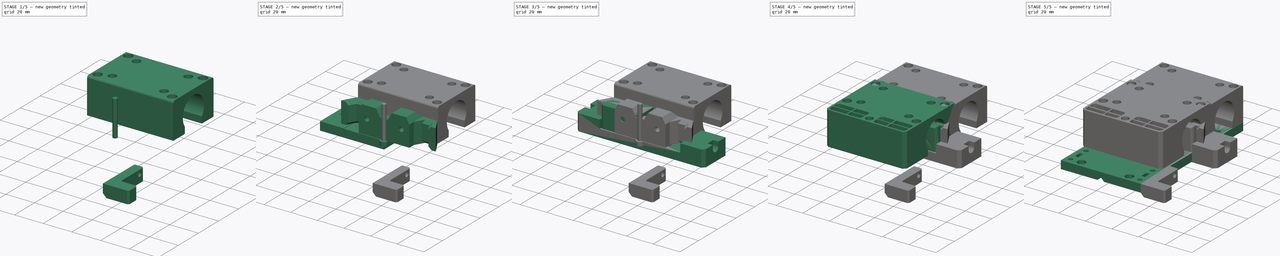
[diagram: build sequence overview — one tinted view per stage of 5, left to right]
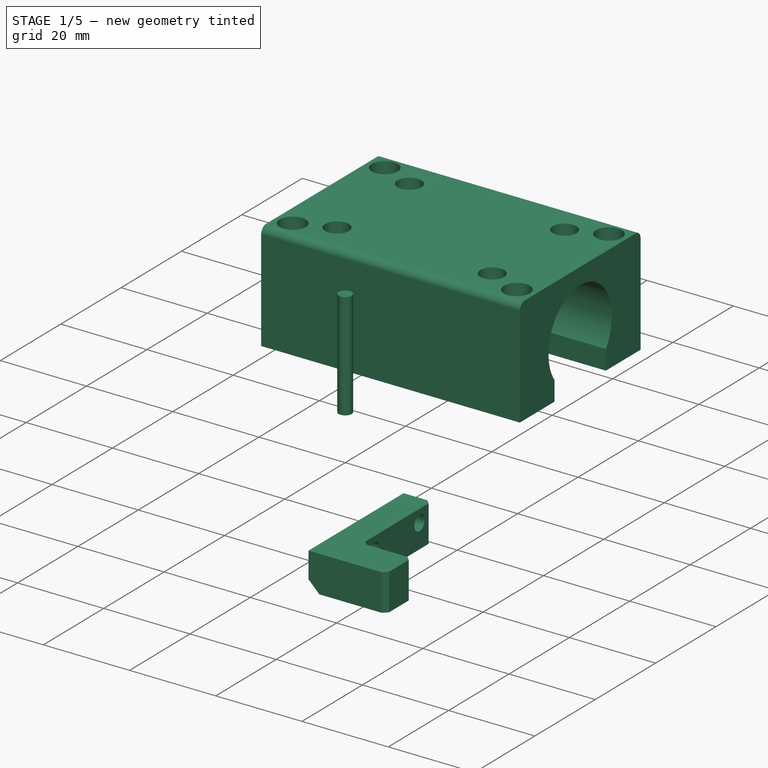
[diagram: stage 1 of 5 — iso view after this stage's code; geometry added in this stage tinted green]
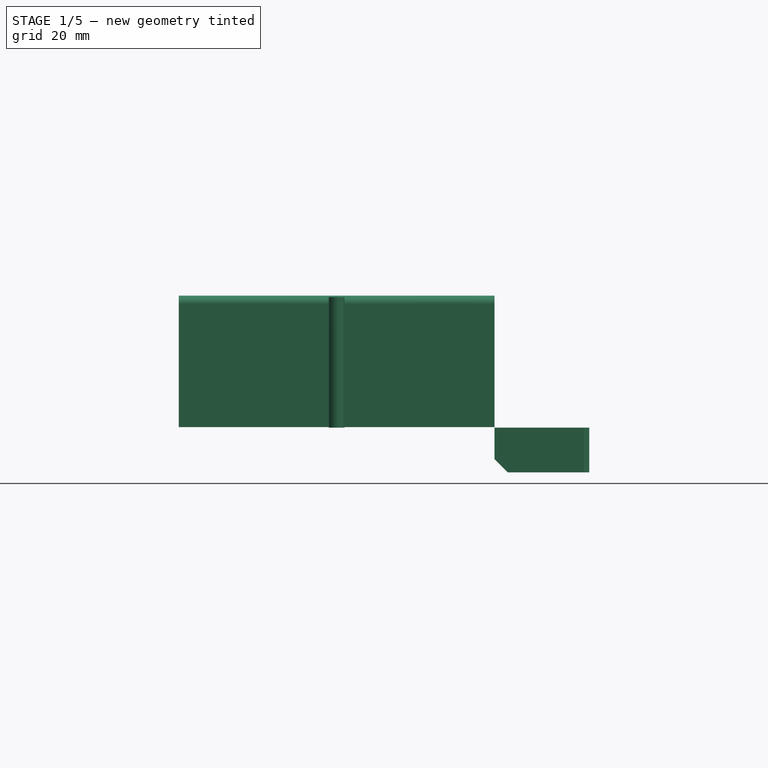
[diagram: stage 1 of 5 — front view after this stage's code; geometry added in this stage tinted green]
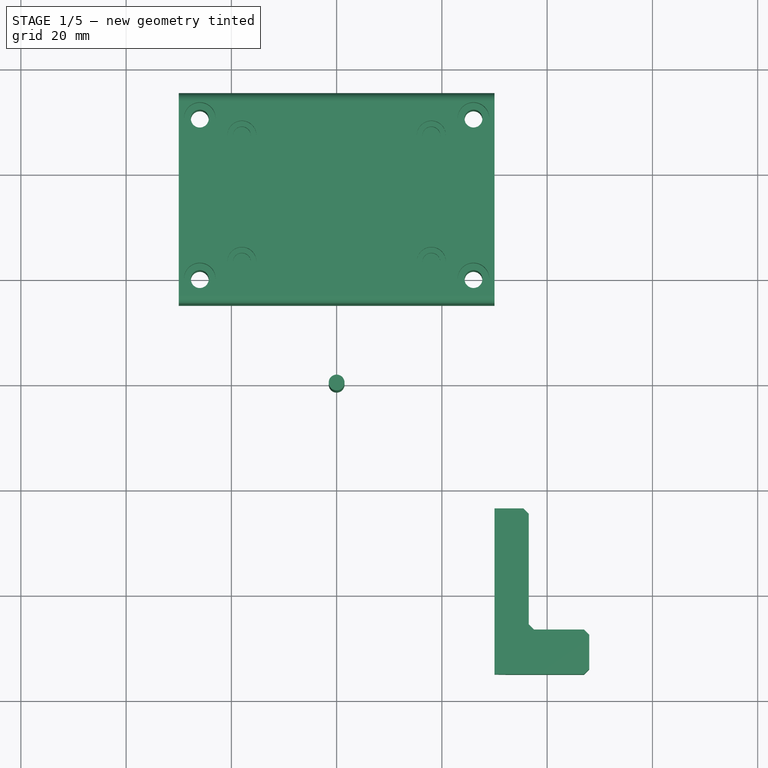
[diagram: stage 1 of 5 — top view after this stage's code; geometry added in this stage tinted green]
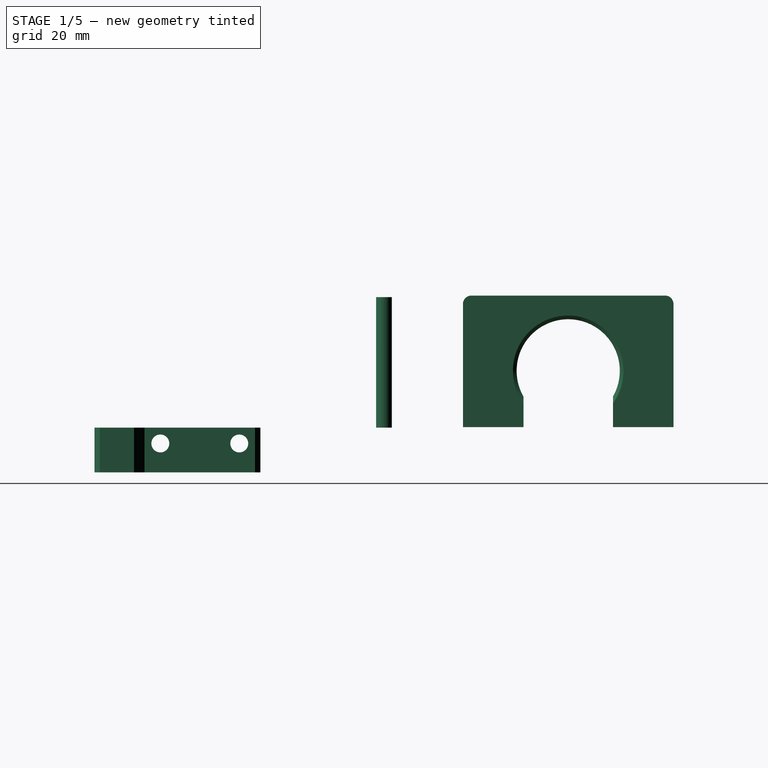
[diagram: stage 1 of 5 — right view after this stage's code; geometry added in this stage tinted green]
FCSTD DOCUMENT  (FreeCAD 1.0R39319 (Git))
Label: TAZ6-x-carriage-v0.5
License: All rights reserved
LicenseURL: https://en.wikipedia.org/wiki/All_rights_reserved
objects: Sketcher::SketchObject×51, PartDesign::Pocket×20, PartDesign::Hole×17, PartDesign::Pad×15, PartDesign::Chamfer×9, PartDesign::Body×9, PartDesign::SubShapeBinder×8, PartDesign::Fillet×5, PartDesign::Mirrored×5, App::Part×4, App::DocumentObjectGroup×4, PartDesign::FeatureBase×2, Spreadsheet::Sheet×1, PartDesign::LinearPattern×1, PartDesign::Revolution×1, PartDesign::Plane×1
note: 337 computed .brp shape members not serialized (recipe doc carries the construction recipe); baked Part::Feature solids carry a one-line shape summary decoded from their .brp

FEATURE [Sketcher::SketchObject] Sketch  label="Taz Base"
  ArcFitTolerance = 1e-06
  FullyConstrained = true
  MakeInternals = false
  sketch-geometry (9):
    g0: LineSegment StartX=-50 StartY=55 StartZ=0 EndX=-50 EndY=-55 EndZ=0
    g1: LineSegment StartX=-50 StartY=-55 StartZ=0 EndX=50 EndY=-55 EndZ=0
    g2: LineSegment StartX=50 StartY=-55 StartZ=0 EndX=50 EndY=55 EndZ=0
    g3: LineSegment StartX=50 StartY=55 StartZ=0 EndX=-50 EndY=55 EndZ=0
    g4: LineSegment StartX=-50 StartY=35 StartZ=0 EndX=50 EndY=35 EndZ=0
    g5: LineSegment StartX=-50 StartY=-35 StartZ=0 EndX=50 EndY=-35 EndZ=0
    g6: LineSegment [constr] StartX=-50 StartY=2 StartZ=0 EndX=50 EndY=2 EndZ=0
    g7: LineSegment [constr] StartX=-50 StartY=-11 StartZ=0 EndX=50 EndY=-11 EndZ=0
    g8: LineSegment [constr] StartX=36 StartY=55 StartZ=0 EndX=36 EndY=-55 EndZ=0
  constraints (31):
    c: Coincident(g0,g1)
    c: Coincident(g1,g2)
    c: Coincident(g2,g3)
    c: Coincident(g3,g0)
    c: Vertical(g0)
    c: Vertical(g2)
    c: Horizontal(g1)
    c: Horizontal(g3)
    c: DistanceX(g3,g3) = 100
    c: DistanceY(g2,g2) = 110
    c: PointOnObject(g4,g0)
    c: PointOnObject(g4,g2)
    c: Horizontal(g4)
    c: PointOnObject(g5,g0)
    c: PointOnObject(g5,g2)
    c: Horizontal(g5)
    c: DistanceY(g5,g4) = 70
    c: DistanceY(g4,g0) = 20
    c: Symmetric(g5,g4,g-1)
    c: PointOnObject(g6,g0)
    c: PointOnObject(g6,g2)
    c: Horizontal(g6)
    c: DistanceY(g6,g4) = 33
    c: PointOnObject(g7,g0)
    c: PointOnObject(g7,g2)
    c: Horizontal(g7)
    c: DistanceY(g5,g7) = 24
    c: PointOnObject(g8,g3)
    c: PointOnObject(g8,g1)
    c: Vertical(g8)
    c: DistanceX(g0,g8) = 86
FEATURE [Sketcher::SketchObject] Sketch001  label="NewTaz Base"
  ArcFitTolerance = 1e-06
  ExternalGeometry = -> [Sketch]
  FullyConstrained = true
  MakeInternals = false
  sketch-geometry (18):
    g0: LineSegment StartX=-30 StartY=55 StartZ=0 EndX=-30 EndY=-55 EndZ=0
    g1: LineSegment StartX=-30 StartY=-55 StartZ=0 EndX=30 EndY=-55 EndZ=0
    g2: LineSegment StartX=30 StartY=-55 StartZ=0 EndX=30 EndY=55 EndZ=0
    g3: LineSegment StartX=30 StartY=55 StartZ=0 EndX=-30 EndY=55 EndZ=0
    g4: Circle CenterX=10 CenterY=7.5 CenterZ=0 NormalX=0 NormalY=0 NormalZ=1 AngleXU=0 Radius=1.6
    g5: Circle CenterX=-10 CenterY=7.5 CenterZ=0 NormalX=0 NormalY=0 NormalZ=1 AngleXU=0 Radius=1.6
    g6: Circle CenterX=25 CenterY=9.5 CenterZ=0 NormalX=0 NormalY=0 NormalZ=1 AngleXU=0 Radius=1.6
    g7: Circle CenterX=-25 CenterY=9.5 CenterZ=0 NormalX=0 NormalY=0 NormalZ=1 AngleXU=0 Radius=1.6
    g8: Circle CenterX=-26 CenterY=-50.25 CenterZ=0 NormalX=0 NormalY=0 NormalZ=1 AngleXU=0 Radius=1.6
    g9: Circle CenterX=26 CenterY=-50.25 CenterZ=0 NormalX=0 NormalY=0 NormalZ=1 AngleXU=0 Radius=1.6
    g10: Circle CenterX=-26 CenterY=-19.75 CenterZ=0 NormalX=0 NormalY=0 NormalZ=1 AngleXU=0 Radius=1.6
    g11: Circle CenterX=26 CenterY=-19.75 CenterZ=0 NormalX=0 NormalY=0 NormalZ=1 AngleXU=0 Radius=1.6
    g12: LineSegment [constr] StartX=-26 StartY=-50.25 StartZ=0 EndX=-26 EndY=50.25 EndZ=0
    g13: Circle CenterX=-26 CenterY=50.25 CenterZ=0 NormalX=0 NormalY=0 NormalZ=1 AngleXU=0 Radius=1.6
    g14: Circle CenterX=-26 CenterY=19.75 CenterZ=0 NormalX=0 NormalY=0 NormalZ=1 AngleXU=0 Radius=1.6
    g15: LineSegment [constr] StartX=30 StartY=55 StartZ=0 EndX=50 EndY=55 EndZ=0
    g16: Circle CenterX=26 CenterY=50.25 CenterZ=0 NormalX=0 NormalY=0 NormalZ=1 AngleXU=0 Radius=1.6
    g17: Circle CenterX=26 CenterY=19.75 CenterZ=0 NormalX=0 NormalY=0 NormalZ=1 AngleXU=0 Radius=1.6
  constraints (44):
    c: PointOnObject(g0,g-5)
    c: Vertical(g0)
    c: Coincident(g0,g1)
    c: PointOnObject(g1,g-5)
    c: Coincident(g1,g2)
    c: Vertical(g2)
    c: Symmetric(g0,g2,g-2)
    c: DistanceY(g-1,g6) = 9.5
    c: Symmetric(g6,g7,g-2)
    c: Symmetric(g4,g5,g-2)
    c: DistanceX(g7,g6) = 50
    c: DistanceX(g5,g4) = 20
    c: Diameter(g7) = 3.2
    c: Diameter(g5) = 3.2
    c: Diameter(g6) = 3.2
    c: Diameter(g4) = 3.2
    c: Diameter(g9) = 3.2
    c: Diameter(g10) = 3.2
    c: Symmetric(g11,g10,g-2)
    c: DistanceY(g0,g8) = 4.75
    c: Symmetric(g8,g9,g-2)
    c: DistanceY(g-1,g4) = 7.5
    c: DistanceX(g8,g9) = 52
    c: DistanceX(g1,g1) = 60
    c: DistanceY(g9,g11) = 30.5
    c: Coincident(g12,g8)
    c: Vertical(g12)
    c: Coincident(g13,g12)
    c: Diameter(g13) = 3.2
    c: Diameter(g14) = 3.2
    c: DistanceY(g14,g12) = 30.5
    c: Symmetric(g14,g12,g-7)
    c: Coincident(g0,g3)
    c: Coincident(g2,g3)
    c: Coincident(g15,g2)
    c: Horizontal(g15)
    c: Coincident(g15,g-6)
    c: Equal(g13,g16)
    c: Equal(g11,g10)
    c: Symmetric(g16,g12,g-2)
    c: PointOnObject(g10,g12)
    c: Equal(g8,g9)
    c: Symmetric(g14,g17,g-2)
    c: Equal(g14,g17)
FEATURE [Sketcher::SketchObject] Sketch002  label="NewTaz Bearing"
  ArcFitTolerance = 1e-06
  ExternalGeometry = -> [Sketch]
  FullyConstrained = true
  MakeInternals = false
  Placement = pos=(0,0,0) rot=(0.57735,0.57735,0.57735;2.0944rad)
  sketch-geometry (6):
    g0: LineSegment StartX=15 StartY=24.8 StartZ=0 EndX=15 EndY=-0.2 EndZ=0
    g1: LineSegment StartX=55 StartY=-0.2 StartZ=0 EndX=55 EndY=24.8 EndZ=0
    g2: LineSegment StartX=55 StartY=24.8 StartZ=0 EndX=15 EndY=24.8 EndZ=0
    g3: LineSegment [constr] StartX=35 StartY=24.8 StartZ=0 EndX=35 EndY=-3.6e-15 EndZ=0
    g4: LineSegment StartX=15 StartY=-0.2 StartZ=0 EndX=55 EndY=-0.2 EndZ=0
    g5: Circle CenterX=35 CenterY=10.5 CenterZ=0 NormalX=0 NormalY=0 NormalZ=1 AngleXU=0 Radius=10.5
  constraints (17):
    c: Vertical(g0)
    c: Vertical(g1)
    c: Horizontal(g2)
    c: DistanceX(g0,g1) = 40
    c: DistanceY(g4,g2) = 25
    c: Symmetric(g2,g2,g3)
    c: Coincident(g3,g-3)
    c: Coincident(g0,g2)
    c: Coincident(g1,g2)
    c: Horizontal(g4)
    c: DistanceY(g4,g-1) = 0.2
    c: Vertical(g3)
    c: Coincident(g0,g4)
    c: Coincident(g1,g4)
    c: PointOnObject(g5,g3)
    c: Diameter(g5) = 21
    c: PointOnObject(g3,g5)
FEATURE [PartDesign::SubShapeBinder] Binder  label="BearingProfileBinder"
  BindCopyOnChange = 0
  BindMode = 0
  ClaimChildren = false
  Context = -> Body [Binder.]
  Fuse = false
  MakeFace = true
  OffsetFill = false
  OffsetIntersection = false
  OffsetJoinType = 0
  OffsetOpenResult = false
  PartialLoad = false
  Placement = pos=(-30,0,0.3) rot=(0,0,1;0rad)
  Refine = true
  Relative = true
  Support = -> [Sketch002]
  _Version = 2
FEATURE [PartDesign::Pad] Pad  label="BearingProfile"
  Direction = (1,4e-16,0)
  Length = 30
  Length2 = 10
  Placement = pos=(-30,0,0.3) rot=(0,0,1;0rad)
  Profile = -> Binder [Face1]
  Refine = true
  Suppressed = false
  Type = 0
FEATURE [PartDesign::Body] Body007  label="TazMountTop"
  AllowCompound = false
  Group = -> [Sketch071,Pad027,Sketch072,Hole021,Sketch073,Pocket033,Sketch074,Pocket034,Sketch075,Pocket035,Pocket036,Chamfer010,Mirrored004,Sketch076,Pocket037,Sketch077,Pocket038]
  Origin = -> Origin008
  Placement = pos=(0,55,-6) rot=(0,0,1;0rad)
  Tip = -> Pocket038
FEATURE [Sketcher::SketchObject] Sketch078  label="RetainerSketch"
  ArcFitTolerance = 1e-06
  AttachmentOffset = pos=(0,0,10.7) rot=(0,0,1;0rad)
  AttachmentSupport = -> [Pad]
  FullyConstrained = true
  MakeInternals = false
  MapMode = 5
  Placement = pos=(-30,0,10.8) rot=(0,0,1;3.14159rad)
  sketch-geometry (5):
    g0: LineSegment StartX=-27 StartY=10.7 StartZ=0 EndX=-26.35 EndY=9.8 EndZ=0
    g1: LineSegment StartX=-26.35 StartY=9.8 StartZ=0 EndX=-26.15 EndY=9.8 EndZ=0
    g2: LineSegment StartX=-26.15 StartY=9.8 StartZ=0 EndX=-25.5 EndY=10.7 EndZ=0
    g3: LineSegment StartX=-25.5 StartY=10.7 StartZ=0 EndX=-27 EndY=10.7 EndZ=0
    g4: LineSegment [constr] StartX=-26.25 StartY=10.7 StartZ=0 EndX=-26.25 EndY=9.8 EndZ=0
  constraints (14):
    c: Coincident(g0,g1)
    c: Coincident(g1,g2)
    c: Coincident(g3,g2)
    c: Coincident(g3,g0)
    c: Horizontal(g3)
    c: Symmetric(g3,g3,g4)
    c: Symmetric(g1,g1,g4)
    c: DistanceX(g3,g3) = 1.5
    c: DistanceY(g0,g0) = 0.9
    c: DistanceX(g0,g1) = 0.2
    c: Horizontal(g1)
    c: DistanceY(g-1,g4) = 10.7
    c: Perpendicular(g3,g4)
    c: DistanceX(g4,g-1) = 26.25
FEATURE [PartDesign::Revolution] Revolution
  Angle = 360
  Angle2 = 60
  Axis = (-1,0,0)
  Base = (-30,0,10.8)
  BaseFeature = -> Pad
  Midplane = true
  Placement = pos=(-30,0,0.3) rot=(0,0,1;0rad)
  Profile = -> Sketch078
  ReferenceAxis = -> Sketch078 [H_Axis]
  Refine = true
  Suppressed = false
  Type = 0
FEATURE [Sketcher::SketchObject] Sketch079
  ArcFitTolerance = 1e-06
  AttachmentSupport = -> [Revolution]
  FullyConstrained = true
  MakeInternals = false
  MapMode = 5
  Placement = pos=(-30,0,0.1) rot=(1,0,0;3.14159rad)
  sketch-geometry (4):
    g0: LineSegment StartX=0 StartY=8.5 StartZ=0 EndX=0 EndY=-8.5 EndZ=0
    g1: LineSegment StartX=0 StartY=-8.5 StartZ=0 EndX=30 EndY=-8.5 EndZ=0
    g2: LineSegment StartX=30 StartY=-8.5 StartZ=0 EndX=30 EndY=8.5 EndZ=0
    g3: LineSegment StartX=30 StartY=8.5 StartZ=0 EndX=0 EndY=8.5 EndZ=0
  constraints (11):
    c: Coincident(g0,g1)
    c: Coincident(g1,g2)
    c: Coincident(g2,g3)
    c: Coincident(g3,g0)
    c: Vertical(g2)
    c: Horizontal(g1)
    c: Horizontal(g3)
    c: PointOnObject(g0,g-2)
    c: DistanceY(g2,g2) = 17
    c: Symmetric(g0,g0,g-1)
    c: DistanceX(g0,g2) = 30
FEATURE [PartDesign::Pocket] Pocket
  BaseFeature = -> Revolution
  Direction = (0,0,1)
  Length = 8
  Length2 = 5
  Placement = pos=(-30,0,0.3) rot=(0,0,1;0rad)
  Profile = -> Sketch079
  ReferenceAxis = -> Sketch079 [N_Axis]
  Refine = true
  Suppressed = false
  Type = 0
FEATURE [Sketcher::SketchObject] Sketch005  label="BackHoles"
  ArcFitTolerance = 1e-06
  AttachmentSupport = -> [Pocket]
  ExternalGeometry = -> [Binder001,Binder]
  FullyConstrained = true
  MakeInternals = false
  MapMode = 5
  Placement = pos=(-30,-5.5e-15,25.1) rot=(0,0,1;0rad)
  sketch-geometry (11):
    g0: LineSegment [constr] StartX=30 StartY=20 StartZ=0 EndX=30 EndY=-20 EndZ=0
    g1: Circle CenterX=22 CenterY=12 CenterZ=0 NormalX=0 NormalY=0 NormalZ=1 AngleXU=0 Radius=1.6
    g2: Circle CenterX=22 CenterY=-12 CenterZ=0 NormalX=0 NormalY=0 NormalZ=1 AngleXU=0 Radius=1.6
    g3: Circle CenterX=4 CenterY=15.25 CenterZ=0 NormalX=0 NormalY=0 NormalZ=1 AngleXU=0 Radius=1.6
    g4: Circle CenterX=4 CenterY=-15.25 CenterZ=0 NormalX=0 NormalY=0 NormalZ=1 AngleXU=0 Radius=1.6
    g5: Circle CenterX=12 CenterY=12 CenterZ=0 NormalX=0 NormalY=0 NormalZ=1 AngleXU=0 Radius=1.6
    g6: Circle CenterX=12 CenterY=-12 CenterZ=0 NormalX=0 NormalY=0 NormalZ=1 AngleXU=0 Radius=1.6
    g7: LineSegment [constr] StartX=22 StartY=12 StartZ=0 EndX=12 EndY=12 EndZ=0
    g8: LineSegment [constr] StartX=22 StartY=-12 StartZ=0 EndX=12 EndY=-12 EndZ=0
    g9: LineSegment [constr] StartX=-5.3e-15 StartY=-20 StartZ=0 EndX=30 EndY=-20 EndZ=0
    g10: LineSegment [constr] StartX=0 StartY=20 StartZ=0 EndX=30 EndY=20 EndZ=0
  constraints (28):
    c: Diameter(g1) = 3.2
    c: Symmetric(g1,g2,g-1)
    c: DistanceY(g2,g1) = 24
    c: DistanceX(g2,g0) = 8
    c: Equal(g2,g1)
    c: Coincident(g3,g-3)
    c: Equal(g3,g-3)
    c: Coincident(g4,g-4)
    c: Equal(g4,g-4)
    c: Equal(g6,g2)
    c: Equal(g5,g1)
    c: DistanceX(g5,g0) = 18
    c: Coincident(g7,g1)
    c: Coincident(g7,g5)
    c: Horizontal(g7)
    c: Coincident(g8,g2)
    c: Coincident(g8,g6)
    c: Horizontal(g8)
    c: DistanceX(g5,g0) = 18
    c: Equal(g7,g8)
    c: DistanceX(g-5,g0) = 30
    c: Coincident(g9,g-6)
    c: Coincident(g9,g0)
    c: Horizontal(g9)
    c: Vertical(g0)
    c: Coincident(g10,g-5)
    c: Coincident(g10,g0)
    c: Horizontal(g10)
FEATURE [PartDesign::Hole] Hole  label="Counter Sink Screws"
  BaseFeature = -> Pocket
  CustomThreadClearance = 0
  Depth = 112.921
  DepthType = 1
  Diameter = 3.4
  DrillForDepth = false
  DrillPoint = 1
  DrillPointAngle = 118
  HoleCutCountersinkAngle = 90
  HoleCutCustomValues = false
  HoleCutDepth = 5.9
  HoleCutDiameter = 6
  HoleCutType = 1
  ModelThread = false
  Placement = pos=(-30,0,0.3) rot=(0,0,1;0rad)
  Profile = -> Sketch005 [Edge3,Edge4]
  Refine = true
  Suppressed = false
  Tapered = false
  TaperedAngle = 90
  ThreadClass = 0
  ThreadDepth = 112.921
  ThreadDepthType = 0
  ThreadDirection = 0
  ThreadFit = 0
  ThreadSize = 9
  ThreadType = 1
  Threaded = false
  UseCustomThreadClearance = false
  expr: HoleCutDiameter = <<Dimensions>>.M3CsinkDia
FEATURE [PartDesign::Hole] Hole002  label="Back Mounting Holes"
  BaseFeature = -> Hole
  CustomThreadClearance = 0
  Depth = 8
  DepthType = 0
  Diameter = 3.4
  DrillForDepth = false
  DrillPoint = 0
  DrillPointAngle = 118
  HoleCutCountersinkAngle = 90
  HoleCutCustomValues = false
  HoleCutDepth = 4
  HoleCutDiameter = 5.5
  HoleCutType = 1
  ModelThread = false
  Placement = pos=(-30,0,0.3) rot=(0,0,1;0rad)
  Profile = -> Sketch005 [Edge5,Edge6]
  Refine = true
  Suppressed = false
  Tapered = false
  TaperedAngle = 85
  ThreadClass = 0
  ThreadDepth = 8
  ThreadDepthType = 0
  ThreadDirection = 0
  ThreadFit = 0
  ThreadSize = 0
  ThreadType = 0
  Threaded = false
  UseCustomThreadClearance = false
  expr: Diameter = <<Dimensions>>.M3Hole
  expr: HoleCutDepth = <<Dimensions>>.M3HeatSetDepth
  expr: HoleCutDiameter = <<Dimensions>>.M3HeatSet
FEATURE [Sketcher::SketchObject] Sketch006  label="TopHoles"
  ArcFitTolerance = 1e-06
  AttachmentOffset = pos=(0,-1.5,0) rot=(0,0,1;0rad)
  AttachmentSupport = -> [Hole002]
  ExternalGeometry = -> [Sketch005]
  FullyConstrained = true
  MakeInternals = false
  MapMode = 5
  Placement = pos=(-30,20,-1.2) rot=(0,0.707107,0.707107;3.14159rad)
  sketch-geometry (8):
    g0: Circle CenterX=-22 CenterY=6 CenterZ=0 NormalX=0 NormalY=0 NormalZ=1 AngleXU=0 Radius=1.6
    g1: Circle CenterX=-12 CenterY=6 CenterZ=0 NormalX=0 NormalY=0 NormalZ=1 AngleXU=0 Radius=1.6
    g2: LineSegment [constr] StartX=-22 StartY=26.3 StartZ=0 EndX=-22 EndY=6 EndZ=0
    g3: LineSegment [constr] StartX=-12 StartY=26.3 StartZ=0 EndX=-12 EndY=6 EndZ=0
    g4: LineSegment [constr] StartX=-22 StartY=6 StartZ=0 EndX=-12 EndY=6 EndZ=0
    g5: LineSegment [constr] StartX=-22 StartY=26.3 StartZ=0 EndX=-12 EndY=26.3 EndZ=0
    g6: LineSegment [constr] StartX=-17 StartY=26.3 StartZ=0 EndX=-17 EndY=6 EndZ=0
    g7: Circle CenterX=-17 CenterY=6 CenterZ=0 NormalX=0 NormalY=0 NormalZ=1 AngleXU=0 Radius=1.6
  constraints (18):
    c: Symmetric(g-3,g-3,g2)
    c: Coincident(g2,g0)
    c: Symmetric(g-4,g-4,g3)
    c: Coincident(g3,g1)
    c: Vertical(g2)
    c: Vertical(g3)
    c: Diameter(g0) = 3.2
    c: Coincident(g4,g0)
    c: Coincident(g4,g1)
    c: Horizontal(g4)
    c: Equal(g0,g1)
    c: Coincident(g5,g2)
    c: Coincident(g5,g3)
    c: Symmetric(g5,g5,g6)
    c: Symmetric(g4,g4,g6)
    c: Coincident(g7,g6)
    c: Equal(g0,g7)
    c: DistanceY(g-1,g1) = 6
FEATURE [PartDesign::Hole] Hole003  label="Top Hole"
  BaseFeature = -> Hole002
  CustomThreadClearance = 0
  Depth = 25
  DepthType = 0
  Diameter = 3.2
  DrillForDepth = false
  DrillPoint = 1
  DrillPointAngle = 118
  HoleCutCountersinkAngle = 90
  HoleCutCustomValues = false
  HoleCutDepth = 4
  HoleCutDiameter = 5.5
  HoleCutType = 1
  ModelThread = false
  Placement = pos=(-30,0,0.3) rot=(0,0,1;0rad)
  Profile = -> Sketch006 [Edge3]
  Refine = true
  Suppressed = false
  Tapered = false
  TaperedAngle = 90
  ThreadClass = 0
  ThreadDepth = 25
  ThreadDepthType = 0
  ThreadDirection = 0
  ThreadFit = 1
  ThreadSize = 9
  ThreadType = 1
  Threaded = false
  UseCustomThreadClearance = false
  expr: HoleCutDepth = <<Dimensions>>.M3HeatSetDepth
  expr: HoleCutDiameter = <<Dimensions>>.M3HeatSet
FEATURE [PartDesign::Mirrored] Mirrored
  BaseFeature = -> Hole003
  MirrorPlane = -> YZ_Plane
  Placement = pos=(-30,0,0.3) rot=(0,0,1;0rad)
  Refine = true
  Suppressed = false
  TransformMode = 1
FEATURE [Sketcher::SketchObject] Sketch046  label="Duct Bottom Template"
  ArcFitTolerance = 1e-06
  AttachmentSupport = -> [Chamfer004]
  ExternalGeometry = -> [Chamfer004]
  FullyConstrained = true
  MakeInternals = false
  MapMode = 5
  Placement = pos=(-30,0,26.3) rot=(0,0,1;0rad)
  sketch-geometry (16):
    g0: Circle CenterX=3.6 CenterY=-23.5 CenterZ=0 NormalX=0 NormalY=0 NormalZ=1 AngleXU=0 Radius=2
    g1: Circle CenterX=3.6 CenterY=-29.4 CenterZ=0 NormalX=0 NormalY=0 NormalZ=1 AngleXU=0 Radius=2
    g2: Circle CenterX=23.5 CenterY=-23.5 CenterZ=0 NormalX=0 NormalY=0 NormalZ=1 AngleXU=0 Radius=2
    g3: Circle CenterX=23.5 CenterY=-29.4 CenterZ=0 NormalX=0 NormalY=0 NormalZ=1 AngleXU=0 Radius=2
    g4: Circle CenterX=36.5 CenterY=-23.5 CenterZ=0 NormalX=0 NormalY=0 NormalZ=1 AngleXU=0 Radius=2
    g5: Circle CenterX=36.5 CenterY=-29.4 CenterZ=0 NormalX=0 NormalY=0 NormalZ=1 AngleXU=0 Radius=2
    g6: Circle CenterX=56.4 CenterY=-23.5 CenterZ=0 NormalX=0 NormalY=0 NormalZ=1 AngleXU=0 Radius=2
    g7: Circle CenterX=56.4 CenterY=-29.4 CenterZ=0 NormalX=0 NormalY=0 NormalZ=1 AngleXU=0 Radius=2
    g8: LineSegment StartX=60 StartY=-19.9 StartZ=0 EndX=0 EndY=-19.9 EndZ=0
    g9: GeomPoint X=30 Y=-33 Z=0
    g10: LineSegment StartX=0 StartY=-19.9 StartZ=0 EndX=0 EndY=-33 EndZ=0
    g11: LineSegment StartX=0 StartY=-33 StartZ=0 EndX=60 EndY=-33 EndZ=0
    g12: LineSegment StartX=60 StartY=-33 StartZ=0 EndX=60 EndY=-19.9 EndZ=0
    g13: GeomPoint X=4e-16 Y=-26.45 Z=0
    g14: LineSegment [constr] StartX=3.6 StartY=-23.5 StartZ=0 EndX=4e-16 EndY=-26.45 EndZ=0
    g15: LineSegment [constr] StartX=3.6 StartY=-29.4 StartZ=0 EndX=4e-16 EndY=-26.45 EndZ=0
  constraints (33):
    c: Coincident(g0,g-4)
    c: Equal(g0,g-4)
    c: Coincident(g1,g-7)
    c: Equal(g1,g-7)
    c: Coincident(g2,g-14)
    c: Equal(g2,g-14)
    c: Coincident(g3,g-10)
    c: Equal(g3,g-10)
    c: Coincident(g4,g-16)
    c: Equal(g4,g-16)
    c: Coincident(g5,g-25)
    c: Equal(g5,g-25)
    c: Coincident(g6,g-19)
    c: Equal(g6,g-19)
    c: Coincident(g7,g-22)
    c: Equal(g7,g-22)
    c: PointOnObject(g8,g-27)
    c: PointOnObject(g8,g-28)
    c: Horizontal(g8)
    c: Symmetric(g-29,g-29,g9)
    c: Coincident(g8,g10)
    c: PointOnObject(g10,g-2)
    c: Coincident(g10,g11)
    c: Horizontal(g11)
    c: Coincident(g11,g12)
    c: Coincident(g12,g8)
    c: Symmetric(g10,g11,g9)
    c: Symmetric(g10,g10,g13)
    c: Coincident(g14,g0)
    c: Coincident(g14,g13)
    c: Coincident(g15,g1)
    c: Coincident(g15,g13)
    c: Equal(g14,g15)
FEATURE [PartDesign::Body] Body002  label="BearingDucted"
  AllowCompound = false
  Group = -> [Clone,Sketch023,Pad004,Chamfer002,Fillet,Sketch024,Pocket009,Mirrored001,Sketch025,Hole010,Hole011,Hole012,Chamfer004,Sketch046]
  Origin = -> Origin003
  Placement = pos=(0,-35,0) rot=(0,0,1;0rad)
  Tip = -> Clone
FEATURE [PartDesign::Fillet] Fillet006
  Base = -> Mirrored [Edge104,Edge103]
  BaseFeature = -> Mirrored
  Placement = pos=(-30,0,0.3) rot=(0,0,1;0rad)
  Radius = 1.6
  Refine = true
  SupportTransform = false
  Suppressed = false
  UseAllEdges = false
FEATURE [PartDesign::Body] Body001  label="MountingPlate"
  AllowCompound = false
  Group = -> [Binder002,Binder012,Sketch008,Pad003,Sketch009,Pocket001,Sketch010,Pocket002,Sketch011,Hole004,Sketch012,Sketch013,Pocket003,Sketch015,Hole005,Sketch016,Pocket004,Sketch017,Pocket005,Hole006,Sketch018,Pocket006,Sketch019,Hole007,Sketch020,Hole008,Sketch021,Hole009,Sketch022,Pocket007]
  Origin = -> Origin001
  Tip = -> Pocket007
FEATURE [Sketcher::SketchObject] Sketch081
  ArcFitTolerance = 1e-06
  AttachmentSupport = -> [XY_Plane010]
  FullyConstrained = true
  MakeInternals = false
  MapMode = 5
  sketch-geometry (2):
    g0: Circle CenterX=0 CenterY=0 CenterZ=0 NormalX=0 NormalY=0 NormalZ=1 AngleXU=0 Radius=1.5
    g1: Circle CenterX=0 CenterY=0 CenterZ=0 NormalX=0 NormalY=0 NormalZ=1 AngleXU=0 Radius=2.75
  constraints (4):
    c: Diameter(g0) = 3
    c: Coincident(g0,g-1)
    c: Diameter(g1) = 5.5
    c: Coincident(g1,g0)
FEATURE [PartDesign::Pad] Pad028
  Direction = (0,0,1)
  Length = 24.8
  Length2 = 10
  Profile = -> Sketch081 [Edge1]
  ReferenceAxis = -> Sketch081 [N_Axis]
  Refine = true
  Suppressed = false
  Type = 0
FEATURE [PartDesign::Body] Body008  label="Body"
  AllowCompound = false
  Group = -> [Sketch081,Pad028,Pad029]
  Origin = -> Origin010
  Tip = -> Pad029
FEATURE [App::Part] Part  label="M3x10"
  Group = -> [Body008]
  Origin = -> Origin009
  Placement = pos=(26,19.75,19.5) rot=(1,0,0;3.14159rad)
FEATURE [Sketcher::SketchObject] Sketch082  label="SideMountHoles"
  ArcFitTolerance = 1e-06
  FullyConstrained = true
  MakeInternals = false
  Placement = pos=(0,0,0) rot=(0.57735,0.57735,0.57735;2.0944rad)
  sketch-geometry (3):
    g0: Circle CenterX=-42.5 CenterY=-3 CenterZ=0 NormalX=0 NormalY=0 NormalZ=1 AngleXU=0 Radius=1.7
    g1: Circle CenterX=-27.5 CenterY=-3 CenterZ=0 NormalX=0 NormalY=0 NormalZ=1 AngleXU=0 Radius=1.7
    g2: LineSegment [constr] StartX=-42.5 StartY=-3 StartZ=0 EndX=-27.5 EndY=-3 EndZ=0
  constraints (8):
    c: Coincident(g2,g0)
    c: Coincident(g2,g1)
    c: Horizontal(g2)
    c: DistanceX(g2,g2) = 15
    c: Diameter(g0) = 3.4
    c: Equal(g0,g1)
    c: DistanceX(g1,g-1) = 27.5
    c: DistanceY(g1,g-1) = 3
FEATURE [App::DocumentObjectGroup] Group  label="Base Sketches"
  Group = -> [Sketch,Sketch001,Sketch002,Sketch080,Sketch082]
FEATURE [PartDesign::SubShapeBinder] Binder013  label="SideHolesBinder"
  BindCopyOnChange = 0
  BindMode = 0
  ClaimChildren = false
  Context = -> Part001 [Body009.Binder013.]
  Fuse = false
  MakeFace = true
  OffsetFill = false
  OffsetIntersection = false
  OffsetJoinType = 0
  OffsetOpenResult = false
  PartialLoad = false
  Refine = true
  Relative = true
  Support = -> [Sketch082]
  _Version = 2
FEATURE [PartDesign::SubShapeBinder] Binder014  label="BaseBinder"
  BindCopyOnChange = 0
  BindMode = 0
  ClaimChildren = false
  Context = -> Part001 [Body009.Binder014.]
  Fuse = false
  MakeFace = true
  OffsetFill = false
  OffsetIntersection = false
  OffsetJoinType = 0
  OffsetOpenResult = false
  PartialLoad = false
  Refine = true
  Relative = true
  Support = -> [Sketch001]
  _Version = 2
FEATURE [PartDesign::Plane] DatumPlane
  AttachmentSupport = -> [Binder014]
  Length = 124.832
  MapMode = 7
  Placement = pos=(30,55,0) rot=(0.57735,0.57735,0.57735;2.0944rad)
  ResizeMode = 0
  Width = 64.8324
FEATURE [Sketcher::SketchObject] Sketch083
  ArcFitTolerance = 1e-06
  AttachmentSupport = -> [DatumPlane]
  ExternalGeometry = -> [Binder013,Binder014]
  FullyConstrained = true
  MakeInternals = false
  MapMode = 5
  Placement = pos=(30,55,0) rot=(0.57735,0.57735,0.57735;2.0944rad)
  sketch-geometry (12):
    g0: Circle CenterX=-97.5 CenterY=-3 CenterZ=0 NormalX=0 NormalY=0 NormalZ=1 AngleXU=0 Radius=1.7
    g1: Circle CenterX=-82.5 CenterY=-3 CenterZ=0 NormalX=0 NormalY=0 NormalZ=1 AngleXU=0 Radius=1.7
    g2: LineSegment [constr] StartX=-101.5 StartY=0 StartZ=0 EndX=-101.5 EndY=-6 EndZ=0
    g3: LineSegment StartX=-101.5 StartY=-6 StartZ=0 EndX=-78.5 EndY=-6 EndZ=0
    g4: LineSegment StartX=-78.5 StartY=-6 StartZ=0 EndX=-78.5 EndY=0 EndZ=0
    g5: LineSegment StartX=-78.5 StartY=0 StartZ=0 EndX=-101.5 EndY=0 EndZ=0
    g6: LineSegment [constr] StartX=-97.5 StartY=0 StartZ=0 EndX=-97.5 EndY=-6 EndZ=0
    g7: LineSegment StartX=-101.5 StartY=0 StartZ=0 EndX=-110 EndY=0 EndZ=0
    g8: LineSegment StartX=-110 StartY=0 StartZ=0 EndX=-110 EndY=-6 EndZ=0
    g9: LineSegment StartX=-110 StartY=-6 StartZ=0 EndX=-101.5 EndY=-6 EndZ=0
    g10: LineSegment [constr] StartX=-82.5 StartY=-3 StartZ=0 EndX=-78.5 EndY=-3 EndZ=0
    g11: LineSegment [constr] StartX=-97.5 StartY=-3 StartZ=0 EndX=-101.5 EndY=-3 EndZ=0
  constraints (30):
    c: Coincident(g0,g-3)
    c: Equal(g0,g-3)
    c: Coincident(g1,g-4)
    c: Equal(g1,g-4)
    c: Coincident(g2,g3)
    c: Coincident(g3,g4)
    c: Coincident(g4,g5)
    c: Coincident(g5,g2)
    c: Vertical(g2)
    c: Vertical(g4)
    c: Horizontal(g3)
    c: Horizontal(g5)
    c: PointOnObject(g2,g-1)
    c: PointOnObject(g6,g5)
    c: PointOnObject(g6,g3)
    c: Vertical(g6)
    c: Symmetric(g6,g6,g0)
    c: Coincident(g2,g7)
    c: Coincident(g7,g-5)
    c: Coincident(g7,g8)
    c: Vertical(g8)
    c: Coincident(g8,g9)
    c: Coincident(g9,g2)
    c: Horizontal(g9)
    c: Coincident(g10,g1)
    c: Symmetric(g4,g4,g10)
    c: Coincident(g11,g0)
    c: Symmetric(g2,g2,g11)
    c: DistanceX(g10,g10) = 4
    c: Equal(g10,g11)
FEATURE [PartDesign::Pad] Pad030
  Direction = (1,0,0)
  Length = 6.5
  Length2 = 10
  Placement = pos=(30,55,0) rot=(0.57735,0.57735,0.57735;2.0944rad)
  Profile = -> Sketch083
  ReferenceAxis = -> Sketch083 [N_Axis]
  Refine = true
  Suppressed = false
  Type = 0
FEATURE [Sketcher::SketchObject] Sketch084
  ArcFitTolerance = 1e-06
  AttachmentSupport = -> [Pad030]
  ExternalGeometry = -> [Sketch083]
  FullyConstrained = true
  MakeInternals = false
  MapMode = 5
  Placement = pos=(36.5,55,0) rot=(0.57735,0.57735,0.57735;2.0944rad)
  sketch-geometry (4):
    g0: LineSegment StartX=-110 StartY=-6 StartZ=0 EndX=-101.5 EndY=-6 EndZ=0
    g1: LineSegment StartX=-101.5 StartY=-6 StartZ=0 EndX=-101.5 EndY=0 EndZ=0
    g2: LineSegment StartX=-101.5 StartY=0 StartZ=0 EndX=-110 EndY=0 EndZ=0
    g3: LineSegment StartX=-110 StartY=0 StartZ=0 EndX=-110 EndY=-6 EndZ=0
  constraints (10):
    c: Coincident(g0,g1)
    c: Coincident(g1,g2)
    c: Coincident(g2,g3)
    c: Coincident(g3,g0)
    c: Horizontal(g2)
    c: Vertical(g1)
    c: Vertical(g3)
    c: Coincident(g0,g-3)
    c: PointOnObject(g1,g-1)
    c: Coincident(g0,g-3)
FEATURE [PartDesign::Pad] Pad031
  BaseFeature = -> Pad030
  Direction = (1,0,0)
  Length = 11.5
  Length2 = 10
  Placement = pos=(30,55,0) rot=(0.57735,0.57735,0.57735;2.0944rad)
  Profile = -> Sketch084
  ReferenceAxis = -> Sketch084 [N_Axis]
  Refine = true
  Suppressed = false
  Type = 0
FEATURE [PartDesign::Pad] Pad032
  BaseFeature = -> Pad031
  Direction = (0,0,-1)
  Length = 2.5
  Length2 = 10
  Placement = pos=(30,55,0) rot=(0.57735,0.57735,0.57735;2.0944rad)
  Profile = -> Pad031 [Face8]
  Refine = true
  Suppressed = false
  Type = 0
FEATURE [PartDesign::Chamfer] Chamfer
  Angle = 45
  Base = -> Pad032 [Edge24,Edge23,Edge22,Edge7]
  BaseFeature = -> Pad032
  ChamferType = 0
  FlipDirection = false
  Placement = pos=(30,55,0) rot=(0.57735,0.57735,0.57735;2.0944rad)
  Refine = true
  Size = 1
  Size2 = 1
  SupportTransform = false
  Suppressed = false
  UseAllEdges = false
FEATURE [PartDesign::Chamfer] Chamfer011
  Angle = 45
  Base = -> Chamfer [Edge16]
  BaseFeature = -> Chamfer
  ChamferType = 0
  FlipDirection = false
  Placement = pos=(30,55,0) rot=(0.57735,0.57735,0.57735;2.0944rad)
  Refine = true
  Size = 2.5
  Size2 = 1
  SupportTransform = false
  Suppressed = false
  UseAllEdges = false
FEATURE [PartDesign::Body] Body009  label="EndStopBlockBody"
  AllowCompound = false
  Group = -> [Binder013,Binder014,DatumPlane,Sketch083,Pad030,Sketch084,Pad031,Pad032,Chamfer,Chamfer011]
  Origin = -> Origin012
  Tip = -> Chamfer011
FEATURE [App::Part] Part001  label="EndStopClicker"
  Group = -> [Body009]
  Origin = -> Origin011
FEATURE [App::DocumentObjectGroup] Group002  label="Accessories"
  Group = -> [Body007,Body006,Part001]
FEATURE [App::DocumentObjectGroup] Measurements
FEATURE [PartDesign::FeatureBase] Clone001
  BaseFeature = -> Body
  Placement = pos=(0,35,0) rot=(0,0,1;0rad)
  Suppressed = false
FEATURE [PartDesign::Body] Body010  label="BearingUniversalClone001"
  AllowCompound = false
  Group = -> [Clone001]
  Origin = -> Origin013
  Tip = -> Clone001
FEATURE [App::Part] Part002  label="BearingUniversal (lower)"
  Group = -> [Body010]
  Origin = -> Origin014
  Placement = pos=(0,-70,0) rot=(0,0,1;0rad)
FEATURE [App::DocumentObjectGroup] Group001  label="Reference Objects"
  Group = -> [Part,Part002]
FEATURE [App::Part] Part003  label="BearingUniversal"
  Group = -> [Body]
  Origin = -> Origin015
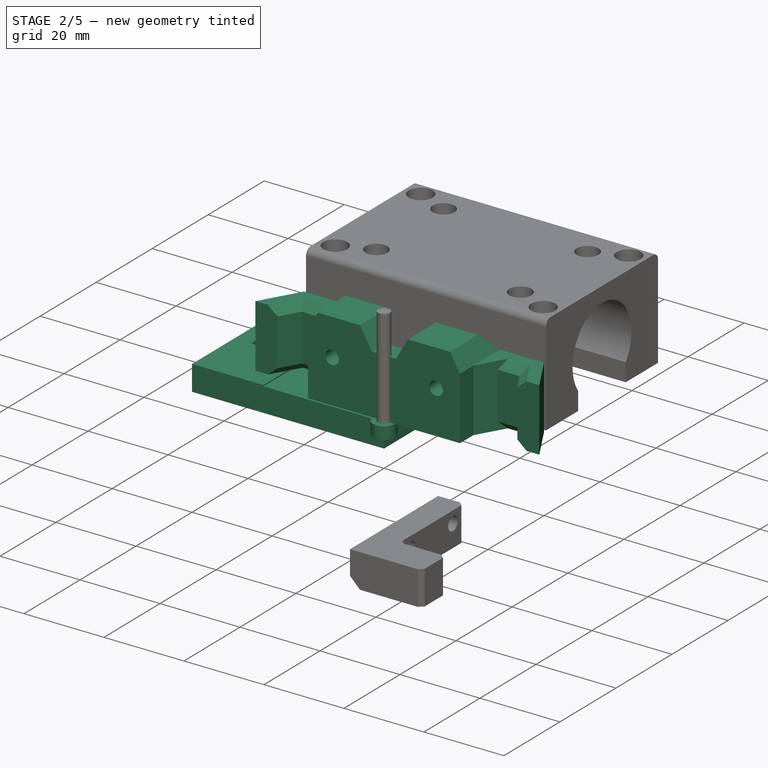
[diagram: stage 2 of 5 — iso view after this stage's code; geometry added in this stage tinted green]
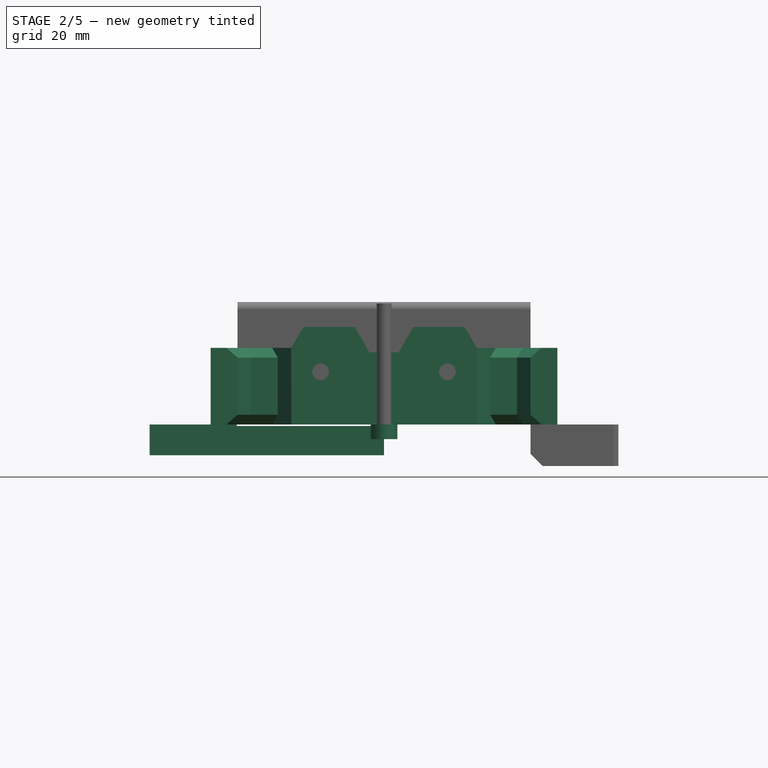
[diagram: stage 2 of 5 — front view after this stage's code; geometry added in this stage tinted green]
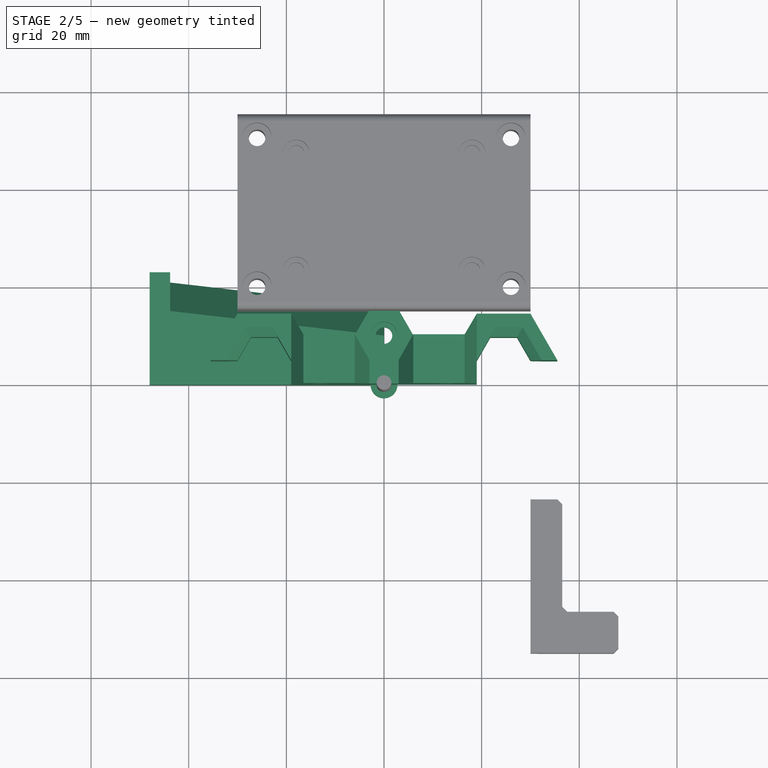
[diagram: stage 2 of 5 — top view after this stage's code; geometry added in this stage tinted green]
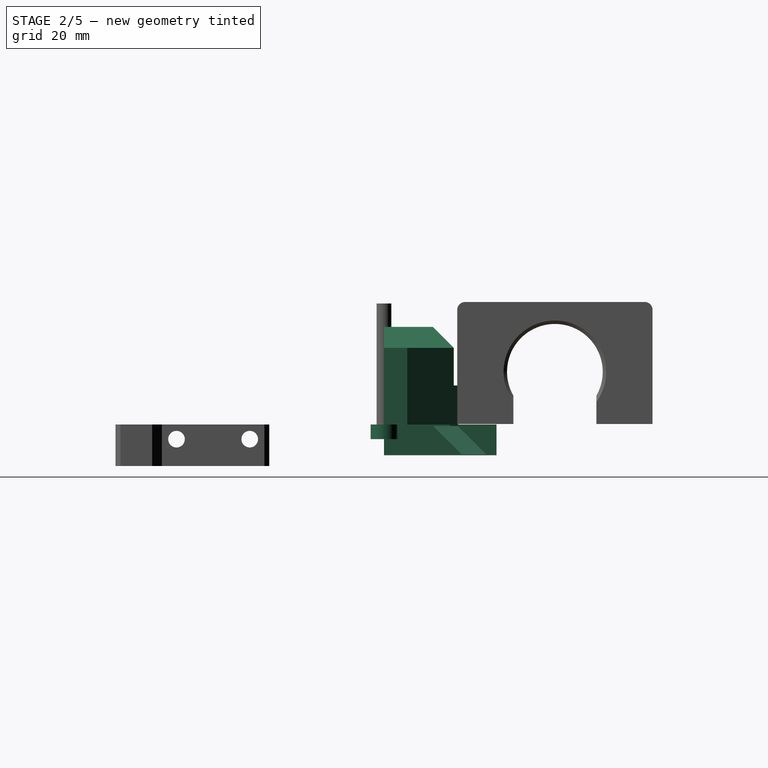
[diagram: stage 2 of 5 — right view after this stage's code; geometry added in this stage tinted green]
FEATURE [PartDesign::Body] Body005  label="BeltTensioner"
  AllowCompound = false
  Group = -> [Sketch057,Binder010,Sketch058,Pad021,Sketch059,Pocket028,Chamfer006,Sketch060,Pad022,LinearPattern,Chamfer007,Fillet003,Pocket029,Fillet004,Sketch061,Hole017,Sketch062,Pocket030,Sketch063,Hole018,Sketch064,Pocket031,Mirrored002]
  Origin = -> Origin006
  Tip = -> Mirrored002
FEATURE [PartDesign::SubShapeBinder] Binder011
  BindCopyOnChange = 0
  BindMode = 0
  ClaimChildren = false
  Context = -> Body006 [Binder011.]
  Fuse = false
  MakeFace = true
  OffsetFill = false
  OffsetIntersection = false
  OffsetJoinType = 0
  OffsetOpenResult = false
  PartialLoad = false
  Refine = true
  Relative = true
  Support = -> [Sketch001]
  _Version = 2
FEATURE [Sketcher::SketchObject] Sketch065  label="Mount Base Sketch"
  ArcFitTolerance = 1e-06
  AttachmentOffset = pos=(0,0,-0.3) rot=(0,0,1;0rad)
  AttachmentSupport = -> [XY_Plane007]
  FullyConstrained = true
  MakeInternals = false
  MapMode = 5
  Placement = pos=(0,0,-0.3) rot=(0,0,1;0rad)
  sketch-geometry (10):
    g0: LineSegment StartX=-43.5 StartY=0 StartZ=0 EndX=0 EndY=0 EndZ=0
    g1: LineSegment [constr] StartX=43.5 StartY=0 StartZ=0 EndX=43.5 EndY=21 EndZ=0
    g2: LineSegment [constr] StartX=43.5 StartY=21 StartZ=0 EndX=0 EndY=16 EndZ=0
    g3: LineSegment StartX=0 StartY=16 StartZ=0 EndX=-43.5 EndY=21 EndZ=0
    g4: LineSegment [constr] StartX=-43.5 StartY=21 StartZ=0 EndX=-43.5 EndY=0 EndZ=0
    g5: LineSegment StartX=0 StartY=16 StartZ=0 EndX=0 EndY=0 EndZ=0
    g6: LineSegment [constr] StartX=0 StartY=0 StartZ=0 EndX=43.5 EndY=0 EndZ=0
    g7: LineSegment StartX=-43.8 StartY=21.0345 StartZ=0 EndX=-43.8 EndY=0 EndZ=0
    g8: LineSegment StartX=-43.5 StartY=0 StartZ=0 EndX=-43.8 EndY=0 EndZ=0
    g9: LineSegment StartX=-43.5 StartY=21 StartZ=0 EndX=-43.8 EndY=21.0345 EndZ=0
  constraints (27):
    c: PointOnObject(g0,g-1)
    c: PointOnObject(g1,g-1)
    c: Vertical(g1)
    c: Coincident(g1,g2)
    c: PointOnObject(g2,g-2)
    c: Coincident(g2,g3)
    c: Coincident(g3,g4)
    c: Coincident(g4,g0)
    c: Vertical(g4)
    c: DistanceY(g2,g3) = 5
    c: DistanceX(g3,g1) = 87
    c: Symmetric(g1,g3,g-2)
    c: DistanceY(g-1,g2) = 16
    c: Coincident(g5,g2)
    c: Coincident(g5,g-1)
    c: PointOnObject(g0,g5)
    c: Coincident(g6,g0)
    c: Coincident(g6,g1)
    c: Horizontal(g6)
    c: PointOnObject(g7,g-1)
    c: Vertical(g7)
    c: Coincident(g8,g0)
    c: Coincident(g8,g7)
    c: Coincident(g9,g3)
    c: Coincident(g9,g7)
    c: Parallel(g9,g3)
    c: DistanceX(g7,g0) = 0.3
FEATURE [PartDesign::Pad] Pad023
  Direction = (0,0,1)
  Length = 6
  Length2 = 10
  Profile = -> Sketch065
  ReferenceAxis = -> Sketch065 [N_Axis]
  Refine = true
  Reversed = true
  Suppressed = false
  Type = 0
FEATURE [PartDesign::Chamfer] Chamfer008
  Angle = 45
  Base = -> Pad023 [Edge5]
  BaseFeature = -> Pad023
  ChamferType = 0
  FlipDirection = false
  Refine = true
  Size = 5.9
  Size2 = 1
  SupportTransform = false
  Suppressed = false
  UseAllEdges = false
FEATURE [Sketcher::SketchObject] Sketch066
  ArcFitTolerance = 1e-06
  AttachmentSupport = -> [Chamfer008]
  ExternalGeometry = -> [Chamfer008]
  FullyConstrained = true
  MakeInternals = false
  MapMode = 5
  Placement = pos=(0,0,-0.3) rot=(0,0,1;0rad)
  sketch-geometry (4):
    g0: LineSegment StartX=-43.8 StartY=0 StartZ=0 EndX=-43.8 EndY=23.0345 EndZ=0
    g1: LineSegment StartX=-43.8 StartY=23.0345 StartZ=0 EndX=-48 EndY=23.0345 EndZ=0
    g2: LineSegment StartX=-48 StartY=23.0345 StartZ=0 EndX=-48 EndY=0 EndZ=0
    g3: LineSegment StartX=-48 StartY=0 StartZ=0 EndX=-43.8 EndY=0 EndZ=0
  constraints (11):
    c: Coincident(g-3,g0)
    c: Vertical(g0)
    c: Coincident(g0,g1)
    c: Horizontal(g1)
    c: Coincident(g1,g2)
    c: PointOnObject(g2,g-1)
    c: Vertical(g2)
    c: Coincident(g2,g3)
    c: Coincident(g3,g0)
    c: DistanceY(g-3,g0) = 2
    c: DistanceX(g2,g-1) = 48
FEATURE [PartDesign::Pad] Pad024
  BaseFeature = -> Chamfer008
  Direction = (0,0,1)
  Length = 10
  Length2 = 10
  Profile = -> Sketch066
  ReferenceAxis = -> Sketch066 [N_Axis]
  Refine = true
  Reversed = true
  Suppressed = false
  Type = 3
  UpToFace = -> Chamfer008 [Face4]
FEATURE [Sketcher::SketchObject] Sketch067
  ArcFitTolerance = 1e-06
  AttachmentSupport = -> [Pad024]
  ExternalGeometry = -> [Pad024]
  FullyConstrained = true
  MakeInternals = false
  MapMode = 5
  Placement = pos=(0,0,-0.3) rot=(0,0,1;0rad)
  sketch-geometry (8):
    g0: LineSegment StartX=-48 StartY=23.0345 StartZ=0 EndX=-48 EndY=0 EndZ=0
    g1: LineSegment StartX=-48 StartY=0 StartZ=0 EndX=-30.15 EndY=0 EndZ=0
    g2: LineSegment StartX=-43.8 StartY=23.0345 StartZ=0 EndX=-43.8 EndY=15.0956 EndZ=0
    g3: LineSegment StartX=-43.8 StartY=15.0956 StartZ=0 EndX=-30.15 EndY=13.5267 EndZ=0
    g4: LineSegment [constr] StartX=-30.15 StartY=23.0345 StartZ=0 EndX=-43.8 EndY=23.0345 EndZ=0
    g5: LineSegment StartX=-43.8 StartY=23.0345 StartZ=0 EndX=-48 EndY=23.0345 EndZ=0
    g6: LineSegment StartX=-30.15 StartY=0 StartZ=0 EndX=-30.15 EndY=13.5267 EndZ=0
    g7: LineSegment [constr] StartX=-30.15 StartY=13.5267 StartZ=0 EndX=-30.15 EndY=23.0345 EndZ=0
  constraints (20):
    c: Coincident(g-3,g0)
    c: Coincident(g0,g-3)
    c: Coincident(g0,g1)
    c: PointOnObject(g1,g-1)
    c: Coincident(g1,g6)
    c: Coincident(g7,g4)
    c: Coincident(g5,g0)
    c: Coincident(g2,g-4)
    c: Vertical(g2)
    c: Coincident(g2,g3)
    c: Coincident(g4,g5)
    c: Horizontal(g4)
    c: Horizontal(g5)
    c: Coincident(g6,g7)
    c: Vertical(g6)
    c: Coincident(g4,g2)
    c: Coincident(g6,g3)
    c: DistanceX(g0,g4) = 17.85
    c: Parallel(g3,g-4)
    c: Vertical(g7)
FEATURE [PartDesign::Pad] Pad025
  BaseFeature = -> Pad024
  Direction = (0,0,1)
  Length = 0.3
  Length2 = 10
  Profile = -> Sketch067
  ReferenceAxis = -> Sketch067 [N_Axis]
  Refine = true
  Suppressed = false
  Type = 0
FEATURE [PartDesign::Body] Body006  label="TazMount"
  AllowCompound = false
  Group = -> [Binder011,Sketch065,Pad023,Chamfer008,Sketch066,Pad024,Sketch067,Pad025,Sketch068,Pad026,Sketch069,Pocket032,Hole019,Sketch070,Hole020,Fillet005,Chamfer009,Mirrored003]
  Origin = -> Origin007
  Placement = pos=(0,-55,-6) rot=(0,0,1;0rad)
  Tip = -> Mirrored003
FEATURE [Sketcher::SketchObject] Sketch071
  ArcFitTolerance = 1e-06
  AttachmentSupport = -> [XY_Plane008]
  FullyConstrained = true
  MakeInternals = false
  MapMode = 5
  sketch-geometry (26):
    g0: LineSegment StartX=-27.25 StartY=9.52628 StartZ=0 EndX=-30 EndY=4.76314 EndZ=0
    g1: LineSegment StartX=-21.75 StartY=0 StartZ=0 EndX=-19 EndY=4.76314 EndZ=0
    g2: LineSegment StartX=-19 StartY=4.76314 StartZ=0 EndX=-21.75 EndY=9.52628 EndZ=0
    g3: LineSegment StartX=-21.75 StartY=9.52628 StartZ=0 EndX=-27.25 EndY=9.52628 EndZ=0
    g4: Circle [constr] CenterX=-24.5 CenterY=4.76314 CenterZ=0 NormalX=0 NormalY=0 NormalZ=1 AngleXU=0 Radius=5.5
    g5: LineSegment [constr] StartX=-13.4999 StartY=4.76314 StartZ=0 EndX=-19 EndY=14.2895 EndZ=0
    g6: LineSegment StartX=-19 StartY=14.2895 StartZ=0 EndX=-30 EndY=14.2895 EndZ=0
    g7: LineSegment StartX=-30 StartY=14.2895 StartZ=0 EndX=-35.5001 EndY=4.76314 EndZ=0
    g8: Circle [constr] CenterX=-24.5 CenterY=4.76314 CenterZ=0 NormalX=0 NormalY=0 NormalZ=1 AngleXU=0 Radius=11.0001
    g9: LineSegment StartX=-21.75 StartY=0 StartZ=0 EndX=0 EndY=0 EndZ=0
    g10: LineSegment StartX=-35.5001 StartY=4.76314 StartZ=0 EndX=-30 EndY=4.76314 EndZ=0
    g11: LineSegment [constr] StartX=-16.5234 StartY=10 StartZ=0 EndX=0 EndY=10 EndZ=0
    g12: LineSegment StartX=-16.5234 StartY=10 StartZ=0 EndX=-19 EndY=14.2895 EndZ=0
    g13: LineSegment [constr] StartX=-13.4999 StartY=4.76314 StartZ=0 EndX=-19 EndY=4.76314 EndZ=0
    g14: Circle [constr] CenterX=0 CenterY=10 CenterZ=0 NormalX=0 NormalY=0 NormalZ=1 AngleXU=0 Radius=1.7
    g15: LineSegment [constr] StartX=6 StartY=10 StartZ=0 EndX=3 EndY=15.1962 EndZ=0
    g16: LineSegment [constr] StartX=3 StartY=15.1962 StartZ=0 EndX=-3 EndY=15.1962 EndZ=0
    g17: LineSegment StartX=-3 StartY=15.1962 StartZ=0 EndX=-6 EndY=10 EndZ=0
    g18: LineSegment [constr] StartX=-6 StartY=10 StartZ=0 EndX=-3 EndY=4.80385 EndZ=0
    g19: LineSegment [constr] StartX=-3 StartY=4.80385 StartZ=0 EndX=3 EndY=4.80385 EndZ=0
    g20: LineSegment [constr] StartX=3 StartY=4.80385 StartZ=0 EndX=6 EndY=10 EndZ=0
    g21: Circle [constr] CenterX=0 CenterY=10 CenterZ=0 NormalX=0 NormalY=0 NormalZ=1 AngleXU=0 Radius=6
    g22: LineSegment StartX=-6 StartY=10 StartZ=0 EndX=-16.5234 EndY=10 EndZ=0
    g23: LineSegment StartX=5e-16 StartY=15.1962 StartZ=0 EndX=0 EndY=0 EndZ=0
    g24: LineSegment StartX=5e-16 StartY=15.1962 StartZ=0 EndX=-3 EndY=15.1962 EndZ=0
    g25: LineSegment [constr] StartX=-19 StartY=4.76314 StartZ=0 EndX=-19 EndY=14.2895 EndZ=0
  constraints (66):
    c: Coincident(g1,g2)
    c: Coincident(g2,g3)
    c: Coincident(g3,g0)
    c: Equal(g0,g1)
    c: Equal(g0,g2)
    c: Equal(g0,g3)
    c: PointOnObject(g0,g4)
    c: PointOnObject(g1,g4)
    c: PointOnObject(g1,g4)
    c: PointOnObject(g2,g4)
    c: PointOnObject(g3,g4)
    c: DistanceX(g0,g1) = 11
    c: Coincident(g5,g6)
    c: Coincident(g6,g7)
    c: PointOnObject(g5,g8)
    c: PointOnObject(g5,g8)
    c: PointOnObject(g6,g8)
    c: PointOnObject(g7,g8)
    c: Coincident(g8,g4)
    c: Coincident(g9,g-1)
    c: Horizontal(g9)
    c: Coincident(g10,g0)
    c: Horizontal(g10)
    c: Horizontal(g3)
    c: PointOnObject(g11,g-2)
    c: Horizontal(g11)
    c: Coincident(g12,g11)
    c: Coincident(g12,g5)
    c: Coincident(g1,g9)
    c: Parallel(g3,g6)
    c: Angle(g0,g3) = 2.0944
    c: Parallel(g2,g12)
    c: Parallel(g0,g7)
    c: Coincident(g13,g5)
    c: Coincident(g13,g1)
    c: Horizontal(g13)
    c: Diameter(g14) = 3.4
    c: DistanceY(g9,g14) = 10
    c: Coincident(g15,g16)
    c: Coincident(g16,g17)
    c: Coincident(g17,g18)
    c: Coincident(g18,g19)
    c: Coincident(g19,g20)
    c: Coincident(g20,g15)
    c: Equal(g15, g16-g20) x5
    c: PointOnObject(g15,g21)
    c: PointOnObject(g16,g21)
    c: PointOnObject(g17,g21)
    c: PointOnObject(g18,g21)
    c: PointOnObject(g19,g21)
    c: PointOnObject(g20,g21)
    c: Coincident(g21,g11)
    c: Diameter(g21) = 12
    c: Coincident(g22,g17)
    c: Coincident(g22,g11)
    c: Horizontal(g22)
    c: Coincident(g11,g14)
    c: Symmetric(g16,g16,g23)
    c: Coincident(g23,g9)
    c: Coincident(g24,g23)
    c: Coincident(g24,g16)
    c: Coincident(g7,g10)
    c: Coincident(g25,g1)
    c: Coincident(g25,g5)
    c: Tangent(g25,g4)
    c: DistanceX(g0,g11) = 30
FEATURE [PartDesign::Pad] Pad027
  Direction = (0,0,1)
  Length = 20
  Length2 = 10
  Profile = -> Sketch071
  ReferenceAxis = -> Sketch071 [N_Axis]
  Refine = true
  Suppressed = false
  Type = 0
FEATURE [Sketcher::SketchObject] Sketch072  label="TopMountHole Sketch"
  ArcFitTolerance = 1e-06
  AttachmentSupport = -> [Pad027]
  FullyConstrained = true
  MakeInternals = false
  MapMode = 5
  Placement = pos=(0,14.2895,0) rot=(0,0.707107,0.707107;3.14159rad)
  sketch-geometry (1):
    g0: Circle CenterX=13 CenterY=10.8 CenterZ=0 NormalX=0 NormalY=0 NormalZ=1 AngleXU=0 Radius=1.7
  constraints (3):
    c: Diameter(g0) = 3.4
    c: DistanceY(g-1,g0) = 10.8
    c: DistanceX(g-1,g0) = 13
FEATURE [PartDesign::Hole] Hole021  label="TopMountHole"
  BaseFeature = -> Pad027
  CustomThreadClearance = 0
  Depth = 25
  DepthType = 0
  Diameter = 3.4
  DrillForDepth = false
  DrillPoint = 1
  DrillPointAngle = 118
  HoleCutCountersinkAngle = 90
  HoleCutCustomValues = false
  HoleCutDepth = 0
  HoleCutDiameter = 6.1
  HoleCutType = 0
  ModelThread = false
  Profile = -> Sketch072
  Refine = true
  Suppressed = false
  Tapered = false
  TaperedAngle = 90
  ThreadClass = 0
  ThreadDepth = 25
  ThreadDepthType = 0
  ThreadDirection = 0
  ThreadFit = 0
  ThreadSize = 9
  ThreadType = 1
  Threaded = false
  UseCustomThreadClearance = false
FEATURE [Sketcher::SketchObject] Sketch073
  ArcFitTolerance = 1e-06
  AttachmentSupport = -> [Hole021]
  ExternalGeometry = -> [Hole021]
  FullyConstrained = true
  MakeInternals = false
  MapMode = 5
  Placement = pos=(0,0,20) rot=(0,0,1;0rad)
  sketch-geometry (7):
    g0: LineSegment StartX=-6 StartY=10 StartZ=0 EndX=-3 EndY=4.80385 EndZ=0
    g1: LineSegment StartX=-3 StartY=4.80385 StartZ=0 EndX=3 EndY=4.80385 EndZ=0
    g2: LineSegment StartX=3 StartY=4.80385 StartZ=0 EndX=6 EndY=10 EndZ=0
    g3: LineSegment StartX=6 StartY=10 StartZ=0 EndX=3 EndY=15.1962 EndZ=0
    g4: LineSegment StartX=3 StartY=15.1962 StartZ=0 EndX=-3 EndY=15.1962 EndZ=0
    g5: LineSegment StartX=-3 StartY=15.1962 StartZ=0 EndX=-6 EndY=10 EndZ=0
    g6: Circle [constr] CenterX=1.7e-15 CenterY=10 CenterZ=0 NormalX=0 NormalY=0 NormalZ=1 AngleXU=0 Radius=6
  constraints (15):
    c: Coincident(g0,g1)
    c: Coincident(g1,g2)
    c: Coincident(g2,g3)
    c: Coincident(g3,g4)
    c: Coincident(g4,g5)
    c: Coincident(g5,g0)
    c: Equal(g0, g1-g5) x5
    c: PointOnObject(g0,g6)
    c: PointOnObject(g1,g6)
    c: PointOnObject(g2,g6)
    c: PointOnObject(g3,g6)
    c: PointOnObject(g4,g6)
    c: PointOnObject(g5,g6)
    c: Coincident(g5,g-3)
    c: Coincident(g4,g-3)
FEATURE [PartDesign::Pocket] Pocket033
  BaseFeature = -> Hole021
  Direction = (0,0,-1)
  Length = 12
  Length2 = 5
  Profile = -> Sketch073
  ReferenceAxis = -> Sketch073 [N_Axis]
  Refine = true
  Suppressed = false
  Type = 0
FEATURE [Sketcher::SketchObject] Sketch074
  ArcFitTolerance = 1e-06
  AttachmentSupport = -> [Pocket033]
  ExternalGeometry = -> [Pocket033]
  FullyConstrained = true
  MakeInternals = false
  MapMode = 5
  Placement = pos=(0,10,0) rot=(0,0.707107,0.707107;3.14159rad)
  sketch-geometry (7):
    g0: LineSegment StartX=6 StartY=20 StartZ=0 EndX=3 EndY=25.1962 EndZ=0
    g1: LineSegment StartX=3 StartY=25.1962 StartZ=0 EndX=-3 EndY=25.1962 EndZ=0
    g2: LineSegment StartX=-3 StartY=25.1962 StartZ=0 EndX=-6 EndY=20 EndZ=0
    g3: LineSegment StartX=-6 StartY=20 StartZ=0 EndX=-3 EndY=14.8038 EndZ=0
    g4: LineSegment StartX=-3 StartY=14.8038 StartZ=0 EndX=3 EndY=14.8038 EndZ=0
    g5: LineSegment StartX=3 StartY=14.8038 StartZ=0 EndX=6 EndY=20 EndZ=0
    g6: Circle [constr] CenterX=0 CenterY=20 CenterZ=0 NormalX=0 NormalY=0 NormalZ=1 AngleXU=0 Radius=6
  constraints (16):
    c: Coincident(g0,g1)
    c: Coincident(g1,g2)
    c: Coincident(g2,g3)
    c: Coincident(g3,g4)
    c: Coincident(g4,g5)
    c: Coincident(g5,g0)
    c: Equal(g0, g1-g5) x5
    c: PointOnObject(g0,g6)
    c: PointOnObject(g1,g6)
    c: PointOnObject(g2,g6)
    c: PointOnObject(g3,g6)
    c: PointOnObject(g4,g6)
    c: PointOnObject(g5,g6)
    c: PointOnObject(g6,g-2)
    c: Horizontal(g1)
    c: Coincident(g0,g-4)
FEATURE [PartDesign::Pocket] Pocket034
  BaseFeature = -> Pocket033
  Direction = (0,-1,2e-16)
  Length = 10
  Length2 = 5
  Profile = -> Sketch074
  ReferenceAxis = -> Sketch074 [N_Axis]
  Refine = true
  Suppressed = false
  Type = 0
FEATURE [Sketcher::SketchObject] Sketch075
  ArcFitTolerance = 1e-06
  AttachmentSupport = -> [Pocket034]
  ExternalGeometry = -> [Pocket034]
  FullyConstrained = true
  MakeInternals = false
  MapMode = 5
  Placement = pos=(0,14.2895,0) rot=(0,0.707107,0.707107;3.14159rad)
  sketch-geometry (4):
    g0: LineSegment StartX=16.5234 StartY=20 StartZ=0 EndX=19 EndY=15.7105 EndZ=0
    g1: LineSegment StartX=19 StartY=15.7105 StartZ=0 EndX=35.5001 EndY=15.7105 EndZ=0
    g2: LineSegment StartX=16.5234 StartY=20 StartZ=0 EndX=35.5001 EndY=20 EndZ=0
    g3: LineSegment StartX=35.5001 StartY=20 StartZ=0 EndX=35.5001 EndY=15.7105 EndZ=0
  constraints (10):
    c: Coincident(g0,g-3)
    c: PointOnObject(g0,g-4)
    c: Coincident(g1,g0)
    c: PointOnObject(g1,g-5)
    c: Horizontal(g1)
    c: Angle(g0,g-3) = 2.61799
    c: Coincident(g2,g0)
    c: Coincident(g2,g-5)
    c: Coincident(g3,g2)
    c: Coincident(g3,g1)
FEATURE [PartDesign::Pocket] Pocket035
  BaseFeature = -> Pocket034
  Direction = (0,-1,2e-16)
  Length = 15
  Length2 = 5
  Profile = -> Sketch075
  ReferenceAxis = -> Sketch075 [N_Axis]
  Refine = true
  Suppressed = false
  Type = 0
FEATURE [PartDesign::Pocket] Pocket036
  BaseFeature = -> Pocket035
  Direction = (0,-2e-16,-1)
  Length = 16
  Length2 = 5
  Profile = -> Pocket035 [Face4]
  Refine = true
  Suppressed = false
  Type = 0
FEATURE [PartDesign::Chamfer] Chamfer010
  Angle = 45
  Base = -> Pocket036 [Edge5,Edge11,Edge18,Edge6,Edge22]
  BaseFeature = -> Pocket036
  ChamferType = 0
  FlipDirection = false
  Refine = true
  Size = 2
  Size2 = 1
  SupportTransform = false
  Suppressed = false
  UseAllEdges = false
FEATURE [PartDesign::Mirrored] Mirrored004
  BaseFeature = -> Chamfer010
  MirrorPlane = -> YZ_Plane008
  Originals = -> [Chamfer010]
  Refine = true
  Suppressed = false
  TransformMode = 1
FEATURE [Sketcher::SketchObject] Sketch076
  ArcFitTolerance = 1e-06
  AttachmentSupport = -> [Mirrored004]
  ExternalGeometry = -> [Mirrored004]
  FullyConstrained = true
  MakeInternals = false
  MapMode = 5
  Placement = pos=(0,0,2.1e-15) rot=(1,0,0;3.14159rad)
  expr: Constraints[3] = <<Dimensions>>.M3Hole
  sketch-geometry (2):
    g0: LineSegment [constr] StartX=-6 StartY=-10 StartZ=0 EndX=6 EndY=-10 EndZ=0
    g1: Circle CenterX=0 CenterY=-10 CenterZ=0 NormalX=0 NormalY=0 NormalZ=1 AngleXU=0 Radius=1.7
  constraints (4):
    c: Coincident(g0,g-3)
    c: Coincident(g0,g-4)
    c: Symmetric(g0,g0,g1)
    c: Diameter(g1) = 3.4
FEATURE [PartDesign::Pocket] Pocket037
  BaseFeature = -> Mirrored004
  Direction = (0,0,1)
  Length = 10
  Length2 = 5
  Profile = -> Sketch076
  ReferenceAxis = -> Sketch076 [N_Axis]
  Refine = true
  Suppressed = false
  Type = 0
FEATURE [Sketcher::SketchObject] Sketch077
  ArcFitTolerance = 1e-06
  AttachmentSupport = -> [Pocket037]
  ExternalGeometry = -> [Pocket037]
  FullyConstrained = true
  MakeInternals = false
  MapMode = 5
  Placement = pos=(0,0,8) rot=(0,0,1;0rad)
  expr: Constraints[1] = <<Dimensions>>.M3HeatSet
  sketch-geometry (1):
    g0: Circle CenterX=0 CenterY=10 CenterZ=0 NormalX=0 NormalY=0 NormalZ=1 AngleXU=0 Radius=2.75
  constraints (2):
    c: Coincident(g0,g-3)
    c: Diameter(g0) = 5.5
FEATURE [PartDesign::Pocket] Pocket038  label="ScrewInset"
  BaseFeature = -> Pocket037
  Direction = (0,0,-1)
  Length = 4
  Length2 = 5
  Profile = -> Sketch077
  ReferenceAxis = -> Sketch077 [N_Axis]
  Refine = true
  Suppressed = false
  Type = 0
  expr: Length = <<Dimensions>>.M3HeatSetDepth
FEATURE [PartDesign::Pad] Pad029
  BaseFeature = -> Pad028
  Direction = (0,0,1)
  Length = 3
  Length2 = 10
  Profile = -> Sketch081 [Edge2]
  ReferenceAxis = -> Sketch081 [N_Axis]
  Refine = true
  Reversed = true
  Suppressed = false
  Type = 0
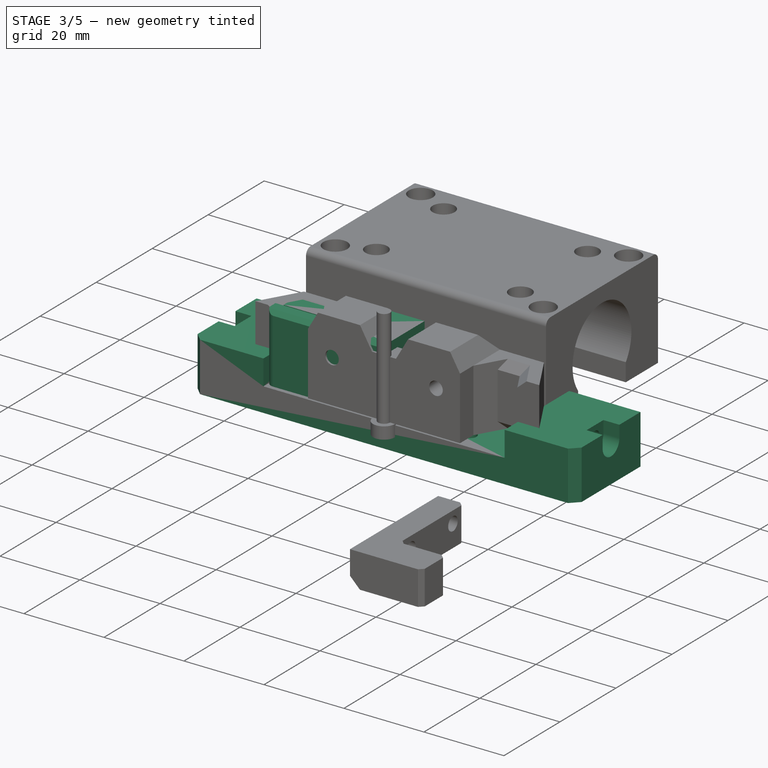
[diagram: stage 3 of 5 — iso view after this stage's code; geometry added in this stage tinted green]
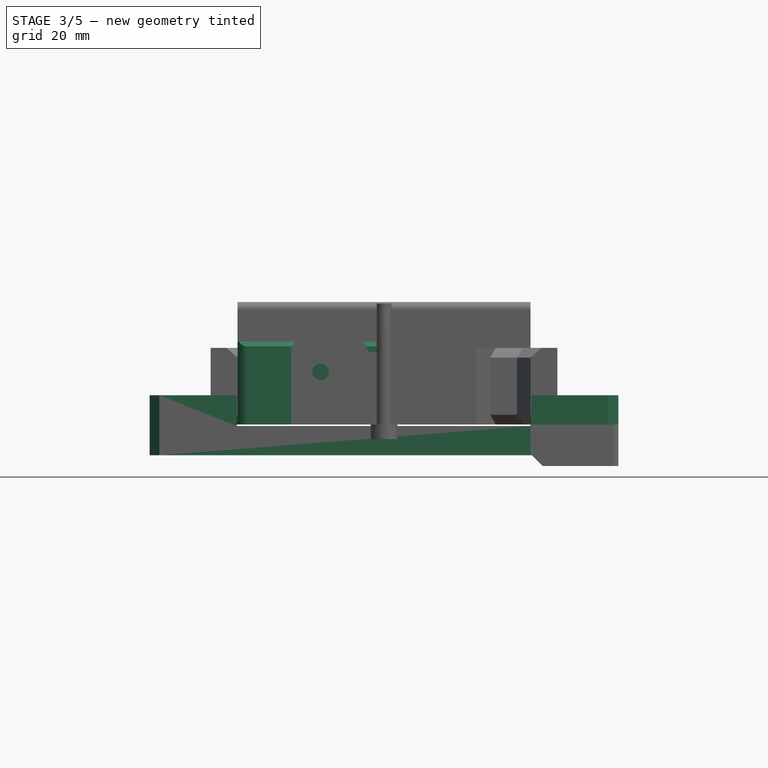
[diagram: stage 3 of 5 — front view after this stage's code; geometry added in this stage tinted green]
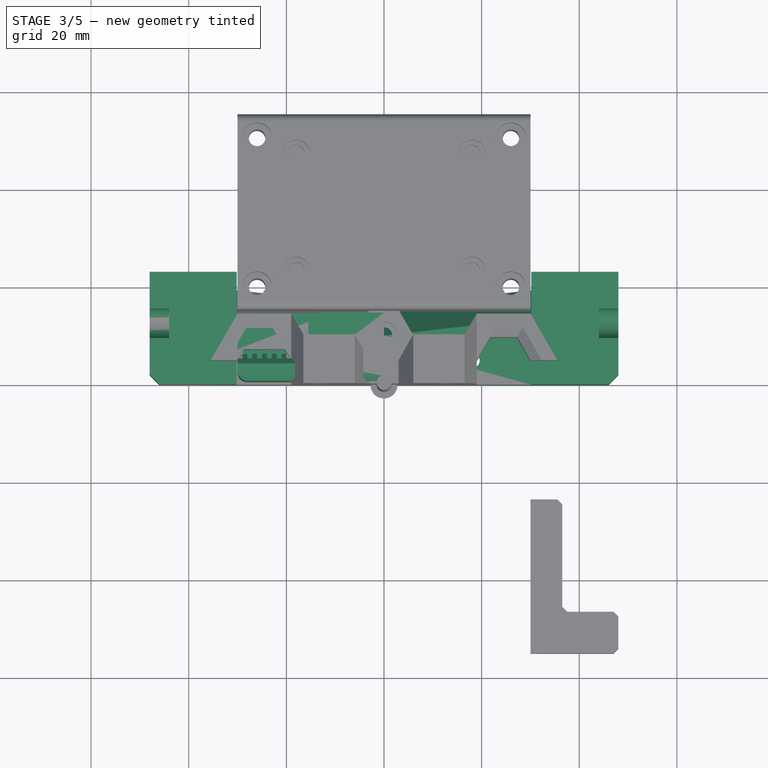
[diagram: stage 3 of 5 — top view after this stage's code; geometry added in this stage tinted green]
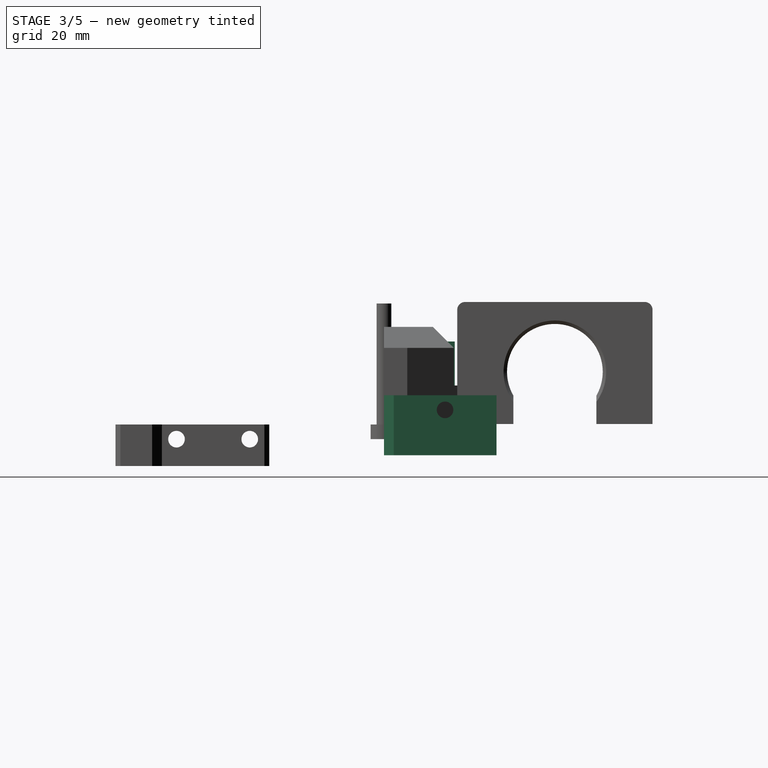
[diagram: stage 3 of 5 — right view after this stage's code; geometry added in this stage tinted green]
FEATURE [Sketcher::SketchObject] Sketch057  label="Tensioner Base Sketch"
  ArcFitTolerance = 1e-06
  AttachmentSupport = -> [XY_Plane006]
  FullyConstrained = true
  MakeInternals = false
  MapMode = 5
  sketch-geometry (6):
    g0: LineSegment StartX=-30 StartY=15 StartZ=0 EndX=-30 EndY=0 EndZ=0
    g1: LineSegment StartX=-30 StartY=0 StartZ=0 EndX=30 EndY=0 EndZ=0
    g2: LineSegment StartX=30 StartY=0 StartZ=0 EndX=30 EndY=15 EndZ=0
    g3: LineSegment StartX=30 StartY=15 StartZ=0 EndX=-30 EndY=15 EndZ=0
    g4: LineSegment StartX=-30 StartY=7 StartZ=0 EndX=30 EndY=7 EndZ=0
    g5: LineSegment StartX=30 StartY=6 StartZ=0 EndX=-30 EndY=6 EndZ=0
  constraints (17):
    c: Coincident(g0,g1)
    c: Coincident(g1,g2)
    c: Coincident(g2,g3)
    c: Coincident(g3,g0)
    c: Horizontal(g3)
    c: Tangent(g-4,g2)
    c: Horizontal(g1)
    c: Coincident(g0,g-3)
    c: Symmetric(g0,g1,g-1)
    c: PointOnObject(g4,g0)
    c: PointOnObject(g4,g2)
    c: Horizontal(g4)
    c: PointOnObject(g5,g2)
    c: PointOnObject(g5,g0)
    c: Horizontal(g5)
    c: DistanceY(g1,g5) = 6
    c: DistanceY(g5,g4) = 1
FEATURE [PartDesign::SubShapeBinder] Binder010  label="New Taz Base Binder"
  BindCopyOnChange = 0
  BindMode = 0
  ClaimChildren = false
  Context = -> Body005 [Binder010.]
  Fuse = false
  MakeFace = true
  OffsetFill = false
  OffsetIntersection = false
  OffsetJoinType = 0
  OffsetOpenResult = false
  PartialLoad = false
  Refine = true
  Relative = true
  Support = -> [Sketch001]
  _Version = 2
FEATURE [Sketcher::SketchObject] Sketch058
  ArcFitTolerance = 1e-06
  AttachmentSupport = -> [XY_Plane006]
  ExternalGeometry = -> [Sketch057]
  FullyConstrained = true
  MakeInternals = false
  MapMode = 5
  sketch-geometry (4):
    g0: LineSegment StartX=-30 StartY=14.5 StartZ=0 EndX=0 EndY=14.5 EndZ=0
    g1: LineSegment StartX=0 StartY=14.5 StartZ=0 EndX=0 EndY=0.5 EndZ=0
    g2: LineSegment StartX=0 StartY=0.5 StartZ=0 EndX=-30 EndY=0.5 EndZ=0
    g3: LineSegment StartX=-30 StartY=0.5 StartZ=0 EndX=-30 EndY=14.5 EndZ=0
  constraints (11):
    c: PointOnObject(g0,g-3)
    c: Coincident(g0,g1)
    c: Coincident(g1,g2)
    c: PointOnObject(g2,g-3)
    c: Horizontal(g2)
    c: Coincident(g2,g3)
    c: Coincident(g3,g0)
    c: DistanceY(g0,g-3) = 0.5
    c: DistanceY(g-4,g1) = 0.5
    c: Horizontal(g0)
    c: Tangent(g1,g-2)
FEATURE [PartDesign::Pad] Pad021  label="Tensioner Block"
  Direction = (0,0,1)
  Length = 17
  Length2 = 10
  Profile = -> Sketch058
  ReferenceAxis = -> Sketch058 [N_Axis]
  Refine = true
  Suppressed = false
  Type = 0
FEATURE [Sketcher::SketchObject] Sketch059
  ArcFitTolerance = 1e-06
  AttachmentSupport = -> [Pad021]
  ExternalGeometry = -> [Sketch057,Pad021,Binder010]
  FullyConstrained = true
  MakeInternals = false
  MapMode = 5
  Placement = pos=(0,0,17) rot=(0,0,1;0rad)
  sketch-geometry (9):
    g0: LineSegment StartX=-30 StartY=5.1 StartZ=0 EndX=-13.6 EndY=5.1 EndZ=0
    g1: LineSegment StartX=-30 StartY=12.6 StartZ=0 EndX=-15.5 EndY=12.6 EndZ=0
    g2: LineSegment StartX=-15.5 StartY=12.6 StartZ=0 EndX=-15.5 EndY=7 EndZ=0
    g3: LineSegment StartX=-15.5 StartY=7 StartZ=0 EndX=-30 EndY=7 EndZ=0
    g4: LineSegment StartX=-30 StartY=7 StartZ=0 EndX=-30 EndY=5.1 EndZ=0
    g5: LineSegment StartX=-30 StartY=12.6 StartZ=0 EndX=-30 EndY=14.5 EndZ=0
    g6: LineSegment StartX=-30 StartY=14.5 StartZ=0 EndX=-13.6 EndY=14.5 EndZ=0
    g7: LineSegment StartX=-13.6 StartY=14.5 StartZ=0 EndX=-13.6 EndY=5.1 EndZ=0
    g8: Circle [constr] CenterX=-10 CenterY=7.5 CenterZ=0 NormalX=0 NormalY=0 NormalZ=1 AngleXU=0 Radius=3.6
  constraints (24):
    c: PointOnObject(g0,g-5)
    c: Horizontal(g0)
    c: DistanceY(g0,g-3) = 1.9
    c: PointOnObject(g1,g-5)
    c: Horizontal(g1)
    c: Coincident(g1,g2)
    c: PointOnObject(g2,g-3)
    c: Vertical(g2)
    c: Coincident(g2,g3)
    c: Coincident(g3,g-3)
    c: Coincident(g3,g4)
    c: Coincident(g4,g0)
    c: Coincident(g1,g5)
    c: Coincident(g5,g-5)
    c: Coincident(g5,g6)
    c: Horizontal(g6)
    c: Coincident(g6,g7)
    c: Vertical(g7)
    c: DistanceY(g5,g5) = 1.9
    c: DistanceX(g1,g6) = 1.9
    c: Coincident(g0,g7)
    c: Coincident(g8,g-7)
    c: Tangent(g8,g7)
    c: Distance(g8,g-7) = 2
FEATURE [PartDesign::Pocket] Pocket028
  BaseFeature = -> Pad021
  Direction = (0,0,-1)
  Length = 10
  Length2 = 5
  Profile = -> Sketch059
  ReferenceAxis = -> Sketch059 [N_Axis]
  Refine = true
  Suppressed = false
  Type = 0
FEATURE [PartDesign::Chamfer] Chamfer006
  Angle = 45
  Base = -> Pocket028 [Edge14]
  BaseFeature = -> Pocket028
  ChamferType = 0
  FlipDirection = false
  Refine = true
  Size = 1
  Size2 = 1
  SupportTransform = false
  Suppressed = false
  UseAllEdges = false
FEATURE [Sketcher::SketchObject] Sketch060
  ArcFitTolerance = 1e-06
  AttachmentSupport = -> [Chamfer006]
  ExternalGeometry = -> [Chamfer006]
  FullyConstrained = true
  MakeInternals = false
  MapMode = 5
  Placement = pos=(0,0,7) rot=(0,0,1;0rad)
  sketch-geometry (10):
    g0: LineSegment StartX=-29 StartY=5.1 StartZ=0 EndX=-29 EndY=5.7818 EndZ=0
    g1: LineSegment StartX=-28.6818 StartY=6.1 StartZ=0 EndX=-28.3182 EndY=6.1 EndZ=0
    g2: LineSegment StartX=-28 StartY=5.7818 StartZ=0 EndX=-28 EndY=5.4182 EndZ=0
    g3: LineSegment StartX=-28 StartY=5.1 StartZ=0 EndX=-29 EndY=5.1 EndZ=0
    g4: LineSegment [constr] StartX=-28.5 StartY=6.1 StartZ=0 EndX=-28.5 EndY=5.1 EndZ=0
    g5: ArcOfCircle CenterX=-28.6818 CenterY=5.7818 CenterZ=0 NormalX=0 NormalY=0 NormalZ=1 AngleXU=0 Radius=0.318198 StartAngle=1.5708 EndAngle=3.14159
    g6: ArcOfCircle CenterX=-28.3182 CenterY=5.7818 CenterZ=0 NormalX=0 NormalY=0 NormalZ=1 AngleXU=0 Radius=0.318198 StartAngle=-8.17e-14 EndAngle=1.5708
    g7: ArcOfCircle CenterX=-27.6818 CenterY=5.4182 CenterZ=0 NormalX=0 NormalY=0 NormalZ=1 AngleXU=0 Radius=0.318198 StartAngle=3.14159 EndAngle=4.71239
    g8: LineSegment StartX=-28 StartY=5.1 StartZ=0 EndX=-27.6818 EndY=5.1 EndZ=0
    g9: LineSegment [constr] StartX=-30 StartY=5.1 StartZ=0 EndX=-29 EndY=5.1 EndZ=0
  constraints (25):
    c: Coincident(g3,g0)
    c: Symmetric(g1,g1,g4)
    c: Symmetric(g3,g3,g4)
    c: Vertical(g4)
    c: Symmetric(g2,g0,g4)
    c: Perpendicular(g3,g0)
    c: DistanceX(g0,g3) = 1
    c: DistanceY(g3,g1) = 1
    c: Perpendicular(g1,g4)
    c: Distance(g1,g2) = 0.45
    c: Tangent(g5,g0) = 1.5708
    c: Tangent(g1,g5) = 1.5708
    c: Coincident(g6,g2)
    c: Tangent(g6,g1) = 1.5708
    c: Equal(g7,g6)
    c: Coincident(g8,g3)
    c: Horizontal(g8)
    c: Tangent(g7,g8) = -1.5708
    c: Tangent(g2,g7) = -1.5708
    c: Vertical(g2)
    c: Vertical(g0)
    c: Coincident(g9,g0)
    c: Horizontal(g9)
    c: Coincident(g9,g-3)
    c: DistanceX(g9,g0) = 1
FEATURE [PartDesign::Pad] Pad022  label="Tooth Base"
  BaseFeature = -> Chamfer006
  Direction = (0,0,1)
  Length = 10
  Length2 = 10
  Profile = -> Sketch060
  ReferenceAxis = -> Sketch060 [N_Axis]
  Refine = true
  Suppressed = false
  Type = 3
  UpToFace = -> Chamfer006 [Face3]
FEATURE [PartDesign::LinearPattern] LinearPattern  label="Tooth Pattern"
  BaseFeature = -> Pad022
  Direction = -> Sketch060 [H_Axis]
  Length = 10
  Mode = 1
  Occurrences = 6
  Offset = 2
  Originals = -> [Pad022]
  Refine = true
  Suppressed = false
  TransformMode = 0
FEATURE [PartDesign::Chamfer] Chamfer007
  Angle = 45
  Base = -> LinearPattern [Edge3]
  BaseFeature = -> LinearPattern
  ChamferType = 0
  FlipDirection = false
  Refine = true
  Size = 1
  Size2 = 1
  SupportTransform = false
  Suppressed = false
  UseAllEdges = false
FEATURE [PartDesign::Fillet] Fillet003
  Base = -> Chamfer007 [Edge9]
  BaseFeature = -> Chamfer007
  Radius = 2
  Refine = true
  SupportTransform = false
  Suppressed = false
  UseAllEdges = false
FEATURE [PartDesign::Pocket] Pocket029
  BaseFeature = -> Fillet003
  Direction = (0,0,-1)
  Length = 1.5
  Length2 = 5
  Profile = -> Fillet003 [Face14]
  Refine = true
  Suppressed = false
  Type = 0
FEATURE [Sketcher::SketchObject] Sketch068
  ArcFitTolerance = 1e-06
  AttachmentSupport = -> [Pad025]
  ExternalGeometry = -> [Pad025]
  FullyConstrained = true
  MakeInternals = false
  MapMode = 5
  sketch-geometry (4):
    g0: LineSegment StartX=-48 StartY=23.0345 StartZ=0 EndX=-48 EndY=0 EndZ=0
    g1: LineSegment StartX=-48 StartY=0 StartZ=0 EndX=-30.15 EndY=0 EndZ=0
    g2: LineSegment StartX=-30.15 StartY=0 StartZ=0 EndX=-30.15 EndY=23.0345 EndZ=0
    g3: LineSegment StartX=-30.15 StartY=23.0345 StartZ=0 EndX=-48 EndY=23.0345 EndZ=0
  constraints (10):
    c: Coincident(g0,g1)
    c: Coincident(g1,g2)
    c: Coincident(g2,g3)
    c: Coincident(g3,g0)
    c: Vertical(g0)
    c: Vertical(g2)
    c: Horizontal(g1)
    c: Horizontal(g3)
    c: Coincident(g0,g-4)
    c: Coincident(g1,g-3)
FEATURE [PartDesign::Pad] Pad026
  BaseFeature = -> Pad025
  Direction = (0,0,1)
  Length = 6
  Length2 = 10
  Profile = -> Sketch068
  ReferenceAxis = -> Sketch068 [N_Axis]
  Refine = true
  Suppressed = false
  Type = 0
FEATURE [Sketcher::SketchObject] Sketch069
  ArcFitTolerance = 1e-06
  AttachmentSupport = -> [Pad026]
  ExternalGeometry = -> [Pad026]
  FullyConstrained = true
  MakeInternals = false
  MapMode = 5
  Placement = pos=(-48,0,0) rot=(0.57735,-0.57735,-0.57735;2.0944rad)
  sketch-geometry (6):
    g0: LineSegment [constr] StartX=-23.0345 StartY=3 StartZ=0 EndX=0 EndY=3 EndZ=0
    g1: ArcOfCircle CenterX=-12.5 CenterY=3 CenterZ=0 NormalX=0 NormalY=0 NormalZ=1 AngleXU=0 Radius=3 StartAngle=3.14159 EndAngle=6.28319
    g2: LineSegment [constr] StartX=-23.0345 StartY=6 StartZ=0 EndX=0 EndY=6 EndZ=0
    g3: LineSegment StartX=-15.5 StartY=3 StartZ=0 EndX=-15.5 EndY=6 EndZ=0
    g4: LineSegment StartX=-15.5 StartY=6 StartZ=0 EndX=-9.5 EndY=6 EndZ=0
    g5: LineSegment StartX=-9.5 StartY=6 StartZ=0 EndX=-9.5 EndY=3 EndZ=0
  constraints (17):
    c: Symmetric(g-3,g-3,g0)
    c: PointOnObject(g0,g-4)
    c: Horizontal(g0)
    c: PointOnObject(g1,g0)
    c: DistanceX(g1,g0) = 12.5
    c: Diameter(g1) = 6
    c: PointOnObject(g1,g0)
    c: PointOnObject(g1,g0)
    c: Coincident(g2,g-3)
    c: Coincident(g2,g-4)
    c: Tangent(g1,g3) = 1.5708
    c: Coincident(g3,g4)
    c: PointOnObject(g4,g2)
    c: Horizontal(g4)
    c: Coincident(g4,g5)
    c: Coincident(g5,g1)
    c: Vertical(g5)
FEATURE [PartDesign::Pocket] Pocket032
  BaseFeature = -> Pad026
  Direction = (1,0,0)
  Length = 4
  Length2 = 5
  Profile = -> Sketch069
  ReferenceAxis = -> Sketch069 [N_Axis]
  Refine = true
  Suppressed = false
  Type = 0
FEATURE [PartDesign::Hole] Hole019  label="SideMountHole"
  BaseFeature = -> Pocket032
  CustomThreadClearance = 0
  Depth = 24
  DepthType = 0
  Diameter = 3.4
  DrillForDepth = false
  DrillPoint = 1
  DrillPointAngle = 118
  HoleCutCountersinkAngle = 90
  HoleCutCustomValues = false
  HoleCutDepth = 0
  HoleCutDiameter = 6.1
  HoleCutType = 0
  ModelThread = false
  Profile = -> Pocket032 [Face17]
  Refine = true
  Suppressed = false
  Tapered = false
  TaperedAngle = 90
  ThreadClass = 0
  ThreadDepth = 24
  ThreadDepthType = 0
  ThreadDirection = 0
  ThreadFit = 0
  ThreadSize = 9
  ThreadType = 1
  Threaded = false
  UseCustomThreadClearance = false
FEATURE [Sketcher::SketchObject] Sketch070  label="FrontPlateHoleSketch"
  ArcFitTolerance = 1e-06
  AttachmentSupport = -> [Hole019]
  FullyConstrained = true
  MakeInternals = false
  MapMode = 5
  Placement = pos=(0,0,-6.3) rot=(1,0,0;3.14159rad)
  sketch-geometry (1):
    g0: Circle CenterX=-18 CenterY=-5 CenterZ=0 NormalX=0 NormalY=0 NormalZ=1 AngleXU=0 Radius=1.6
  constraints (2):
    c: Coincident(g0,g-3)
    c: Equal(g0,g-3)
FEATURE [PartDesign::Hole] Hole020  label="FrontPlateHole"
  BaseFeature = -> Hole019
  CustomThreadClearance = 0
  Depth = 25
  DepthType = 0
  Diameter = 3.2
  DrillForDepth = false
  DrillPoint = 1
  DrillPointAngle = 118
  HoleCutCountersinkAngle = 90
  HoleCutCustomValues = false
  HoleCutDepth = 0
  HoleCutDiameter = 10
  HoleCutType = 0
  ModelThread = false
  Profile = -> Sketch070
  Refine = true
  Suppressed = false
  Tapered = false
  TaperedAngle = 90
  ThreadClass = 0
  ThreadDepth = 25
  ThreadDepthType = 0
  ThreadDirection = 0
  ThreadFit = 1
  ThreadSize = 9
  ThreadType = 1
  Threaded = false
  UseCustomThreadClearance = false
FEATURE [PartDesign::Fillet] Fillet005
  Base = -> Hole020 [Edge23]
  BaseFeature = -> Hole020
  Radius = 1
  Refine = true
  SupportTransform = false
  Suppressed = false
  UseAllEdges = false
FEATURE [PartDesign::Chamfer] Chamfer009
  Angle = 45
  Base = -> Fillet005 [Edge22]
  BaseFeature = -> Fillet005
  ChamferType = 0
  FlipDirection = false
  Refine = true
  Size = 2
  Size2 = 1
  SupportTransform = false
  Suppressed = false
  UseAllEdges = false
FEATURE [PartDesign::Mirrored] Mirrored003
  BaseFeature = -> Chamfer009
  MirrorPlane = -> YZ_Plane007
  Originals = -> [Chamfer009]
  Refine = true
  Suppressed = false
  TransformMode = 1
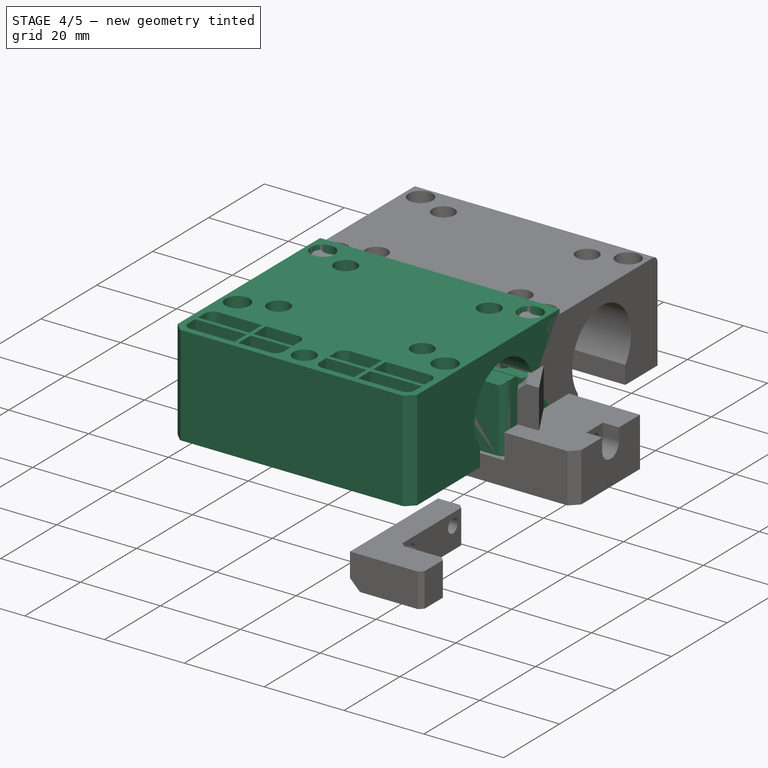
[diagram: stage 4 of 5 — iso view after this stage's code; geometry added in this stage tinted green]
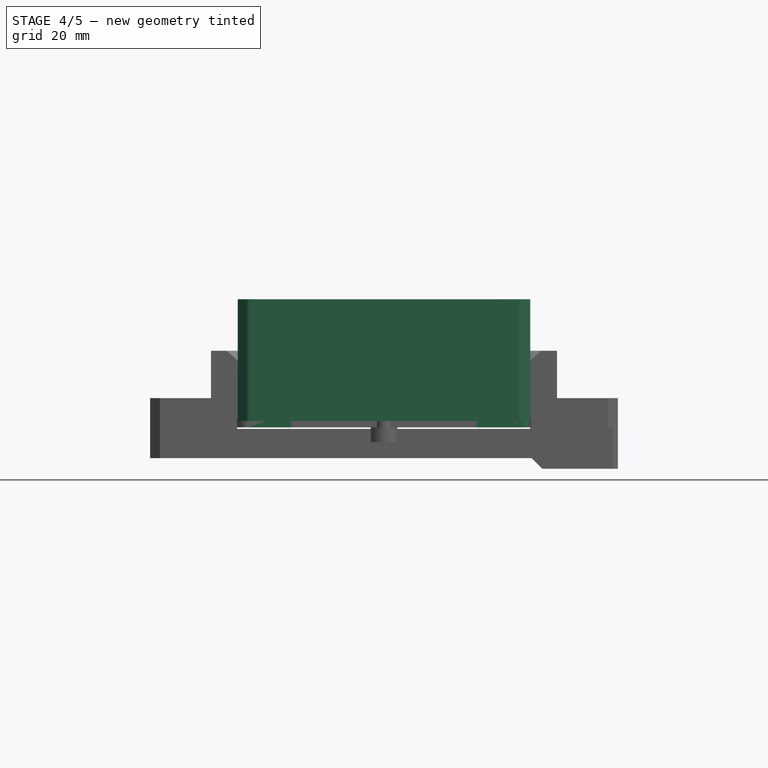
[diagram: stage 4 of 5 — front view after this stage's code; geometry added in this stage tinted green]
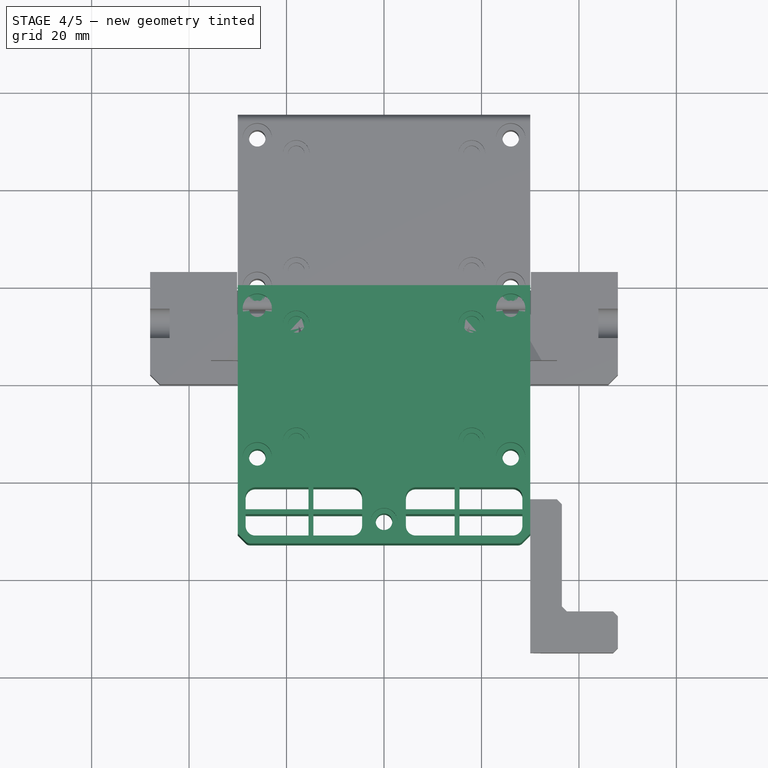
[diagram: stage 4 of 5 — top view after this stage's code; geometry added in this stage tinted green]
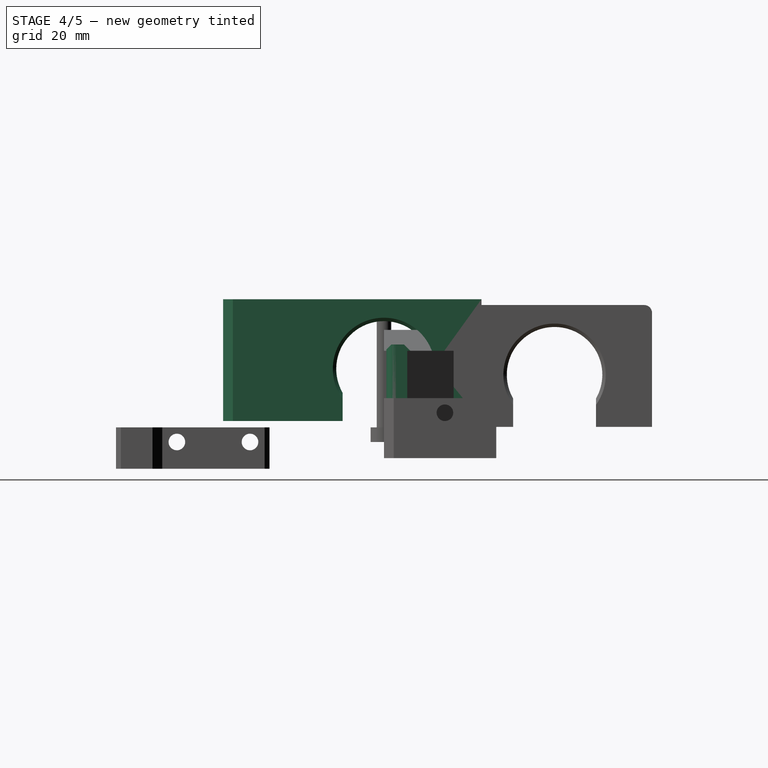
[diagram: stage 4 of 5 — right view after this stage's code; geometry added in this stage tinted green]
FEATURE [PartDesign::Fillet] Fillet004
  Base = -> Pocket029 [Edge123,Edge126]
  BaseFeature = -> Pocket029
  Radius = 2
  Refine = true
  SupportTransform = false
  Suppressed = false
  UseAllEdges = false
FEATURE [Sketcher::SketchObject] Sketch061
  ArcFitTolerance = 1e-06
  AttachmentSupport = -> [Fillet004]
  ExternalGeometry = -> [Binder010]
  FullyConstrained = false
  MakeInternals = false
  MapMode = 5
  Placement = pos=(0,0,17) rot=(0,0,1;0rad)
  sketch-geometry (1):
    g0: Circle CenterX=-10 CenterY=7.5 CenterZ=0 NormalX=0 NormalY=0 NormalZ=1 AngleXU=0 Radius=2.40738
  constraints (1):
    c: Coincident(g0,g-3)
FEATURE [PartDesign::Hole] Hole017
  BaseFeature = -> Fillet004
  CustomThreadClearance = 0
  Depth = 25
  DepthType = 0
  Diameter = 3.4
  DrillForDepth = false
  DrillPoint = 1
  DrillPointAngle = 118
  HoleCutCountersinkAngle = 90
  HoleCutCustomValues = false
  HoleCutDepth = 0
  HoleCutDiameter = 6.1
  HoleCutType = 0
  ModelThread = false
  Profile = -> Sketch061
  Refine = true
  Suppressed = false
  Tapered = false
  TaperedAngle = 90
  ThreadClass = 0
  ThreadDepth = 25
  ThreadDepthType = 0
  ThreadDirection = 0
  ThreadFit = 0
  ThreadSize = 9
  ThreadType = 1
  Threaded = false
  UseCustomThreadClearance = false
FEATURE [Sketcher::SketchObject] Sketch062
  ArcFitTolerance = 1e-06
  AttachmentSupport = -> [Hole017]
  ExternalGeometry = -> [Hole017]
  FullyConstrained = true
  MakeInternals = false
  MapMode = 5
  Placement = pos=(0,0.5,0) rot=(1,0,0;1.5708rad)
  sketch-geometry (5):
    g0: LineSegment StartX=-13.6 StartY=14 StartZ=0 EndX=0 EndY=14 EndZ=0
    g1: LineSegment StartX=-13.6 StartY=14 StartZ=0 EndX=-16.6 EndY=17 EndZ=0
    g2: LineSegment StartX=-16.6 StartY=17 StartZ=0 EndX=0 EndY=17 EndZ=0
    g3: LineSegment [constr] StartX=-13.6 StartY=17 StartZ=0 EndX=-13.6 EndY=14 EndZ=0
    g4: LineSegment StartX=0 StartY=17 StartZ=0 EndX=0 EndY=14 EndZ=0
  constraints (13):
    c: PointOnObject(g0,g-5)
    c: DistanceY(g-1,g0) = 14
    c: Coincident(g1,g0)
    c: Coincident(g2,g1)
    c: Coincident(g2,g-5)
    c: Horizontal(g2)
    c: Coincident(g3,g-4)
    c: Coincident(g3,g0)
    c: Vertical(g3)
    c: Horizontal(g0)
    c: Angle(g1,g2) = 0.785398
    c: Coincident(g4,g2)
    c: Coincident(g4,g0)
FEATURE [PartDesign::Pocket] Pocket030
  BaseFeature = -> Hole017
  Direction = (0,1,-2e-16)
  Length = 14
  Length2 = 5
  Profile = -> Sketch062
  ReferenceAxis = -> Sketch062 [N_Axis]
  Refine = true
  Suppressed = false
  Type = 0
FEATURE [Sketcher::SketchObject] Sketch063
  ArcFitTolerance = 1e-06
  AttachmentSupport = -> [Pocket030]
  ExternalGeometry = -> [Pocket030]
  FullyConstrained = true
  MakeInternals = false
  MapMode = 5
  Placement = pos=(0,0,15.5) rot=(0,0,1;0rad)
  expr: Constraints[3] = <<Dimensions>>.M3Hole
  sketch-geometry (2):
    g0: LineSegment [constr] StartX=-30 StartY=9.8 StartZ=0 EndX=-15.5 EndY=9.8 EndZ=0
    g1: Circle CenterX=-22.75 CenterY=9.8 CenterZ=0 NormalX=0 NormalY=0 NormalZ=1 AngleXU=0 Radius=1.7
  constraints (4):
    c: Symmetric(g-3,g-3,g0)
    c: Symmetric(g-4,g-4,g0)
    c: Symmetric(g0,g0,g1)
    c: Diameter(g1) = 3.4
FEATURE [PartDesign::Hole] Hole018
  BaseFeature = -> Pocket030
  CustomThreadClearance = 0
  Depth = 12.5
  DepthType = 0
  Diameter = 3.2
  DrillForDepth = false
  DrillPoint = 0
  DrillPointAngle = 118
  HoleCutCountersinkAngle = 90
  HoleCutCustomValues = false
  HoleCutDepth = 0
  HoleCutDiameter = 6.1
  HoleCutType = 0
  ModelThread = false
  Profile = -> Sketch063
  Refine = true
  Suppressed = false
  Tapered = false
  TaperedAngle = 90
  ThreadClass = 0
  ThreadDepth = 12.5
  ThreadDepthType = 0
  ThreadDirection = 0
  ThreadFit = 1
  ThreadSize = 9
  ThreadType = 1
  Threaded = false
  UseCustomThreadClearance = false
FEATURE [Sketcher::SketchObject] Sketch064
  ArcFitTolerance = 1e-06
  AttachmentSupport = -> [Hole018]
  ExternalGeometry = -> [Hole018]
  FullyConstrained = true
  MakeInternals = false
  MapMode = 5
  Placement = pos=(0,0,0) rot=(1,0,0;3.14159rad)
  expr: Constraints[19] = <<Dimensions>>.M3NutInsW
  sketch-geometry (7):
    g0: LineSegment StartX=-21.1046 StartY=-6.95 StartZ=0 EndX=-24.3954 EndY=-6.95 EndZ=0
    g1: LineSegment StartX=-24.3954 StartY=-6.95 StartZ=0 EndX=-26.0409 EndY=-9.8 EndZ=0
    g2: LineSegment StartX=-26.0409 StartY=-9.8 StartZ=0 EndX=-24.3954 EndY=-12.65 EndZ=0
    g3: LineSegment StartX=-24.3954 StartY=-12.65 StartZ=0 EndX=-21.1046 EndY=-12.65 EndZ=0
    g4: LineSegment StartX=-21.1046 StartY=-12.65 StartZ=0 EndX=-19.4591 EndY=-9.8 EndZ=0
    g5: LineSegment StartX=-19.4591 StartY=-9.8 StartZ=0 EndX=-21.1046 EndY=-6.95 EndZ=0
    g6: Circle [constr] CenterX=-22.75 CenterY=-9.8 CenterZ=0 NormalX=0 NormalY=0 NormalZ=1 AngleXU=0 Radius=3.2909
  constraints (16):
    c: Coincident(g0,g1)
    c: Coincident(g1,g2)
    c: Coincident(g2,g3)
    c: Coincident(g3,g4)
    c: Coincident(g4,g5)
    c: Coincident(g5,g0)
    c: Equal(g0, g1-g5) x5
    c: PointOnObject(g0,g6)
    c: PointOnObject(g1,g6)
    c: PointOnObject(g2,g6)
    c: PointOnObject(g3,g6)
    c: PointOnObject(g4,g6)
    c: PointOnObject(g5,g6)
    c: Coincident(g6,g-3)
    c: Horizontal(g3)
    c: DistanceY(g2,g0) = 5.7
FEATURE [PartDesign::Pocket] Pocket031
  BaseFeature = -> Hole018
  Direction = (0,0,1)
  Length = 2.75
  Length2 = 5
  Profile = -> Sketch064
  ReferenceAxis = -> Sketch064 [N_Axis]
  Refine = true
  Suppressed = false
  Type = 0
  expr: Length = <<Dimensions>>.M3NutInsT
FEATURE [PartDesign::Mirrored] Mirrored002
  BaseFeature = -> Pocket031
  MirrorPlane = -> Sketch064 [V_Axis]
  Originals = -> [Pocket031]
  Refine = true
  Suppressed = false
  TransformMode = 1
FEATURE [PartDesign::FeatureBase] Clone
  BaseFeature = -> Hole002
  Placement = pos=(-30,0,1.5) rot=(0,0,1;0rad)
  Suppressed = false
FEATURE [Sketcher::SketchObject] Sketch023
  ArcFitTolerance = 1e-06
  AttachmentSupport = -> [Clone]
  ExternalGeometry = -> [Clone]
  FullyConstrained = true
  MakeInternals = false
  MapMode = 5
  Placement = pos=(-30,0,1.5) rot=(0.57735,-0.57735,-0.57735;2.0944rad)
  sketch-geometry (5):
    g0: LineSegment StartX=20 StartY=-0.2 StartZ=0 EndX=33 EndY=-0.2 EndZ=0
    g1: LineSegment StartX=33 StartY=-0.2 StartZ=0 EndX=33 EndY=24.8 EndZ=0
    g2: LineSegment StartX=33 StartY=24.8 StartZ=0 EndX=20 EndY=24.8 EndZ=0
    g3: LineSegment StartX=20 StartY=24.8 StartZ=0 EndX=20 EndY=-0.2 EndZ=0
    g4: LineSegment StartX=20 StartY=24.8 StartZ=0 EndX=20 EndY=24.8 EndZ=0
  constraints (12):
    c: Horizontal(g0)
    c: Coincident(g0,g1)
    c: Vertical(g1)
    c: Coincident(g1,g2)
    c: Horizontal(g2)
    c: DistanceX(g0,g0) = 13
    c: Coincident(g3,g0)
    c: Coincident(g4,g2)
    c: Coincident(g4,g3)
    c: Coincident(g2,g-3)
    c: Coincident(g3,g-4)
    c: Coincident(g0,g-4)
FEATURE [PartDesign::Pad] Pad004  label="ExtendLowerPad"
  BaseFeature = -> Clone
  Direction = (-1,0,0)
  Length = 30
  Length2 = 10
  Placement = pos=(-30,0,1.5) rot=(0,0,1;0rad)
  Profile = -> Sketch023
  ReferenceAxis = -> Sketch023 [N_Axis]
  Refine = true
  Reversed = true
  Suppressed = false
  Type = 0
FEATURE [PartDesign::Chamfer] Chamfer002
  Angle = 45
  Base = -> Pad004 [Edge48]
  BaseFeature = -> Pad004
  ChamferType = 0
  FlipDirection = false
  Placement = pos=(-30,0,1.5) rot=(0,0,1;0rad)
  Refine = true
  Size = 2
  Size2 = 1
  SupportTransform = false
  Suppressed = false
  UseAllEdges = false
FEATURE [PartDesign::Fillet] Fillet
  Base = -> Chamfer002 [Edge7]
  BaseFeature = -> Chamfer002
  Placement = pos=(-30,0,1.5) rot=(0,0,1;0rad)
  Radius = 1
  Refine = true
  SupportTransform = false
  Suppressed = false
  UseAllEdges = false
FEATURE [Sketcher::SketchObject] Sketch024  label="Fan Duct Sketch"
  ArcFitTolerance = 1e-06
  AttachmentSupport = -> [Fillet]
  ExternalGeometry = -> [Fillet]
  FullyConstrained = true
  MakeInternals = false
  MapMode = 5
  Placement = pos=(-30,0,26.3) rot=(0,0,1;0rad)
  sketch-geometry (36):
    g0: LineSegment [constr] StartX=30 StartY=-20 StartZ=0 EndX=0 EndY=-20 EndZ=0
    g1: Circle [constr] CenterX=30 CenterY=-28.5 CenterZ=0 NormalX=0 NormalY=0 NormalZ=1 AngleXU=0 Radius=2.75
    g2: LineSegment StartX=1.6 StartY=-23.5 StartZ=0 EndX=1.6 EndY=-26 EndZ=0
    g3: LineSegment StartX=3.6 StartY=-31.4 StartZ=0 EndX=14.5 EndY=-31.4 EndZ=0
    g4: LineSegment StartX=25.5 StartY=-29.4 StartZ=0 EndX=25.5 EndY=-27 EndZ=0
    g5: LineSegment StartX=3.6 StartY=-21.5 StartZ=0 EndX=14.5 EndY=-21.5 EndZ=0
    g6: ArcOfCircle CenterX=23.5 CenterY=-29.4 CenterZ=0 NormalX=0 NormalY=0 NormalZ=1 AngleXU=0 Radius=2 StartAngle=4.71239 EndAngle=6.28319
    g7: GeomPoint [constr] X=25.5 Y=-31.4 Z=0
    g8: ArcOfCircle CenterX=3.6 CenterY=-23.5 CenterZ=0 NormalX=0 NormalY=0 NormalZ=1 AngleXU=0 Radius=2 StartAngle=1.5708 EndAngle=3.14159
    g9: GeomPoint [constr] X=1.6 Y=-21.5 Z=0
    g10: LineSegment StartX=14.5 StartY=-21.5 StartZ=0 EndX=14.5 EndY=-26 EndZ=0
    g11: LineSegment StartX=15.5 StartY=-21.5 StartZ=0 EndX=15.5 EndY=-26 EndZ=0
    g12: LineSegment StartX=15.5 StartY=-26 StartZ=0 EndX=25.5 EndY=-26 EndZ=0
    g13: LineSegment StartX=15.5 StartY=-27 StartZ=0 EndX=25.5 EndY=-27 EndZ=0
    g14: LineSegment StartX=15.5 StartY=-27 StartZ=0 EndX=15.5 EndY=-31.4 EndZ=0
    g15: LineSegment [constr] StartX=15.5 StartY=-27 StartZ=0 EndX=15.5 EndY=-26 EndZ=0
    g16: LineSegment StartX=15.5 StartY=-21.5 StartZ=0 EndX=23.5 EndY=-21.5 EndZ=0
    g17: LineSegment StartX=15.5 StartY=-31.4 StartZ=0 EndX=23.5 EndY=-31.4 EndZ=0
    g18: LineSegment [constr] StartX=14.5 StartY=-21.5 StartZ=0 EndX=15.5 EndY=-21.5 EndZ=0
    g19: LineSegment [constr] StartX=14.5 StartY=-31.4 StartZ=0 EndX=15.5 EndY=-31.4 EndZ=0
    g20: LineSegment [constr] StartX=15 StartY=-20 StartZ=0 EndX=15 EndY=-33 EndZ=0
    g21: LineSegment [constr] StartX=30 StartY=-20 StartZ=0 EndX=30 EndY=-33 EndZ=0
    g22: LineSegment [constr] StartX=30 StartY=-26.5 StartZ=0 EndX=0 EndY=-26.5 EndZ=0
    g23: LineSegment [constr] StartX=25.5 StartY=-28.5 StartZ=0 EndX=30 EndY=-28.5 EndZ=0
    g24: LineSegment StartX=14.5 StartY=-26 StartZ=0 EndX=1.6 EndY=-26 EndZ=0
    g25: LineSegment StartX=14.5 StartY=-27 StartZ=0 EndX=1.6 EndY=-27 EndZ=0
    g26: LineSegment StartX=14.5 StartY=-27 StartZ=0 EndX=14.5 EndY=-31.4 EndZ=0
    g27: LineSegment [constr] StartX=14.5 StartY=-26 StartZ=0 EndX=15.5 EndY=-26 EndZ=0
    g28: LineSegment StartX=1.6 StartY=-27 StartZ=0 EndX=1.6 EndY=-29.4 EndZ=0
    g29: LineSegment [constr] StartX=1.6 StartY=-26 StartZ=0 EndX=1.6 EndY=-27 EndZ=0
    g30: LineSegment [constr] StartX=25.5 StartY=-27 StartZ=0 EndX=25.5 EndY=-26 EndZ=0
    g31: LineSegment StartX=25.5 StartY=-23.5 StartZ=0 EndX=25.5 EndY=-26 EndZ=0
    g32: ArcOfCircle CenterX=23.5 CenterY=-23.5 CenterZ=0 NormalX=0 NormalY=0 NormalZ=1 AngleXU=0 Radius=2 StartAngle=-9e-16 EndAngle=1.5708
    g33: GeomPoint [constr] X=25.5 Y=-21.5 Z=0
    g34: ArcOfCircle CenterX=3.6 CenterY=-29.4 CenterZ=0 NormalX=0 NormalY=0 NormalZ=1 AngleXU=0 Radius=2 StartAngle=3.14159 EndAngle=4.71239
    g35: GeomPoint [constr] X=1.6 Y=-31.4 Z=0
  constraints (95):
    c: PointOnObject(g0,g-3)
    c: PointOnObject(g0,g-7)
    c: Horizontal(g0)
    c: DistanceY(g-4,g0) = 13
    c: Diameter(g1) = 5.5
    c: PointOnObject(g1,g-3)
    c: DistanceY(g-4,g1) = 4.5
    c: Vertical(g2)
    c: Horizontal(g3)
    c: Horizontal(g5)
    c: Vertical(g4)
    c: DistanceX(g0,g9) = 1.6
    c: DistanceY(g9,g0) = 1.5
    c: PointOnObject(g7,g17)
    c: PointOnObject(g7,g4)
    c: Tangent(g4,g6) = -1.5708
    c: PointOnObject(g9,g2)
    c: PointOnObject(g9,g5)
    c: Tangent(g2,g8) = -1.5708
    c: Tangent(g5,g8) = 1.5708
    c: DistanceY(g-4,g17) = 1.6
    c: Radius(g8) = 2
    c: Radius(g6) = 2
    c: Vertical(g10)
    c: PointOnObject(g11,g16)
    c: PointOnObject(g14,g17)
    c: Vertical(g11)
    c: DistanceX(g10,g11) = 1
    c: Horizontal(g12)
    c: PointOnObject(g13,g14)
    c: Coincident(g13,g4)
    c: Horizontal(g13)
    c: PointOnObject(g14,g13)
    c: Coincident(g12,g11)
    c: Coincident(g15,g13)
    c: Coincident(g15,g11)
    c: Vertical(g15)
    c: Perpendicular(g13,g14)
    c: DistanceY(g14,g11) = 1
    c: Coincident(g5,g10)
    c: PointOnObject(g16,g11)
    c: Coincident(g3,g26)
    c: PointOnObject(g17,g14)
    c: Coincident(g18,g5)
    c: Coincident(g18,g11)
    c: Horizontal(g18)
    c: Coincident(g19,g3)
    c: Coincident(g19,g14)
    c: Horizontal(g19)
    c: Perpendicular(g17,g14)
    c: Symmetric(g0,g0,g20)
    c: PointOnObject(g20,g-4)
    c: Symmetric(g5,g16,g20)
    c: Tangent(g17,g6) = -1.5708
    c: Coincident(g21,g0)
    c: Coincident(g21,g-4)
    c: Symmetric(g21,g21,g22)
    c: PointOnObject(g22,g-7)
    c: Symmetric(g11,g14,g22)
    c: PointOnObject(g23,g4)
    c: Coincident(g23,g1)
    c: Horizontal(g23)
    c: DistanceX(g23,g23) = 4.5
    c: Horizontal(g24)
    c: PointOnObject(g25,g28)
    c: Horizontal(g25)
    c: Coincident(g10,g24)
    c: Coincident(g26,g25)
    c: Symmetric(g25,g10,g22)
    c: Coincident(g27,g10)
    c: Coincident(g27,g11)
    c: Horizontal(g27)
    c: Perpendicular(g26,g3)
    c: Coincident(g2,g24)
    c: PointOnObject(g28,g25)
    c: Perpendicular(g25,g28)
    c: Coincident(g29,g2)
    c: Coincident(g29,g25)
    c: Vertical(g29)
    c: Coincident(g30,g4)
    c: Coincident(g30,g12)
    c: Vertical(g30)
    c: Horizontal(g16)
    c: Coincident(g31,g12)
    c: Vertical(g31)
    c: PointOnObject(g33,g31)
    c: PointOnObject(g33,g16)
    c: Tangent(g31,g32) = 1.5708
    c: Tangent(g16,g32) = 1.5708
    c: Radius(g32) = 2
    c: PointOnObject(g35,g3)
    c: PointOnObject(g35,g28)
    c: Tangent(g3,g34) = -1.5708
    c: Tangent(g28,g34) = -1.5708
    c: Radius(g34) = 2
FEATURE [PartDesign::Pocket] Pocket009  label="Fan Duct Pocket"
  BaseFeature = -> Fillet
  Direction = (0,0,-1)
  Length = 5
  Length2 = 5
  Placement = pos=(-30,0,1.5) rot=(0,0,1;0rad)
  Profile = -> Sketch024
  ReferenceAxis = -> Sketch024 [N_Axis]
  Refine = true
  Suppressed = false
  Type = 1
FEATURE [PartDesign::Mirrored] Mirrored001
  BaseFeature = -> Pocket009
  MirrorPlane = -> YZ_Plane003
  Placement = pos=(-30,0,1.5) rot=(0,0,1;0rad)
  Refine = true
  Suppressed = false
  TransformMode = 1
FEATURE [Sketcher::SketchObject] Sketch025  label="Fan Duct Hole"
  ArcFitTolerance = 1e-06
  AttachmentSupport = -> [Mirrored001]
  FullyConstrained = true
  MakeInternals = false
  MapMode = 5
  Placement = pos=(-30,0,26.3) rot=(0,0,1;0rad)
  expr: Constraints[4] = <<Dimensions>>.M3Hole
  sketch-geometry (2):
    g0: LineSegment [constr] StartX=30 StartY=20 StartZ=0 EndX=30 EndY=-33 EndZ=0
    g1: Circle CenterX=30 CenterY=-28.5 CenterZ=0 NormalX=0 NormalY=0 NormalZ=1 AngleXU=0 Radius=1.7
  constraints (5):
    c: Symmetric(g-3,g-3,g0)
    c: Symmetric(g-4,g-4,g0)
    c: PointOnObject(g1,g0)
    c: DistanceY(g0,g1) = 4.5
    c: Diameter(g1) = 3.4
FEATURE [PartDesign::Hole] Hole010  label="Thru Hole"
  BaseFeature = -> Mirrored001
  CustomThreadClearance = 0
  Depth = 30
  DepthType = 0
  Diameter = 3.4
  DrillForDepth = false
  DrillPoint = 1
  DrillPointAngle = 118
  HoleCutCountersinkAngle = 90
  HoleCutCustomValues = false
  HoleCutDepth = 0
  HoleCutDiameter = 6.1
  HoleCutType = 0
  ModelThread = false
  Placement = pos=(-30,0,1.5) rot=(0,0,1;0rad)
  Profile = -> Sketch025
  Refine = true
  Suppressed = false
  Tapered = false
  TaperedAngle = 90
  ThreadClass = 0
  ThreadDepth = 30
  ThreadDepthType = 0
  ThreadDirection = 0
  ThreadFit = 0
  ThreadSize = 9
  ThreadType = 1
  Threaded = false
  UseCustomThreadClearance = false
FEATURE [PartDesign::Hole] Hole011  label="Insert Hole Front"
  BaseFeature = -> Hole010
  CustomThreadClearance = 0
  Depth = 4
  DepthType = 0
  Diameter = 5.5
  DrillForDepth = false
  DrillPoint = 0
  DrillPointAngle = 118
  HoleCutCountersinkAngle = 90
  HoleCutCustomValues = false
  HoleCutDepth = 0
  HoleCutDiameter = 6.1
  HoleCutType = 0
  ModelThread = false
  Placement = pos=(-30,0,1.5) rot=(0,0,1;0rad)
  Profile = -> Hole010 [Edge37]
  Refine = true
  Reversed = true
  Suppressed = false
  Tapered = false
  TaperedAngle = 90
  ThreadClass = 0
  ThreadDepth = 4
  ThreadDepthType = 0
  ThreadDirection = 0
  ThreadFit = 0
  ThreadSize = 0
  ThreadType = 0
  Threaded = false
  UseCustomThreadClearance = false
  expr: Depth = <<Dimensions>>.M3HeatSetDepth
  expr: Diameter = <<Dimensions>>.M3HeatSet
FEATURE [PartDesign::Hole] Hole012  label="Insert Hole Back"
  BaseFeature = -> Hole011
  CustomThreadClearance = 0
  Depth = 4
  DepthType = 0
  Diameter = 5.5
  DrillForDepth = false
  DrillPoint = 0
  DrillPointAngle = 118
  HoleCutCountersinkAngle = 90
  HoleCutCustomValues = false
  HoleCutDepth = 0
  HoleCutDiameter = 6.1
  HoleCutType = 0
  ModelThread = false
  Placement = pos=(-30,0,1.5) rot=(0,0,1;0rad)
  Profile = -> Hole011 [Edge86]
  Refine = true
  Suppressed = false
  Tapered = false
  TaperedAngle = 90
  ThreadClass = 0
  ThreadDepth = 4
  ThreadDepthType = 0
  ThreadDirection = 0
  ThreadFit = 0
  ThreadSize = 0
  ThreadType = 0
  Threaded = false
  UseCustomThreadClearance = false
  expr: Depth = <<Dimensions>>.M3HeatSetDepth
  expr: Diameter = <<Dimensions>>.M3HeatSet
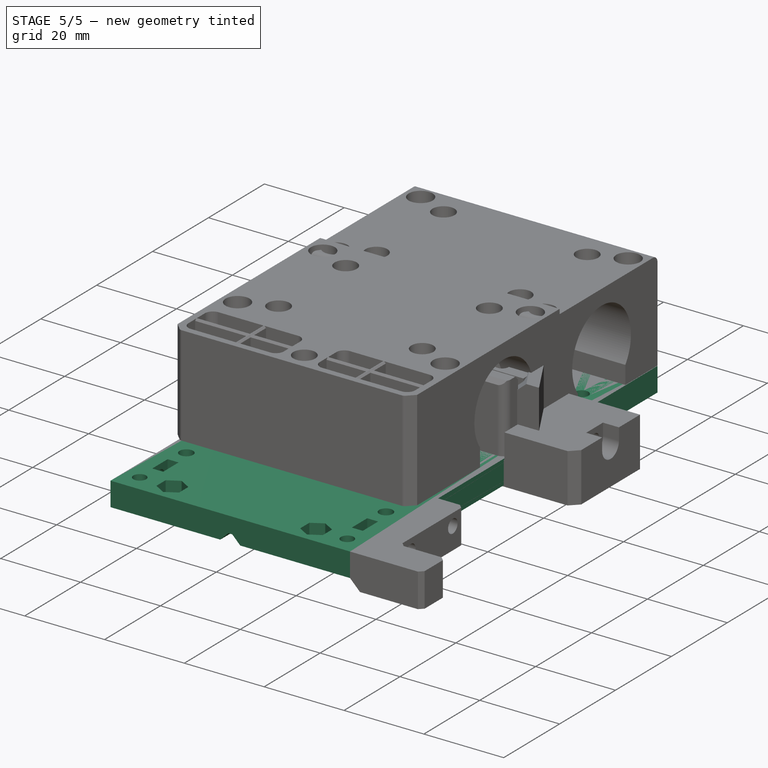
[diagram: stage 5 of 5 — iso view after this stage's code; geometry added in this stage tinted green]
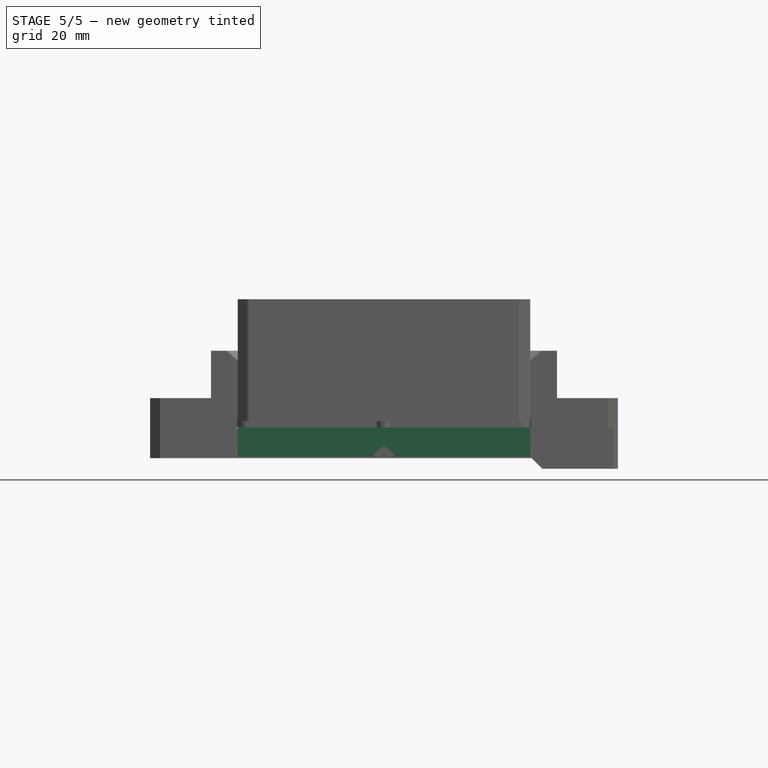
[diagram: stage 5 of 5 — front view after this stage's code; geometry added in this stage tinted green]
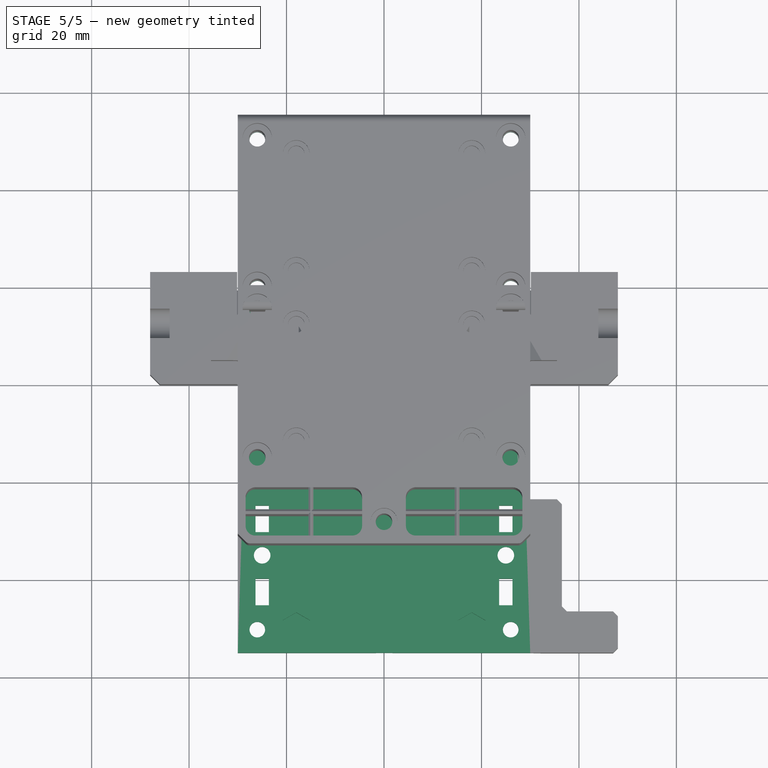
[diagram: stage 5 of 5 — top view after this stage's code; geometry added in this stage tinted green]
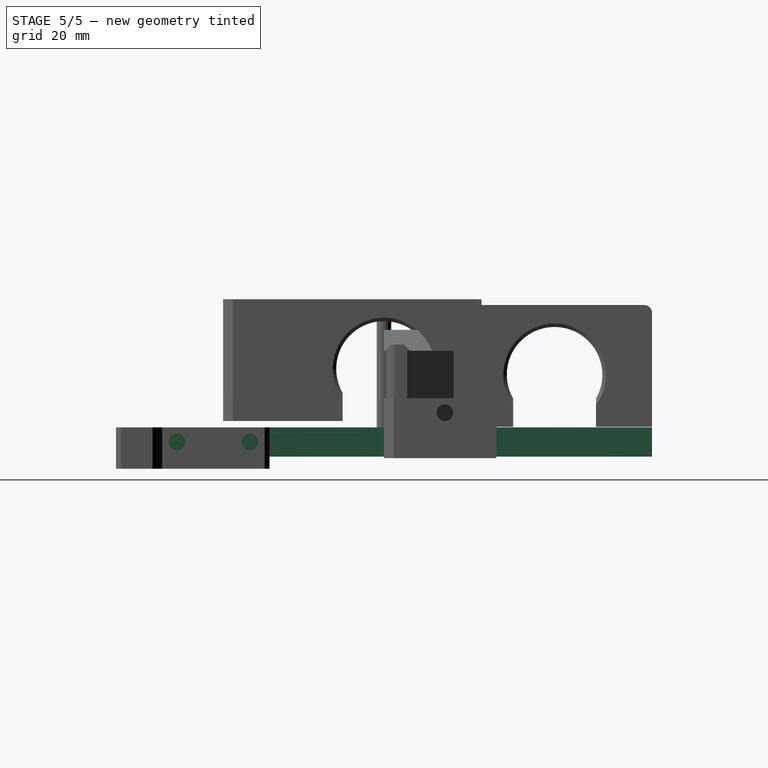
[diagram: stage 5 of 5 — right view after this stage's code; geometry added in this stage tinted green]
FEATURE [PartDesign::SubShapeBinder] Binder001  label="NewTazBase BearingBlockBinder "
  BindCopyOnChange = 0
  BindMode = 0
  ClaimChildren = false
  Context = -> Body [Binder001.]
  Fuse = false
  MakeFace = true
  OffsetFill = false
  OffsetIntersection = false
  OffsetJoinType = 0
  OffsetOpenResult = false
  PartialLoad = false
  Refine = true
  Relative = true
  Support = -> [Sketch001]
  _Version = 2
FEATURE [Spreadsheet::Sheet] Spreadsheet  label="Dimensions"
  cells = A1='M3 Nut Width; B1=5.5; A2='M3 Nut Insert Width; B2(M3NutInsW)==B1 + 0.2; A3='M3 Nut Thickness; B3=2.43; A4='M3 Nut Insert Thick; B4(M3NutInsT)==2.75 mm; A5='M3 Hole; B5(M3Hole)=3.4; A6='M3 Counter Sink Dia; B6(M3CsinkDia)=6; A7='M3 Heat Set Insert; B7(M3HeatSet)=5.5; A8='M3 Heat Set Depth; B8(M3HeatSetDepth)=4; A9='M3 Cap Width; B9(M3Cap)=5.9; A10='M5 Heat Set Insert; B10(M5HeatSet)=7; A11='M5 Heat Set Depth; B11(M5HeatSetDepth)=9.5
FEATURE [PartDesign::SubShapeBinder] Binder002  label="Base Binder"
  BindCopyOnChange = 0
  BindMode = 0
  ClaimChildren = false
  Context = -> Body001 [Binder002.]
  Fuse = false
  MakeFace = true
  OffsetFill = false
  OffsetIntersection = false
  OffsetJoinType = 0
  OffsetOpenResult = false
  PartialLoad = false
  Refine = true
  Relative = true
  Support = -> [Sketch001]
  _Version = 2
FEATURE [Sketcher::SketchObject] Sketch008  label="Base Sketch"
  ArcFitTolerance = 1e-06
  AttachmentSupport = -> [XY_Plane001]
  ExternalGeometry = -> [Binder002]
  FullyConstrained = true
  MakeInternals = false
  MapMode = 5
  sketch-geometry (4):
    g0: LineSegment StartX=-30 StartY=-55 StartZ=0 EndX=30 EndY=-55 EndZ=0
    g1: LineSegment StartX=30 StartY=-55 StartZ=0 EndX=30 EndY=55 EndZ=0
    g2: LineSegment StartX=30 StartY=55 StartZ=0 EndX=-30 EndY=55 EndZ=0
    g3: LineSegment StartX=-30 StartY=55 StartZ=0 EndX=-30 EndY=-55 EndZ=0
  constraints (10):
    c: Coincident(g0,g1)
    c: Coincident(g1,g2)
    c: Coincident(g2,g3)
    c: Coincident(g3,g0)
    c: Horizontal(g2)
    c: Vertical(g1)
    c: Vertical(g3)
    c: Coincident(g0,g-3)
    c: PointOnObject(g1,g-4)
    c: Coincident(g0,g-3)
FEATURE [PartDesign::Pad] Pad003  label="Base Plate Pad"
  Direction = (0,0,1)
  Length = 6
  Length2 = 10
  Profile = -> Sketch008
  ReferenceAxis = -> Sketch008 [N_Axis]
  Refine = true
  Reversed = true
  Suppressed = false
  Type = 0
FEATURE [Sketcher::SketchObject] Sketch009  label="Ventilation Sketch"
  ArcFitTolerance = 1e-06
  AttachmentSupport = -> [Pad003]
  ExternalGeometry = -> [Pad003]
  FullyConstrained = true
  MakeInternals = false
  MapMode = 5
  sketch-geometry (61):
    g0: LineSegment [constr] StartX=-30 StartY=0 StartZ=0 EndX=30 EndY=-1.7e-15 EndZ=0
    g1: LineSegment [constr] StartX=-30 StartY=-15 StartZ=0 EndX=30 EndY=-15 EndZ=0
    g2: LineSegment StartX=-5 StartY=-6.19615 StartZ=0 EndX=-5 EndY=-2.73205 EndZ=0
    g3: LineSegment StartX=-5 StartY=-2.73205 StartZ=0 EndX=-8 EndY=-1 EndZ=0
    g4: LineSegment StartX=-8 StartY=-1 StartZ=0 EndX=-11 EndY=-2.73205 EndZ=0
    g5: LineSegment StartX=-11 StartY=-2.73205 StartZ=0 EndX=-11 EndY=-6.19615 EndZ=0
    g6: LineSegment StartX=-11 StartY=-6.19615 StartZ=0 EndX=-8 EndY=-7.9282 EndZ=0
    g7: LineSegment StartX=-8 StartY=-7.9282 StartZ=0 EndX=-5 EndY=-6.19615 EndZ=0
    g8: Circle [constr] CenterX=-8 CenterY=-4.4641 CenterZ=0 NormalX=0 NormalY=0 NormalZ=1 AngleXU=0 Radius=3.4641
    g9: LineSegment StartX=3 StartY=-6.19615 StartZ=0 EndX=3 EndY=-2.73205 EndZ=0
    g10: LineSegment StartX=3 StartY=-2.73205 StartZ=0 EndX=0 EndY=-1 EndZ=0
    g11: LineSegment StartX=0 StartY=-1 StartZ=0 EndX=-3 EndY=-2.73205 EndZ=0
    g12: LineSegment StartX=-3 StartY=-2.73205 StartZ=0 EndX=-3 EndY=-6.19615 EndZ=0
    g13: LineSegment StartX=-3 StartY=-6.19615 StartZ=0 EndX=4e-16 EndY=-7.9282 EndZ=0
    g14: LineSegment StartX=4e-16 StartY=-7.9282 StartZ=0 EndX=3 EndY=-6.19615 EndZ=0
    g15: Circle [constr] CenterX=0 CenterY=-4.4641 CenterZ=0 NormalX=0 NormalY=0 NormalZ=1 AngleXU=0 Radius=3.4641
    g16: LineSegment StartX=-4 StartY=-14 StartZ=0 EndX=-1.5 EndY=-12.5566 EndZ=0
    g17: LineSegment StartX=-1.5 StartY=-12.5566 StartZ=0 EndX=-1.5 EndY=-9.66987 EndZ=0
    g18: LineSegment StartX=-1.5 StartY=-9.66987 StartZ=0 EndX=-4 EndY=-8.2265 EndZ=0
    g19: LineSegment StartX=-4 StartY=-8.2265 StartZ=0 EndX=-6.5 EndY=-9.66987 EndZ=0
    g20: LineSegment StartX=-6.5 StartY=-9.66987 StartZ=0 EndX=-6.5 EndY=-12.5566 EndZ=0
    g21: LineSegment StartX=-6.5 StartY=-12.5566 StartZ=0 EndX=-4 EndY=-14 EndZ=0
    g22: Circle [constr] CenterX=-4 CenterY=-11.1132 CenterZ=0 NormalX=0 NormalY=0 NormalZ=1 AngleXU=0 Radius=2.88675
    g23: LineSegment StartX=5 StartY=-2.73205 StartZ=0 EndX=5 EndY=-6.19615 EndZ=0
    g24: LineSegment StartX=5 StartY=-6.19615 StartZ=0 EndX=8 EndY=-7.9282 EndZ=0
    g25: LineSegment StartX=8 StartY=-7.9282 StartZ=0 EndX=11 EndY=-6.19615 EndZ=0
    g26: LineSegment StartX=11 StartY=-6.19615 StartZ=0 EndX=11 EndY=-2.73205 EndZ=0
    g27: LineSegment StartX=11 StartY=-2.73205 StartZ=0 EndX=8 EndY=-1 EndZ=0
    g28: LineSegment StartX=8 StartY=-1 StartZ=0 EndX=5 EndY=-2.73205 EndZ=0
    g29: Circle [constr] CenterX=8 CenterY=-4.4641 CenterZ=0 NormalX=0 NormalY=0 NormalZ=1 AngleXU=0 Radius=3.4641
    g30: LineSegment StartX=4 StartY=-8.2265 StartZ=0 EndX=1.5 EndY=-9.66987 EndZ=0
    g31: LineSegment StartX=1.5 StartY=-9.66987 StartZ=0 EndX=1.5 EndY=-12.5566 EndZ=0
    g32: LineSegment StartX=1.5 StartY=-12.5566 StartZ=0 EndX=4 EndY=-14 EndZ=0
    g33: LineSegment StartX=4 StartY=-14 StartZ=0 EndX=6.5 EndY=-12.5566 EndZ=0
    g34: LineSegment StartX=6.5 StartY=-12.5566 StartZ=0 EndX=6.5 EndY=-9.66987 EndZ=0
    g35: LineSegment StartX=6.5 StartY=-9.66987 StartZ=0 EndX=4 EndY=-8.2265 EndZ=0
    g36: Circle [constr] CenterX=4 CenterY=-11.1132 CenterZ=0 NormalX=0 NormalY=0 NormalZ=1 AngleXU=0 Radius=2.88675
    g37: LineSegment [constr] StartX=9.5 StartY=-9.66987 StartZ=0 EndX=9.5 EndY=-12.5566 EndZ=0
    g38: LineSegment [constr] StartX=9.5 StartY=-12.5566 StartZ=0 EndX=12 EndY=-14 EndZ=0
    g39: LineSegment [constr] StartX=12 StartY=-14 StartZ=0 EndX=14.5 EndY=-12.5566 EndZ=0
    g40: LineSegment [constr] StartX=14.5 StartY=-12.5566 StartZ=0 EndX=14.5 EndY=-9.66987 EndZ=0
    g41: LineSegment [constr] StartX=14.5 StartY=-9.66987 StartZ=0 EndX=12 EndY=-8.2265 EndZ=0
    g42: LineSegment [constr] StartX=12 StartY=-8.2265 StartZ=0 EndX=9.5 EndY=-9.66987 EndZ=0
    g43: Circle [constr] CenterX=12 CenterY=-11.1132 CenterZ=0 NormalX=0 NormalY=0 NormalZ=1 AngleXU=0 Radius=2.88675
    g44: LineSegment [constr] StartX=-9.5 StartY=-9.66987 StartZ=0 EndX=-12 EndY=-8.2265 EndZ=0
    g45: LineSegment [constr] StartX=-12 StartY=-8.2265 StartZ=0 EndX=-14.5 EndY=-9.66987 EndZ=0
    g46: LineSegment [constr] StartX=-14.5 StartY=-9.66987 StartZ=0 EndX=-14.5 EndY=-12.5566 EndZ=0
    g47: LineSegment [constr] StartX=-14.5 StartY=-12.5566 StartZ=0 EndX=-12 EndY=-14 EndZ=0
    g48: LineSegment [constr] StartX=-12 StartY=-14 StartZ=0 EndX=-9.5 EndY=-12.5566 EndZ=0
    g49: LineSegment [constr] StartX=-9.5 StartY=-12.5566 StartZ=0 EndX=-9.5 EndY=-9.66987 EndZ=0
    g50: Circle [constr] CenterX=-12 CenterY=-11.1132 CenterZ=0 NormalX=0 NormalY=0 NormalZ=1 AngleXU=0 Radius=2.88675
    g51: LineSegment [constr] StartX=-8 StartY=-4.4641 StartZ=0 EndX=0 EndY=-4.4641 EndZ=0
    g52: LineSegment [constr] StartX=0 StartY=-4.4641 StartZ=0 EndX=8 EndY=-4.4641 EndZ=0
    g53: LineSegment [constr] StartX=-12 StartY=-11.1132 StartZ=0 EndX=-4 EndY=-11.1132 EndZ=0
    g54: LineSegment [constr] StartX=-4 StartY=-11.1132 StartZ=0 EndX=4 EndY=-11.1132 EndZ=0
    g55: LineSegment [constr] StartX=4 StartY=-11.1132 StartZ=0 EndX=12 EndY=-11.1132 EndZ=0
    g56: LineSegment [constr] StartX=0 StartY=0 StartZ=0 EndX=0 EndY=-4.4641 EndZ=0
    g57: LineSegment [constr] StartX=-12 StartY=-8.2265 StartZ=0 EndX=-12 EndY=-14 EndZ=0
    g58: LineSegment [constr] StartX=12 StartY=-8.2265 StartZ=0 EndX=12 EndY=-14 EndZ=0
    g59: LineSegment [constr] StartX=-8 StartY=-7.9282 StartZ=0 EndX=-8 EndY=-11.1132 EndZ=0
    g60: LineSegment [constr] StartX=8 StartY=-7.9282 StartZ=0 EndX=8 EndY=-11.1132 EndZ=0
  constraints (145):
    c: Symmetric(g-3,g-3,g0)
    c: Symmetric(g-4,g-4,g0)
    c: PointOnObject(g1,g-3)
    c: PointOnObject(g1,g-4)
    c: Horizontal(g1)
    c: DistanceY(g1,g0) = 15
    c: Coincident(g2,g3)
    c: Coincident(g3,g4)
    c: Coincident(g4,g5)
    c: Coincident(g5,g6)
    c: Coincident(g6,g7)
    c: Coincident(g7,g2)
    c: Equal(g2, g3-g7) x5
    c: PointOnObject(g2,g8)
    c: PointOnObject(g3,g8)
    c: PointOnObject(g4,g8)
    c: PointOnObject(g5,g8)
    c: PointOnObject(g6,g8)
    c: PointOnObject(g7,g8)
    c: Coincident(g9,g10)
    c: Coincident(g10,g11)
    c: Coincident(g11,g12)
    c: Coincident(g12,g13)
    c: Coincident(g13,g14)
    c: Coincident(g14,g9)
    c: Equal(g9, g10-g14) x5
    c: PointOnObject(g9,g15)
    c: PointOnObject(g10,g15)
    c: PointOnObject(g11,g15)
    c: PointOnObject(g12,g15)
    c: PointOnObject(g13,g15)
    c: PointOnObject(g14,g15)
    c: Coincident(g16,g17)
    c: Coincident(g17,g18)
    c: Coincident(g18,g19)
    c: Coincident(g19,g20)
    c: Coincident(g20,g21)
    c: Coincident(g21,g16)
    c: Equal(g16, g17-g21) x5
    c: PointOnObject(g16,g22)
    c: PointOnObject(g17,g22)
    c: PointOnObject(g18,g22)
    c: PointOnObject(g19,g22)
    c: PointOnObject(g20,g22)
    c: PointOnObject(g21,g22)
    c: Coincident(g23,g24)
    c: Coincident(g24,g25)
    c: Coincident(g25,g26)
    c: Coincident(g26,g27)
    c: Coincident(g27,g28)
    c: Coincident(g28,g23)
    c: Equal(g23, g24-g28) x5
    c: PointOnObject(g23,g29)
    c: PointOnObject(g24,g29)
    c: PointOnObject(g25,g29)
    c: PointOnObject(g26,g29)
    c: PointOnObject(g27,g29)
    c: PointOnObject(g28,g29)
    c: Coincident(g30,g31)
    c: Coincident(g31,g32)
    c: Coincident(g32,g33)
    c: Coincident(g33,g34)
    c: Coincident(g34,g35)
    c: Coincident(g35,g30)
    c: Equal(g30, g31-g35) x5
    c: PointOnObject(g30,g36)
    c: PointOnObject(g31,g36)
    c: PointOnObject(g32,g36)
    c: PointOnObject(g33,g36)
    c: PointOnObject(g34,g36)
    c: PointOnObject(g35,g36)
    c: Coincident(g37,g38)
    c: Coincident(g38,g39)
    c: Coincident(g39,g40)
    c: Coincident(g40,g41)
    c: Coincident(g41,g42)
    c: Coincident(g42,g37)
    c: Equal(g37, g38-g42) x5
    c: PointOnObject(g37,g43)
    c: PointOnObject(g38,g43)
    c: PointOnObject(g39,g43)
    c: PointOnObject(g40,g43)
    c: PointOnObject(g41,g43)
    c: PointOnObject(g42,g43)
    c: Coincident(g44,g45)
    c: Coincident(g45,g46)
    c: Coincident(g46,g47)
    c: Coincident(g47,g48)
    c: Coincident(g48,g49)
    c: Coincident(g49,g44)
    c: Equal(g44, g45-g49) x5
    c: PointOnObject(g44,g50)
    c: PointOnObject(g45,g50)
    c: PointOnObject(g46,g50)
    c: PointOnObject(g47,g50)
    c: PointOnObject(g48,g50)
    c: PointOnObject(g49,g50)
    c: DistanceX(g4,g2) = 6
    c: Vertical(g5)
    c: Vertical(g12)
    c: Equal(g3,g10)
    c: Equal(g10,g27)
    c: Vertical(g23)
    c: Coincident(g51,g8)
    c: Coincident(g51,g15)
    c: Horizontal(g51)
    c: Coincident(g52,g15)
    c: Coincident(g52,g29)
    c: Horizontal(g52)
    c: Coincident(g53,g50)
    c: Coincident(g53,g22)
    c: Coincident(g54,g22)
    c: Coincident(g54,g36)
    c: Horizontal(g54)
    c: Coincident(g55,g36)
    c: Coincident(g55,g43)
    c: Equal(g51,g52)
    c: Horizontal(g53)
    c: Horizontal(g55)
    c: Vertical(g37)
    c: DistanceX(g46,g48) = 5
    c: Equal(g44,g19)
    c: Vertical(g20)
    c: Equal(g18,g35)
    c: Equal(g41,g35)
    c: Equal(g53,g54)
    c: Equal(g54,g55)
    c: Coincident(g56,g15)
    c: Vertical(g56)
    c: Vertical(g49)
    c: Coincident(g57,g44)
    c: Coincident(g57,g47)
    c: Coincident(g58,g41)
    c: Coincident(g58,g38)
    c: Coincident(g59,g6)
    c: Symmetric(g53,g53,g59)
    c: Vertical(g59)
    c: Coincident(g60,g24)
    c: Symmetric(g55,g55,g60)
    c: Vertical(g60)
    c: DistanceY(g27) = -1
    c: Vertical(g31)
    c: Coincident(g56,g-1)
    c: DistanceX(g47,g38) = 24
    c: DistanceY(g1,g47) = 1
FEATURE [PartDesign::Pocket] Pocket001  label="Vent Holes"
  BaseFeature = -> Pad003
  Direction = (0,0,-1)
  Length = 5
  Length2 = 5
  Profile = -> Sketch009
  ReferenceAxis = -> Sketch009 [N_Axis]
  Refine = true
  Suppressed = false
  Type = 1
FEATURE [Sketcher::SketchObject] Sketch010  label="Vent Holes Side Profile"
  ArcFitTolerance = 1e-06
  AttachmentSupport = -> [Pocket001]
  ExternalGeometry = -> [Pocket001]
  FullyConstrained = true
  MakeInternals = false
  MapMode = 5
  Placement = pos=(0,-55,0) rot=(1,0,0;1.5708rad)
  sketch-geometry (20):
    g0: LineSegment StartX=-8 StartY=-4 StartZ=0 EndX=8 EndY=-4 EndZ=0
    g1-g4: Circle [constr] x4 (B-spline internal-alignment scaffolding for g5; pole/knot coordinates omitted)
    g5: BSplineCurve PolesCount=4 KnotsCount=2 Degree=3 IsPeriodic=0
    g6: GeomPoint [constr] X=-16 Y=-6 Z=0
    g7: GeomPoint [constr] X=-8 Y=-4 Z=0
    g8: LineSegment [constr] StartX=-12 StartY=-6 StartZ=0 EndX=-12 EndY=-4 EndZ=0
    g9-g12: Circle [constr] x4 (B-spline internal-alignment scaffolding for g13; pole/knot coordinates omitted)
    g13: BSplineCurve PolesCount=4 KnotsCount=2 Degree=3 IsPeriodic=0
    g14: GeomPoint [constr] X=8 Y=-4 Z=0
    g15: GeomPoint [constr] X=16 Y=-6 Z=0
    g16: LineSegment [constr] StartX=12 StartY=-6 StartZ=0 EndX=12 EndY=-4 EndZ=0
    g17: LineSegment StartX=-16 StartY=-6 StartZ=0 EndX=16 EndY=-6 EndZ=0
    g18: LineSegment [constr] StartX=-8 StartY=-4 StartZ=0 EndX=-12 EndY=-4 EndZ=0
    g19: LineSegment [constr] StartX=12 StartY=-4 StartZ=0 EndX=8 EndY=-4 EndZ=0
  constraints (39):
    c: Symmetric(g0,g0,g-2)
    c: Weight(g1) = 1
    c: Equal(g1,g2)
    c: Equal(g1,g3)
    c: Equal(g1,g4)
    c: InternalAlignment(g1-g4 -> g5) x4
    c: InternalAlignment(g6,g5)
    c: InternalAlignment(g7,g5)
    c: Coincident(g4,g0)
    c: Coincident(g8,g2)
    c: Coincident(g8,g3)
    c: Vertical(g8)
    c: DistanceX(g5,g5) = 8
    c: DistanceX(g5,g2) = 4
    c: Weight(g9) = 1
    c: Equal(g9,g10)
    c: Equal(g9,g11)
    c: Equal(g9,g12)
    c: InternalAlignment(g9-g12 -> g13) x4
    c: InternalAlignment(g14,g13)
    c: InternalAlignment(g15,g13)
    c: Distance(g11,g12) = 4
    c: Coincident(g9,g0)
    c: DistanceX(g13,g13) = 8
    c: Coincident(g16,g11)
    c: Coincident(g16,g10)
    c: Vertical(g16)
    c: DistanceX(g0,g0) = 16
    c: Coincident(g17,g5)
    c: Coincident(g17,g13)
    c: Tangent(g5,g-4) = -1.5708
    c: DistanceY(g8,g8) = 2
    c: Coincident(g18,g5)
    c: Coincident(g18,g3)
    c: Horizontal(g18)
    c: Tangent(g13,g-4) = -1.5708
    c: Coincident(g19,g10)
    c: Coincident(g19,g13)
    c: Horizontal(g19)
FEATURE [PartDesign::Pocket] Pocket002  label="Vent Holes Cutout"
  BaseFeature = -> Pocket001
  Direction = (0,1,-2e-16)
  Length = 55
  Length2 = -40
  Profile = -> Sketch010
  ReferenceAxis = -> Sketch010 [N_Axis]
  Refine = true
  Suppressed = false
  Type = 4
FEATURE [Sketcher::SketchObject] Sketch011  label="Front Hex Inserts Sketch"
  ArcFitTolerance = 1e-06
  AttachmentSupport = -> [Pocket002]
  ExternalGeometry = -> [Binder002]
  FullyConstrained = true
  MakeInternals = false
  MapMode = 5
  Placement = pos=(0,0,-6) rot=(1,0,0;3.14159rad)
  sketch-geometry (2):
    g0: Circle CenterX=-10 CenterY=-7.5 CenterZ=0 NormalX=0 NormalY=0 NormalZ=1 AngleXU=0 Radius=1.6
    g1: Circle CenterX=10 CenterY=-7.5 CenterZ=0 NormalX=0 NormalY=0 NormalZ=1 AngleXU=0 Radius=1.6
  constraints (4):
    c: Coincident(g0,g-3)
    c: Coincident(g1,g-4)
    c: Equal(g0,g1)
    c: Equal(g-4,g1)
FEATURE [PartDesign::Hole] Hole004  label="Front Insert Holes"
  BaseFeature = -> Pocket002
  CustomThreadClearance = 0
  Depth = 25
  DepthType = 0
  Diameter = 3.4
  DrillForDepth = false
  DrillPoint = 1
  DrillPointAngle = 118
  HoleCutCountersinkAngle = 90
  HoleCutCustomValues = false
  HoleCutDepth = 0
  HoleCutDiameter = 6.1
  HoleCutType = 0
  ModelThread = false
  Profile = -> Sketch011
  Refine = true
  Suppressed = false
  Tapered = false
  TaperedAngle = 90
  ThreadClass = 0
  ThreadDepth = 25
  ThreadDepthType = 0
  ThreadDirection = 0
  ThreadFit = 0
  ThreadSize = 9
  ThreadType = 1
  Threaded = false
  UseCustomThreadClearance = false
FEATURE [Sketcher::SketchObject] Sketch013  label="Hex Insert Cutout Sketch"
  ArcFitTolerance = 1e-06
  AttachmentSupport = -> [Hole004]
  ExternalGeometry = -> [Sketch011]
  FullyConstrained = true
  MakeInternals = false
  MapMode = 5
  Placement = pos=(0,0,-6) rot=(1,0,0;3.14159rad)
  expr: Constraints[38] = <<Dimensions>>.M3NutInsW
  sketch-geometry (14):
    g0: LineSegment StartX=-12.85 StartY=-9.14545 StartZ=0 EndX=-10 EndY=-10.7909 EndZ=0
    g1: LineSegment StartX=-10 StartY=-10.7909 StartZ=0 EndX=-7.15 EndY=-9.14545 EndZ=0
    g2: LineSegment StartX=-7.15 StartY=-9.14545 StartZ=0 EndX=-7.15 EndY=-5.85455 EndZ=0
    g3: LineSegment StartX=-7.15 StartY=-5.85455 StartZ=0 EndX=-10 EndY=-4.2091 EndZ=0
    g4: LineSegment StartX=-10 StartY=-4.2091 StartZ=0 EndX=-12.85 EndY=-5.85455 EndZ=0
    g5: LineSegment StartX=-12.85 StartY=-5.85455 StartZ=0 EndX=-12.85 EndY=-9.14545 EndZ=0
    g6: Circle [constr] CenterX=-10 CenterY=-7.5 CenterZ=0 NormalX=0 NormalY=0 NormalZ=1 AngleXU=0 Radius=3.2909
    g7: LineSegment StartX=7.15 StartY=-9.14545 StartZ=0 EndX=10 EndY=-10.7909 EndZ=0
    g8: LineSegment StartX=10 StartY=-10.7909 StartZ=0 EndX=12.85 EndY=-9.14545 EndZ=0
    g9: LineSegment StartX=12.85 StartY=-9.14545 StartZ=0 EndX=12.85 EndY=-5.85455 EndZ=0
    g10: LineSegment StartX=12.85 StartY=-5.85455 StartZ=0 EndX=10 EndY=-4.2091 EndZ=0
    g11: LineSegment StartX=10 StartY=-4.2091 StartZ=0 EndX=7.15 EndY=-5.85455 EndZ=0
    g12: LineSegment StartX=7.15 StartY=-5.85455 StartZ=0 EndX=7.15 EndY=-9.14545 EndZ=0
    g13: Circle [constr] CenterX=10 CenterY=-7.5 CenterZ=0 NormalX=0 NormalY=0 NormalZ=1 AngleXU=0 Radius=3.2909
  constraints (32):
    c: Coincident(g0,g1)
    c: Coincident(g1,g2)
    c: Coincident(g2,g3)
    c: Coincident(g3,g4)
    c: Coincident(g4,g5)
    c: Coincident(g5,g0)
    c: Equal(g0, g1-g5) x5
    c: PointOnObject(g0,g6)
    c: PointOnObject(g1,g6)
    c: PointOnObject(g2,g6)
    c: PointOnObject(g3,g6)
    c: PointOnObject(g4,g6)
    c: PointOnObject(g5,g6)
    c: Coincident(g6,g-4)
    c: Coincident(g7,g8)
    c: Coincident(g8,g9)
    c: Coincident(g9,g10)
    c: Coincident(g10,g11)
    c: Coincident(g11,g12)
    c: Coincident(g12,g7)
    c: Equal(g7, g8-g12) x5
    c: PointOnObject(g7,g13)
    c: PointOnObject(g8,g13)
    c: PointOnObject(g9,g13)
    c: PointOnObject(g10,g13)
    c: PointOnObject(g11,g13)
    c: PointOnObject(g12,g13)
    c: Coincident(g13,g-3)
    c: Vertical(g5)
    c: Vertical(g12)
    c: DistanceX(g11,g9) = 5.7
    c: Equal(g11,g3)
FEATURE [PartDesign::Pocket] Pocket003  label="Hex Insert Cutout Pockets"
  BaseFeature = -> Hole004
  Direction = (0,0,1)
  Length = 2.75
  Length2 = 5
  Profile = -> Sketch013
  ReferenceAxis = -> Sketch013 [N_Axis]
  Refine = true
  Suppressed = false
  Type = 0
  expr: Length = <<Dimensions>>.M3NutInsT
FEATURE [Sketcher::SketchObject] Sketch015  label="Bearing Mount Holes"
  ArcFitTolerance = 1e-06
  AttachmentSupport = -> [Pocket003]
  ExternalGeometry = -> [Binder002]
  FullyConstrained = true
  MakeInternals = false
  MapMode = 5
  Placement = pos=(0,0,-6) rot=(1,0,0;3.14159rad)
  sketch-geometry (8):
    g0: Circle CenterX=-26 CenterY=50.25 CenterZ=0 NormalX=0 NormalY=0 NormalZ=1 AngleXU=0 Radius=1.6
    g1: Circle CenterX=-26 CenterY=19.75 CenterZ=0 NormalX=0 NormalY=0 NormalZ=1 AngleXU=0 Radius=1.6
    g2: Circle CenterX=-26 CenterY=-19.75 CenterZ=0 NormalX=0 NormalY=0 NormalZ=1 AngleXU=0 Radius=1.6
    g3: Circle CenterX=-26 CenterY=-50.25 CenterZ=0 NormalX=0 NormalY=0 NormalZ=1 AngleXU=0 Radius=1.6
    g4: Circle CenterX=26 CenterY=50.25 CenterZ=0 NormalX=0 NormalY=0 NormalZ=1 AngleXU=0 Radius=1.6
    g5: Circle CenterX=26 CenterY=19.75 CenterZ=0 NormalX=0 NormalY=0 NormalZ=1 AngleXU=0 Radius=1.6
    g6: Circle CenterX=26 CenterY=-19.75 CenterZ=0 NormalX=0 NormalY=0 NormalZ=1 AngleXU=0 Radius=1.6
    g7: Circle CenterX=26 CenterY=-50.25 CenterZ=0 NormalX=0 NormalY=0 NormalZ=1 AngleXU=0 Radius=1.6
  constraints (16):
    c: Coincident(g0,g-3)
    c: Equal(g0,g-3)
    c: Coincident(g1,g-4)
    c: Equal(g1,g-4)
    c: Coincident(g2,g-5)
    c: Equal(g2,g-5)
    c: Coincident(g3,g-6)
    c: Equal(g3,g-6)
    c: Equal(g5,g1)
    c: Equal(g0,g4)
    c: Equal(g2,g6)
    c: Equal(g3,g7)
    c: Symmetric(g2,g6,g-2)
    c: Symmetric(g3,g7,g-2)
    c: Symmetric(g1,g5,g-2)
    c: Symmetric(g0,g4,g-2)
FEATURE [PartDesign::Hole] Hole005  label="Bearing Mounting Holes"
  BaseFeature = -> Pocket003
  CustomThreadClearance = 0
  Depth = 25
  DepthType = 0
  Diameter = 3.2
  DrillForDepth = false
  DrillPoint = 1
  DrillPointAngle = 118
  HoleCutCountersinkAngle = 90
  HoleCutCustomValues = false
  HoleCutDepth = 0
  HoleCutDiameter = 6.1
  HoleCutType = 0
  ModelThread = false
  Profile = -> Sketch015
  Refine = true
  Suppressed = false
  Tapered = false
  TaperedAngle = 90
  ThreadClass = 0
  ThreadDepth = 25
  ThreadDepthType = 0
  ThreadDirection = 0
  ThreadFit = 1
  ThreadSize = 9
  ThreadType = 1
  Threaded = false
  UseCustomThreadClearance = false
FEATURE [Sketcher::SketchObject] Sketch016  label="Bearing Mount Hex Inserts Sketch"
  ArcFitTolerance = 1e-06
  AttachmentSupport = -> [Hole005]
  ExternalGeometry = -> [Hole005]
  FullyConstrained = true
  MakeInternals = false
  MapMode = 5
  Placement = pos=(0,0,-6) rot=(1,0,0;3.14159rad)
  expr: Constraints[151] = <<Dimensions>>.M3NutInsW
  sketch-geometry (56):
    g0: LineSegment StartX=-23.15 StartY=48.6046 StartZ=0 EndX=-23.15 EndY=51.8954 EndZ=0
    g1: LineSegment StartX=-23.15 StartY=51.8954 StartZ=0 EndX=-26 EndY=53.5409 EndZ=0
    g2: LineSegment StartX=-26 StartY=53.5409 StartZ=0 EndX=-28.85 EndY=51.8954 EndZ=0
    g3: LineSegment StartX=-28.85 StartY=51.8954 StartZ=0 EndX=-28.85 EndY=48.6046 EndZ=0
    g4: LineSegment StartX=-28.85 StartY=48.6046 StartZ=0 EndX=-26 EndY=46.9591 EndZ=0
    g5: LineSegment StartX=-26 StartY=46.9591 StartZ=0 EndX=-23.15 EndY=48.6046 EndZ=0
    g6: Circle [constr] CenterX=-26 CenterY=50.25 CenterZ=0 NormalX=0 NormalY=0 NormalZ=1 AngleXU=0 Radius=3.2909
    g7: LineSegment StartX=23.15 StartY=48.6046 StartZ=0 EndX=26 EndY=46.9591 EndZ=0
    g8: LineSegment StartX=26 StartY=46.9591 StartZ=0 EndX=28.85 EndY=48.6046 EndZ=0
    g9: LineSegment StartX=28.85 StartY=48.6046 StartZ=0 EndX=28.85 EndY=51.8954 EndZ=0
    g10: LineSegment StartX=28.85 StartY=51.8954 StartZ=0 EndX=26 EndY=53.5409 EndZ=0
    g11: LineSegment StartX=26 StartY=53.5409 StartZ=0 EndX=23.15 EndY=51.8954 EndZ=0
    g12: LineSegment StartX=23.15 StartY=51.8954 StartZ=0 EndX=23.15 EndY=48.6046 EndZ=0
    g13: Circle [constr] CenterX=26 CenterY=50.25 CenterZ=0 NormalX=0 NormalY=0 NormalZ=1 AngleXU=0 Radius=3.2909
    g14: LineSegment StartX=-23.15 StartY=18.1046 StartZ=0 EndX=-23.15 EndY=21.3954 EndZ=0
    g15: LineSegment StartX=-23.15 StartY=21.3954 StartZ=0 EndX=-26 EndY=23.0409 EndZ=0
    g16: LineSegment StartX=-26 StartY=23.0409 StartZ=0 EndX=-28.85 EndY=21.3954 EndZ=0
    g17: LineSegment StartX=-28.85 StartY=21.3954 StartZ=0 EndX=-28.85 EndY=18.1046 EndZ=0
    g18: LineSegment StartX=-28.85 StartY=18.1046 StartZ=0 EndX=-26 EndY=16.4591 EndZ=0
    g19: LineSegment StartX=-26 StartY=16.4591 StartZ=0 EndX=-23.15 EndY=18.1046 EndZ=0
    g20: Circle [constr] CenterX=-26 CenterY=19.75 CenterZ=0 NormalX=0 NormalY=0 NormalZ=1 AngleXU=0 Radius=3.2909
    g21: LineSegment StartX=23.15 StartY=18.1046 StartZ=0 EndX=26 EndY=16.4591 EndZ=0
    g22: LineSegment StartX=26 StartY=16.4591 StartZ=0 EndX=28.85 EndY=18.1046 EndZ=0
    g23: LineSegment StartX=28.85 StartY=18.1046 StartZ=0 EndX=28.85 EndY=21.3954 EndZ=0
    g24: LineSegment StartX=28.85 StartY=21.3954 StartZ=0 EndX=26 EndY=23.0409 EndZ=0
    g25: LineSegment StartX=26 StartY=23.0409 StartZ=0 EndX=23.15 EndY=21.3954 EndZ=0
    g26: LineSegment StartX=23.15 StartY=21.3954 StartZ=0 EndX=23.15 EndY=18.1046 EndZ=0
    g27: Circle [constr] CenterX=26 CenterY=19.75 CenterZ=0 NormalX=0 NormalY=0 NormalZ=1 AngleXU=0 Radius=3.2909
    g28: LineSegment StartX=-23.15 StartY=-21.3954 StartZ=0 EndX=-23.15 EndY=-18.1046 EndZ=0
    g29: LineSegment StartX=-23.15 StartY=-18.1046 StartZ=0 EndX=-26 EndY=-16.4591 EndZ=0
    g30: LineSegment StartX=-26 StartY=-16.4591 StartZ=0 EndX=-28.85 EndY=-18.1046 EndZ=0
    g31: LineSegment StartX=-28.85 StartY=-18.1046 StartZ=0 EndX=-28.85 EndY=-21.3954 EndZ=0
    g32: LineSegment StartX=-28.85 StartY=-21.3954 StartZ=0 EndX=-26 EndY=-23.0409 EndZ=0
    g33: LineSegment StartX=-26 StartY=-23.0409 StartZ=0 EndX=-23.15 EndY=-21.3954 EndZ=0
    g34: Circle [constr] CenterX=-26 CenterY=-19.75 CenterZ=0 NormalX=0 NormalY=0 NormalZ=1 AngleXU=0 Radius=3.2909
    g35: LineSegment StartX=23.15 StartY=-21.3954 StartZ=0 EndX=26 EndY=-23.0409 EndZ=0
    g36: LineSegment StartX=26 StartY=-23.0409 StartZ=0 EndX=28.85 EndY=-21.3954 EndZ=0
    g37: LineSegment StartX=28.85 StartY=-21.3954 StartZ=0 EndX=28.85 EndY=-18.1046 EndZ=0
    g38: LineSegment StartX=28.85 StartY=-18.1046 StartZ=0 EndX=26 EndY=-16.4591 EndZ=0
    g39: LineSegment StartX=26 StartY=-16.4591 StartZ=0 EndX=23.15 EndY=-18.1046 EndZ=0
    g40: LineSegment StartX=23.15 StartY=-18.1046 StartZ=0 EndX=23.15 EndY=-21.3954 EndZ=0
    g41: Circle [constr] CenterX=26 CenterY=-19.75 CenterZ=0 NormalX=0 NormalY=0 NormalZ=1 AngleXU=0 Radius=3.2909
    g42: LineSegment StartX=-23.15 StartY=-51.8954 StartZ=0 EndX=-23.15 EndY=-48.6046 EndZ=0
    g43: LineSegment StartX=-23.15 StartY=-48.6046 StartZ=0 EndX=-26 EndY=-46.9591 EndZ=0
    g44: LineSegment StartX=-26 StartY=-46.9591 StartZ=0 EndX=-28.85 EndY=-48.6046 EndZ=0
    g45: LineSegment StartX=-28.85 StartY=-48.6046 StartZ=0 EndX=-28.85 EndY=-51.8954 EndZ=0
    g46: LineSegment StartX=-28.85 StartY=-51.8954 StartZ=0 EndX=-26 EndY=-53.5409 EndZ=0
    g47: LineSegment StartX=-26 StartY=-53.5409 StartZ=0 EndX=-23.15 EndY=-51.8954 EndZ=0
    g48: Circle [constr] CenterX=-26 CenterY=-50.25 CenterZ=0 NormalX=0 NormalY=0 NormalZ=1 AngleXU=0 Radius=3.2909
    g49: LineSegment StartX=23.15 StartY=-51.8954 StartZ=0 EndX=26 EndY=-53.5409 EndZ=0
    g50: LineSegment StartX=26 StartY=-53.5409 StartZ=0 EndX=28.85 EndY=-51.8954 EndZ=0
    g51: LineSegment StartX=28.85 StartY=-51.8954 StartZ=0 EndX=28.85 EndY=-48.6046 EndZ=0
    g52: LineSegment StartX=28.85 StartY=-48.6046 StartZ=0 EndX=26 EndY=-46.9591 EndZ=0
    g53: LineSegment StartX=26 StartY=-46.9591 StartZ=0 EndX=23.15 EndY=-48.6046 EndZ=0
    g54: LineSegment StartX=23.15 StartY=-48.6046 StartZ=0 EndX=23.15 EndY=-51.8954 EndZ=0
    g55: Circle [constr] CenterX=26 CenterY=-50.25 CenterZ=0 NormalX=0 NormalY=0 NormalZ=1 AngleXU=0 Radius=3.2909
  constraints (128):
    c: Coincident(g0,g1)
    c: Coincident(g1,g2)
    c: Coincident(g2,g3)
    c: Coincident(g3,g4)
    c: Coincident(g4,g5)
    c: Coincident(g5,g0)
    c: Equal(g0, g1-g5) x5
    c: PointOnObject(g0,g6)
    c: PointOnObject(g1,g6)
    c: PointOnObject(g2,g6)
    c: PointOnObject(g3,g6)
    c: PointOnObject(g4,g6)
    c: PointOnObject(g5,g6)
    c: Coincident(g6,g-3)
    c: Coincident(g7,g8)
    c: Coincident(g8,g9)
    c: Coincident(g9,g10)
    c: Coincident(g10,g11)
    c: Coincident(g11,g12)
    c: Coincident(g12,g7)
    c: Equal(g7, g8-g12) x5
    c: PointOnObject(g7,g13)
    c: PointOnObject(g8,g13)
    c: PointOnObject(g9,g13)
    c: PointOnObject(g10,g13)
    c: PointOnObject(g11,g13)
    c: PointOnObject(g12,g13)
    c: Coincident(g13,g-4)
    c: Coincident(g14,g15)
    c: Coincident(g15,g16)
    c: Coincident(g16,g17)
    c: Coincident(g17,g18)
    c: Coincident(g18,g19)
    c: Coincident(g19,g14)
    c: Equal(g14, g15-g19) x5
    c: PointOnObject(g14,g20)
    c: PointOnObject(g15,g20)
    c: PointOnObject(g16,g20)
    c: PointOnObject(g17,g20)
    c: PointOnObject(g18,g20)
    c: PointOnObject(g19,g20)
    c: Coincident(g20,g-5)
    c: Coincident(g21,g22)
    c: Coincident(g22,g23)
    c: Coincident(g23,g24)
    c: Coincident(g24,g25)
    c: Coincident(g25,g26)
    c: Coincident(g26,g21)
    c: Equal(g21, g22-g26) x5
    c: PointOnObject(g21,g27)
    c: PointOnObject(g22,g27)
    c: PointOnObject(g23,g27)
    c: PointOnObject(g24,g27)
    c: PointOnObject(g25,g27)
    c: PointOnObject(g26,g27)
    c: Coincident(g27,g-6)
    c: Coincident(g28,g29)
    c: Coincident(g29,g30)
    c: Coincident(g30,g31)
    c: Coincident(g31,g32)
    c: Coincident(g32,g33)
    c: Coincident(g33,g28)
    c: Equal(g28, g29-g33) x5
    c: PointOnObject(g28,g34)
    c: PointOnObject(g29,g34)
    c: PointOnObject(g30,g34)
    c: PointOnObject(g31,g34)
    c: PointOnObject(g32,g34)
    c: PointOnObject(g33,g34)
    c: Coincident(g34,g-7)
    c: Coincident(g35,g36)
    c: Coincident(g36,g37)
    c: Coincident(g37,g38)
    c: Coincident(g38,g39)
    c: Coincident(g39,g40)
    c: Coincident(g40,g35)
    c: Equal(g35, g36-g40) x5
    c: PointOnObject(g35,g41)
    c: PointOnObject(g36,g41)
    c: PointOnObject(g37,g41)
    c: PointOnObject(g38,g41)
    c: PointOnObject(g39,g41)
    c: PointOnObject(g40,g41)
    c: Coincident(g41,g-8)
    c: Coincident(g42,g43)
    c: Coincident(g43,g44)
    c: Coincident(g44,g45)
    c: Coincident(g45,g46)
    c: Coincident(g46,g47)
    c: Coincident(g47,g42)
    c: Equal(g42, g43-g47) x5
    c: PointOnObject(g42,g48)
    c: PointOnObject(g43,g48)
    c: PointOnObject(g44,g48)
    c: PointOnObject(g45,g48)
    c: PointOnObject(g46,g48)
    c: PointOnObject(g47,g48)
    c: Coincident(g48,g-9)
    c: Coincident(g49,g50)
    c: Coincident(g50,g51)
    c: Coincident(g51,g52)
    c: Coincident(g52,g53)
    c: Coincident(g53,g54)
    c: Coincident(g54,g49)
    c: Equal(g49, g50-g54) x5
    c: PointOnObject(g49,g55)
    c: PointOnObject(g50,g55)
    c: PointOnObject(g51,g55)
    c: PointOnObject(g52,g55)
    c: PointOnObject(g53,g55)
    c: PointOnObject(g54,g55)
    c: Coincident(g55,g-10)
    c: Equal(g33,g43)
    c: Equal(g35,g53)
    c: Equal(g29,g19)
    c: Equal(g21,g39)
    c: Equal(g15,g5)
    c: Equal(g8,g24)
    c: Vertical(g45)
    c: DistanceX(g45,g42) = 5.7
    c: Vertical(g31)
    c: Vertical(g17)
    c: Vertical(g3)
    c: Vertical(g54)
    c: Equal(g53,g43)
    c: Vertical(g40)
    c: Vertical(g26)
    c: Vertical(g12)
FEATURE [PartDesign::Pocket] Pocket004  label="Bearing Mount Hex Inserts Pocket"
  BaseFeature = -> Hole005
  Direction = (0,0,1)
  Length = 2.75
  Length2 = 5
  Profile = -> Sketch016
  ReferenceAxis = -> Sketch016 [N_Axis]
  Refine = true
  Suppressed = false
  Type = 0
  expr: Length = <<Dimensions>>.M3NutInsT
FEATURE [Sketcher::SketchObject] Sketch017  label="Alignment Groove"
  ArcFitTolerance = 1e-06
  AttachmentSupport = -> [Pocket004]
  ExternalGeometry = -> [Pocket004]
  FullyConstrained = true
  MakeInternals = false
  MapMode = 5
  Placement = pos=(0,-55,0) rot=(1,0,0;1.5708rad)
  sketch-geometry (4):
    g0: LineSegment StartX=-2.5 StartY=-6 StartZ=0 EndX=-0.5 EndY=-4 EndZ=0
    g1: LineSegment StartX=-0.5 StartY=-4 StartZ=0 EndX=0.5 EndY=-4 EndZ=0
    g2: LineSegment StartX=0.5 StartY=-4 StartZ=0 EndX=2.5 EndY=-6 EndZ=0
    g3: LineSegment StartX=2.5 StartY=-6 StartZ=0 EndX=-2.5 EndY=-6 EndZ=0
  constraints (10):
    c: PointOnObject(g0,g-3)
    c: Coincident(g0,g1)
    c: Coincident(g1,g2)
    c: Coincident(g2,g3)
    c: Coincident(g3,g0)
    c: DistanceY(g2,g1) = 2
    c: Symmetric(g0,g1,g-2)
    c: DistanceX(g1,g1) = 1
    c: Symmetric(g0,g2,g-2)
    c: DistanceX(g3,g3) = 5
FEATURE [PartDesign::Pocket] Pocket005  label="Alignment Groove Pocket"
  BaseFeature = -> Pocket004
  Direction = (0,1,-2e-16)
  Length = 0
  Length2 = 5
  Profile = -> Sketch017
  ReferenceAxis = -> Sketch017 [N_Axis]
  Refine = true
  Suppressed = false
  Type = 3
  UpToFace = -> Pocket004 [Face6]
FEATURE [PartDesign::Chamfer] Chamfer004  label="Air Guide Chamfer"
  Angle = 45
  Base = -> Hole012 [Edge73,Edge68,Edge72,Edge79,Edge66,Edge78,Edge76,Edge81,Edge94,Edge92,Edge105,Edge106,Edge101,Edge99,Edge91,Edge89]
  BaseFeature = -> Hole012
  ChamferType = 0
  FlipDirection = false
  Placement = pos=(-30,0,1.5) rot=(0,0,1;0rad)
  Refine = true
  Size = 0.4
  Size2 = 1
  SupportTransform = false
  Suppressed = false
  UseAllEdges = false
FEATURE [PartDesign::Body] Body  label="BearingUniversalBody"
  AllowCompound = false
  Group = -> [Binder,Pad,Sketch078,Revolution,Sketch005,Sketch006,Binder001,Sketch079,Pocket,Hole,Hole002,Hole003,Mirrored,Fillet006]
  Origin = -> Origin
  Placement = pos=(0,35,0) rot=(0,0,1;0rad)
  Tip = -> Fillet006
FEATURE [Sketcher::SketchObject] Sketch080  label="NewTaz Mount Holes"
  ArcFitTolerance = 1e-06
  FullyConstrained = true
  MakeInternals = false
  expr: Constraints[24] = <<Dimensions>>.M3Hole
  expr: Constraints[25] = <<Dimensions>>.M3Hole
  expr: Constraints[26] = <<Dimensions>>.M3Hole
  expr: Constraints[27] = <<Dimensions>>.M3Hole
  sketch-geometry (14):
    g0: Circle CenterX=-18 CenterY=50 CenterZ=0 NormalX=0 NormalY=0 NormalZ=1 AngleXU=0 Radius=1.7
    g1: Circle CenterX=-18 CenterY=-50 CenterZ=0 NormalX=0 NormalY=0 NormalZ=1 AngleXU=0 Radius=1.7
    g2: Circle CenterX=18 CenterY=-50 CenterZ=0 NormalX=0 NormalY=0 NormalZ=1 AngleXU=0 Radius=1.7
    g3: Circle CenterX=18 CenterY=50 CenterZ=0 NormalX=0 NormalY=0 NormalZ=1 AngleXU=0 Radius=1.7
    g4: LineSegment [constr] StartX=-18 StartY=50 StartZ=0 EndX=-18 EndY=-50 EndZ=0
    g5: Circle CenterX=-25 CenterY=35 CenterZ=0 NormalX=0 NormalY=0 NormalZ=1 AngleXU=0 Radius=1.7
    g6: Circle CenterX=-25 CenterY=5 CenterZ=0 NormalX=0 NormalY=0 NormalZ=1 AngleXU=0 Radius=1.7
    g7: Circle CenterX=25 CenterY=5 CenterZ=0 NormalX=0 NormalY=0 NormalZ=1 AngleXU=0 Radius=1.7
    g8: Circle CenterX=-25 CenterY=-5 CenterZ=0 NormalX=0 NormalY=0 NormalZ=1 AngleXU=0 Radius=1.7
    g9: Circle CenterX=25 CenterY=-5 CenterZ=0 NormalX=0 NormalY=0 NormalZ=1 AngleXU=0 Radius=1.7
    g10: Circle CenterX=25 CenterY=35 CenterZ=0 NormalX=0 NormalY=0 NormalZ=1 AngleXU=0 Radius=1.7
    g11: Circle CenterX=-25 CenterY=-35 CenterZ=0 NormalX=0 NormalY=0 NormalZ=1 AngleXU=0 Radius=1.7
    g12: LineSegment [constr] StartX=-25 StartY=35 StartZ=0 EndX=-25 EndY=-35 EndZ=0
    g13: Circle CenterX=25 CenterY=-35 CenterZ=0 NormalX=0 NormalY=0 NormalZ=1 AngleXU=0 Radius=1.7
  constraints (31):
    c: DistanceX(g0,g3) = 36
    c: Symmetric(g0,g3,g-2)
    c: Symmetric(g1,g2,g-2)
    c: Coincident(g4,g0)
    c: Coincident(g4,g1)
    c: DistanceY(g8,g6) = 10
    c: DistanceY(g6,g5) = 30
    c: Coincident(g12,g5)
    c: Coincident(g12,g11)
    c: PointOnObject(g8,g12)
    c: Symmetric(g8,g6,g-1)
    c: Symmetric(g6,g7,g-2)
    c: Symmetric(g8,g9,g-2)
    c: Symmetric(g11,g5,g-1)
    c: DistanceX(g5,g10) = 50
    c: Symmetric(g5,g10,g-2)
    c: DistanceY(g2,g3) = 100
    c: Symmetric(g2,g3,g-1)
    c: Equal(g2,g3)
    c: Equal(g10,g5)
    c: Equal(g8,g9)
    c: Equal(g6,g7)
    c: Equal(g11,g13)
    c: Equal(g2,g1)
    c: Diameter(g2) = 3.4
    c: Diameter(g13) = 3.4
    c: Diameter(g9) = 3.4
    c: Diameter(g7) = 3.4
    c: Equal(g3,g0)
    c: Equal(g5,g7)
    c: Symmetric(g11,g13,g-2)
FEATURE [PartDesign::SubShapeBinder] Binder012  label="Mount Holes Binder"
  BindCopyOnChange = 0
  BindMode = 0
  ClaimChildren = false
  Context = -> Body001 [Binder012.]
  Fuse = false
  MakeFace = true
  OffsetFill = false
  OffsetIntersection = false
  OffsetJoinType = 0
  OffsetOpenResult = false
  PartialLoad = false
  Refine = true
  Relative = true
  Support = -> [Sketch080]
  _Version = 2
FEATURE [Sketcher::SketchObject] Sketch012  label="Front Insert Holes Sketch"
  ArcFitTolerance = 1e-06
  AttachmentSupport = -> [Hole004]
  ExternalGeometry = -> [Binder012]
  FullyConstrained = true
  MakeInternals = false
  MapMode = 5
  Placement = pos=(0,0,-6) rot=(1,0,0;3.14159rad)
  expr: Constraints[1] = <<Dimensions>>.M3Hole
  sketch-geometry (10):
    g0: Circle CenterX=-25 CenterY=35 CenterZ=0 NormalX=0 NormalY=0 NormalZ=1 AngleXU=0 Radius=1.7
    g1: Circle CenterX=25 CenterY=35 CenterZ=0 NormalX=0 NormalY=0 NormalZ=1 AngleXU=0 Radius=1.7
    g2: Circle CenterX=-25 CenterY=-35 CenterZ=0 NormalX=0 NormalY=0 NormalZ=1 AngleXU=0 Radius=1.7
    g3: Circle CenterX=25 CenterY=-35 CenterZ=0 NormalX=0 NormalY=0 NormalZ=1 AngleXU=0 Radius=1.7
    g4: Circle CenterX=-25 CenterY=5 CenterZ=0 NormalX=0 NormalY=0 NormalZ=1 AngleXU=0 Radius=1.7
    g5: Circle CenterX=-25 CenterY=-5 CenterZ=0 NormalX=0 NormalY=0 NormalZ=1 AngleXU=0 Radius=1.7
    g6: Circle CenterX=25 CenterY=5 CenterZ=0 NormalX=0 NormalY=0 NormalZ=1 AngleXU=0 Radius=1.7
    g7: Circle CenterX=25 CenterY=-5 CenterZ=0 NormalX=0 NormalY=0 NormalZ=1 AngleXU=0 Radius=1.7
    g8: Circle CenterX=-18 CenterY=-50 CenterZ=0 NormalX=0 NormalY=0 NormalZ=1 AngleXU=0 Radius=1.7
    g9: Circle CenterX=18 CenterY=-50 CenterZ=0 NormalX=0 NormalY=0 NormalZ=1 AngleXU=0 Radius=1.7
  constraints (20):
    c: Equal(g0,g1)
    c: Diameter(g0) = 3.4
    c: Equal(g3,g2)
    c: Equal(g2,g0)
    c: Equal(g4,g0)
    c: Equal(g4,g5)
    c: Equal(g4,g6)
    c: Equal(g6,g7)
    c: Equal(g9,g3)
    c: Equal(g8,g9)
    c: Coincident(g-3,g0)
    c: Coincident(g1,g-4)
    c: Coincident(g-6,g4)
    c: Coincident(g6,g-5)
    c: Coincident(g-7,g5)
    c: Coincident(g7,g-8)
    c: Coincident(g2,g-9)
    c: Coincident(g3,g-10)
    c: Coincident(g8,g-12)
    c: Coincident(g9,g-11)
FEATURE [PartDesign::Hole] Hole006  label="Front Mount Insert Holes"
  BaseFeature = -> Pocket005
  CustomThreadClearance = 0
  Depth = 25
  DepthType = 0
  Diameter = 3.4
  DrillForDepth = false
  DrillPoint = 1
  DrillPointAngle = 118
  HoleCutCountersinkAngle = 90
  HoleCutCustomValues = false
  HoleCutDepth = 4
  HoleCutDiameter = 5.5
  HoleCutType = 1
  ModelThread = false
  Profile = -> Sketch012
  Refine = true
  Suppressed = false
  Tapered = false
  TaperedAngle = 90
  ThreadClass = 0
  ThreadDepth = 25
  ThreadDepthType = 0
  ThreadDirection = 0
  ThreadFit = 0
  ThreadSize = 9
  ThreadType = 1
  Threaded = false
  UseCustomThreadClearance = false
  expr: HoleCutDepth = <<Dimensions>>.M3HeatSetDepth
  expr: HoleCutDiameter = <<Dimensions>>.M3HeatSet
FEATURE [Sketcher::SketchObject] Sketch018  label="Side Mount Insert Sketch"
  ArcFitTolerance = 1e-06
  AttachmentSupport = -> [Hole006]
  ExternalGeometry = -> [Hole006]
  FullyConstrained = true
  MakeInternals = false
  MapMode = 5
  Placement = pos=(0,0,-6) rot=(1,0,0;3.14159rad)
  expr: Constraints[20] = <<Dimensions>>.M3NutInsT
  sketch-geometry (22):
    g0: LineSegment StartX=23.625 StartY=45.25 StartZ=0 EndX=23.625 EndY=39.75 EndZ=0
    g1: LineSegment StartX=23.625 StartY=39.75 StartZ=0 EndX=26.375 EndY=39.75 EndZ=0
    g2: LineSegment StartX=26.375 StartY=39.75 StartZ=0 EndX=26.375 EndY=45.25 EndZ=0
    g3: LineSegment StartX=26.375 StartY=45.25 StartZ=0 EndX=23.625 EndY=45.25 EndZ=0
    g4: GeomPoint [constr] X=25 Y=42.5 Z=0
    g5: LineSegment StartX=26.375 StartY=30.25 StartZ=0 EndX=23.625 EndY=30.25 EndZ=0
    g6: LineSegment StartX=23.625 StartY=30.25 StartZ=0 EndX=23.625 EndY=24.75 EndZ=0
    g7: LineSegment StartX=23.625 StartY=24.75 StartZ=0 EndX=26.375 EndY=24.75 EndZ=0
    g8: LineSegment StartX=26.375 StartY=24.75 StartZ=0 EndX=26.375 EndY=30.25 EndZ=0
    g9: GeomPoint [constr] X=25 Y=27.5 Z=0
    g10: LineSegment [constr] StartX=25 StartY=42.5 StartZ=0 EndX=25 EndY=27.5 EndZ=0
    g11: LineSegment StartX=-26.375 StartY=30.25 StartZ=0 EndX=-23.625 EndY=30.25 EndZ=0
    g12: LineSegment StartX=-23.625 StartY=30.25 StartZ=0 EndX=-23.625 EndY=24.75 EndZ=0
    g13: LineSegment StartX=-23.625 StartY=24.75 StartZ=0 EndX=-26.375 EndY=24.75 EndZ=0
    g14: LineSegment StartX=-26.375 StartY=24.75 StartZ=0 EndX=-26.375 EndY=30.25 EndZ=0
    g15: GeomPoint [constr] X=-25 Y=27.5 Z=0
    g16: LineSegment StartX=-23.625 StartY=45.25 StartZ=0 EndX=-23.625 EndY=39.75 EndZ=0
    g17: LineSegment StartX=-23.625 StartY=39.75 StartZ=0 EndX=-26.375 EndY=39.75 EndZ=0
    g18: LineSegment StartX=-26.375 StartY=39.75 StartZ=0 EndX=-26.375 EndY=45.25 EndZ=0
    g19: LineSegment StartX=-26.375 StartY=45.25 StartZ=0 EndX=-23.625 EndY=45.25 EndZ=0
    g20: GeomPoint [constr] X=-25 Y=42.5 Z=0
    g21: LineSegment [constr] StartX=-25 StartY=42.5 StartZ=0 EndX=-25 EndY=27.5 EndZ=0
  constraints (54):
    c: Coincident(g0,g1)
    c: Coincident(g1,g2)
    c: Coincident(g2,g3)
    c: Coincident(g3,g0)
    c: Vertical(g0)
    c: Vertical(g2)
    c: Horizontal(g3)
    c: Symmetric(g2,g0,g4)
    c: Coincident(g5,g6)
    c: Coincident(g6,g7)
    c: Coincident(g7,g8)
    c: Coincident(g8,g5)
    c: Horizontal(g5)
    c: Horizontal(g7)
    c: Vertical(g6)
    c: Vertical(g8)
    c: Symmetric(g7,g5,g9)
    c: DistanceY(g2,g2) = 5.5
    c: Equal(g8,g2)
    c: DistanceY(g9,g4) = 15
    c: DistanceX(g3,g3) = 2.75
    c: Equal(g3,g5)
    c: Vertical(g10)
    c: Coincident(g4,g10)
    c: Coincident(g9,g10)
    c: Horizontal(g1)
    c: Coincident(g16,g17)
    c: Coincident(g17,g18)
    c: Coincident(g18,g19)
    c: Coincident(g19,g16)
    c: Vertical(g16)
    c: Vertical(g18)
    c: Horizontal(g19)
    c: Symmetric(g18,g16,g20)
    c: Coincident(g11,g12)
    c: Coincident(g12,g13)
    c: Coincident(g13,g14)
    c: Coincident(g14,g11)
    c: Horizontal(g11)
    c: Horizontal(g13)
    c: Vertical(g12)
    c: Vertical(g14)
    c: Symmetric(g13,g11,g15)
    c: Equal(g14,g18)
    c: Equal(g19,g11)
    c: Horizontal(g17)
    c: Equal(g19,g3)
    c: Equal(g16,g0)
    c: Coincident(g21,g20)
    c: Coincident(g21,g15)
    c: Vertical(g21)
    c: DistanceY(g15,g20) = 15
    c: Symmetric(g21,g21,g-4)
    c: Symmetric(g10,g10,g-3)
FEATURE [PartDesign::Pocket] Pocket006  label="Side Mount Insert Pocket"
  BaseFeature = -> Hole006
  Direction = (0,0,1)
  Length = 5
  Length2 = 5
  Profile = -> Sketch018
  ReferenceAxis = -> Sketch018 [N_Axis]
  Refine = true
  Suppressed = false
  Type = 1
FEATURE [Sketcher::SketchObject] Sketch019  label="Side Mount Holes Left"
  ArcFitTolerance = 1e-06
  AttachmentSupport = -> [Pocket006]
  ExternalGeometry = -> [Pocket006]
  FullyConstrained = true
  MakeInternals = false
  MapMode = 5
  Placement = pos=(30,0,0) rot=(0.57735,0.57735,0.57735;2.0944rad)
  expr: Constraints[10] = <<Dimensions>>.M3Hole
  sketch-geometry (5):
    g0: LineSegment [constr] StartX=-55 StartY=-3 StartZ=0 EndX=-27.5 EndY=-3 EndZ=0
    g1: LineSegment [constr] StartX=-27.5 StartY=-3 StartZ=0 EndX=-27.5 EndY=-6 EndZ=0
    g2: LineSegment [constr] StartX=-42.5 StartY=-3 StartZ=0 EndX=-42.5 EndY=-6 EndZ=0
    g3: Circle CenterX=-42.5 CenterY=-3 CenterZ=0 NormalX=0 NormalY=0 NormalZ=1 AngleXU=0 Radius=1.7
    g4: Circle CenterX=-27.5 CenterY=-3 CenterZ=0 NormalX=0 NormalY=0 NormalZ=1 AngleXU=0 Radius=1.7
  constraints (12):
    c: Symmetric(g-5,g-5,g0)
    c: Horizontal(g0)
    c: Coincident(g1,g0)
    c: Symmetric(g-4,g-4,g1)
    c: Vertical(g1)
    c: PointOnObject(g2,g0)
    c: Symmetric(g-3,g-3,g2)
    c: Perpendicular(g0,g2)
    c: Coincident(g3,g2)
    c: Coincident(g4,g0)
    c: Diameter(g3) = 3.4
    c: Equal(g3,g4)
FEATURE [PartDesign::Hole] Hole007  label="Side Mount Holes 1"
  BaseFeature = -> Pocket006
  CustomThreadClearance = 0
  Depth = 4
  DepthType = 0
  Diameter = 3.4
  DrillForDepth = false
  DrillPoint = 0
  DrillPointAngle = 118
  HoleCutCountersinkAngle = 90
  HoleCutCustomValues = false
  HoleCutDepth = 0
  HoleCutDiameter = 6.1
  HoleCutType = 0
  ModelThread = false
  Profile = -> Sketch019
  Refine = true
  Suppressed = false
  Tapered = false
  TaperedAngle = 90
  ThreadClass = 0
  ThreadDepth = 4
  ThreadDepthType = 0
  ThreadDirection = 0
  ThreadFit = 0
  ThreadSize = 9
  ThreadType = 1
  Threaded = false
  UseCustomThreadClearance = false
FEATURE [Sketcher::SketchObject] Sketch020  label="Side Mount Holes Right"
  ArcFitTolerance = 1e-06
  AttachmentSupport = -> [Hole007]
  ExternalGeometry = -> [Hole007]
  FullyConstrained = true
  MakeInternals = false
  MapMode = 5
  Placement = pos=(-30,0,0) rot=(0.57735,-0.57735,-0.57735;2.0944rad)
  expr: Constraints[11] = <<Dimensions>>.M3Hole
  sketch-geometry (5):
    g0: LineSegment [constr] StartX=55 StartY=-3 StartZ=0 EndX=27.5 EndY=-3 EndZ=0
    g1: LineSegment [constr] StartX=27.5 StartY=-3 StartZ=0 EndX=27.5 EndY=-6 EndZ=0
    g2: LineSegment [constr] StartX=42.5 StartY=-6 StartZ=0 EndX=42.5 EndY=-3 EndZ=0
    g3: Circle CenterX=27.5 CenterY=-3 CenterZ=0 NormalX=0 NormalY=0 NormalZ=1 AngleXU=0 Radius=1.7
    g4: Circle CenterX=42.5 CenterY=-3 CenterZ=0 NormalX=0 NormalY=0 NormalZ=1 AngleXU=0 Radius=1.7
  constraints (12):
    c: Symmetric(g-3,g-3,g0)
    c: Horizontal(g0)
    c: Coincident(g1,g0)
    c: Symmetric(g-4,g-4,g1)
    c: Vertical(g1)
    c: Symmetric(g-5,g-5,g2)
    c: PointOnObject(g2,g0)
    c: Perpendicular(g0,g2)
    c: Coincident(g3,g0)
    c: Coincident(g4,g2)
    c: Equal(g3,g4)
    c: Diameter(g3) = 3.4
FEATURE [PartDesign::Hole] Hole008  label="Side Mount Holes 2"
  BaseFeature = -> Hole007
  CustomThreadClearance = 0
  Depth = 6
  DepthType = 0
  Diameter = 3.4
  DrillForDepth = false
  DrillPoint = 0
  DrillPointAngle = 118
  HoleCutCountersinkAngle = 90
  HoleCutCustomValues = false
  HoleCutDepth = 0
  HoleCutDiameter = 6.1
  HoleCutType = 0
  ModelThread = false
  Profile = -> Sketch020
  Refine = true
  Suppressed = false
  Tapered = false
  TaperedAngle = 90
  ThreadClass = 0
  ThreadDepth = 6
  ThreadDepthType = 0
  ThreadDirection = 0
  ThreadFit = 0
  ThreadSize = 9
  ThreadType = 1
  Threaded = false
  UseCustomThreadClearance = false
FEATURE [Sketcher::SketchObject] Sketch021  label="Taz Mount Sketch"
  ArcFitTolerance = 1e-06
  AttachmentSupport = -> [Hole008]
  ExternalGeometry = -> [Binder012]
  FullyConstrained = true
  MakeInternals = false
  MapMode = 5
  Placement = pos=(0,0,-6) rot=(1,0,0;3.14159rad)
  expr: Constraints[0] = <<Dimensions>>.M3HeatSet
  sketch-geometry (2):
    g0: Circle CenterX=-18 CenterY=50 CenterZ=0 NormalX=0 NormalY=0 NormalZ=1 AngleXU=0 Radius=2.75
    g1: Circle CenterX=18 CenterY=50 CenterZ=0 NormalX=0 NormalY=0 NormalZ=1 AngleXU=0 Radius=2.75
  constraints (4):
    c: Diameter(g0) = 5.5
    c: Equal(g0,g1)
    c: Coincident(g0,g-3)
    c: Coincident(g1,g-4)
FEATURE [PartDesign::Hole] Hole009  label="Taz / Cooling Mount"
  BaseFeature = -> Hole008
  CustomThreadClearance = 0
  Depth = 2.5
  DepthType = 0
  Diameter = 3.4
  DrillForDepth = false
  DrillPoint = 0
  DrillPointAngle = 118
  HoleCutCountersinkAngle = 90
  HoleCutCustomValues = false
  HoleCutDepth = 4
  HoleCutDiameter = 5.5
  HoleCutType = 0
  ModelThread = false
  Profile = -> Sketch021
  Refine = true
  Suppressed = false
  Tapered = false
  TaperedAngle = 90
  ThreadClass = 0
  ThreadDepth = 2.5
  ThreadDepthType = 0
  ThreadDirection = 0
  ThreadFit = 0
  ThreadSize = 9
  ThreadType = 1
  Threaded = false
  UseCustomThreadClearance = false
  expr: HoleCutDepth = <<Dimensions>>.M3HeatSetDepth
  expr: HoleCutDiameter = <<Dimensions>>.M3HeatSet
FEATURE [Sketcher::SketchObject] Sketch022  label="Taz Hex Inserts"
  ArcFitTolerance = 1e-06
  AttachmentSupport = -> [Hole009]
  ExternalGeometry = -> [Binder012]
  FullyConstrained = true
  MakeInternals = false
  MapMode = 5
  expr: Constraints[36] = <<Dimensions>>.M3NutInsW
  sketch-geometry (14):
    g0: LineSegment StartX=-20.85 StartY=-51.6454 StartZ=0 EndX=-18 EndY=-53.2909 EndZ=0
    g1: LineSegment StartX=-18 StartY=-53.2909 StartZ=0 EndX=-15.15 EndY=-51.6454 EndZ=0
    g2: LineSegment StartX=-15.15 StartY=-51.6454 StartZ=0 EndX=-15.15 EndY=-48.3546 EndZ=0
    g3: LineSegment StartX=-15.15 StartY=-48.3546 StartZ=0 EndX=-18 EndY=-46.7091 EndZ=0
    g4: LineSegment StartX=-18 StartY=-46.7091 StartZ=0 EndX=-20.85 EndY=-48.3546 EndZ=0
    g5: LineSegment StartX=-20.85 StartY=-48.3546 StartZ=0 EndX=-20.85 EndY=-51.6454 EndZ=0
    g6: Circle [constr] CenterX=-18 CenterY=-50 CenterZ=0 NormalX=0 NormalY=0 NormalZ=1 AngleXU=0 Radius=3.2909
    g7: LineSegment StartX=15.15 StartY=-51.6454 StartZ=0 EndX=18 EndY=-53.2909 EndZ=0
    g8: LineSegment StartX=18 StartY=-53.2909 StartZ=0 EndX=20.85 EndY=-51.6454 EndZ=0
    g9: LineSegment StartX=20.85 StartY=-51.6454 StartZ=0 EndX=20.85 EndY=-48.3546 EndZ=0
    g10: LineSegment StartX=20.85 StartY=-48.3546 StartZ=0 EndX=18 EndY=-46.7091 EndZ=0
    g11: LineSegment StartX=18 StartY=-46.7091 StartZ=0 EndX=15.15 EndY=-48.3546 EndZ=0
    g12: LineSegment StartX=15.15 StartY=-48.3546 StartZ=0 EndX=15.15 EndY=-51.6454 EndZ=0
    g13: Circle [constr] CenterX=18 CenterY=-50 CenterZ=0 NormalX=0 NormalY=0 NormalZ=1 AngleXU=0 Radius=3.2909
  constraints (32):
    c: Coincident(g0,g1)
    c: Coincident(g1,g2)
    c: Coincident(g2,g3)
    c: Coincident(g3,g4)
    c: Coincident(g4,g5)
    c: Coincident(g5,g0)
    c: Equal(g0, g1-g5) x5
    c: PointOnObject(g0,g6)
    c: PointOnObject(g1,g6)
    c: PointOnObject(g2,g6)
    c: PointOnObject(g3,g6)
    c: PointOnObject(g4,g6)
    c: PointOnObject(g5,g6)
    c: Coincident(g7,g8)
    c: Coincident(g8,g9)
    c: Coincident(g9,g10)
    c: Coincident(g10,g11)
    c: Coincident(g11,g12)
    c: Coincident(g12,g7)
    c: Equal(g7, g8-g12) x5
    c: PointOnObject(g7,g13)
    c: PointOnObject(g8,g13)
    c: PointOnObject(g9,g13)
    c: PointOnObject(g10,g13)
    c: PointOnObject(g11,g13)
    c: PointOnObject(g12,g13)
    c: Vertical(g2)
    c: Vertical(g12)
    c: DistanceX(g0,g1) = 5.7
    c: Equal(g1,g7)
    c: Coincident(g6,g-4)
    c: Coincident(g13,g-3)
FEATURE [PartDesign::Pocket] Pocket007  label="Taz / Cooling Mount Inserts"
  BaseFeature = -> Hole009
  Direction = (0,0,-1)
  Length = 2.75
  Length2 = 5
  Profile = -> Sketch022
  ReferenceAxis = -> Sketch022 [N_Axis]
  Refine = true
  Suppressed = false
  Type = 0
  expr: Length = <<Dimensions>>.M3NutInsT
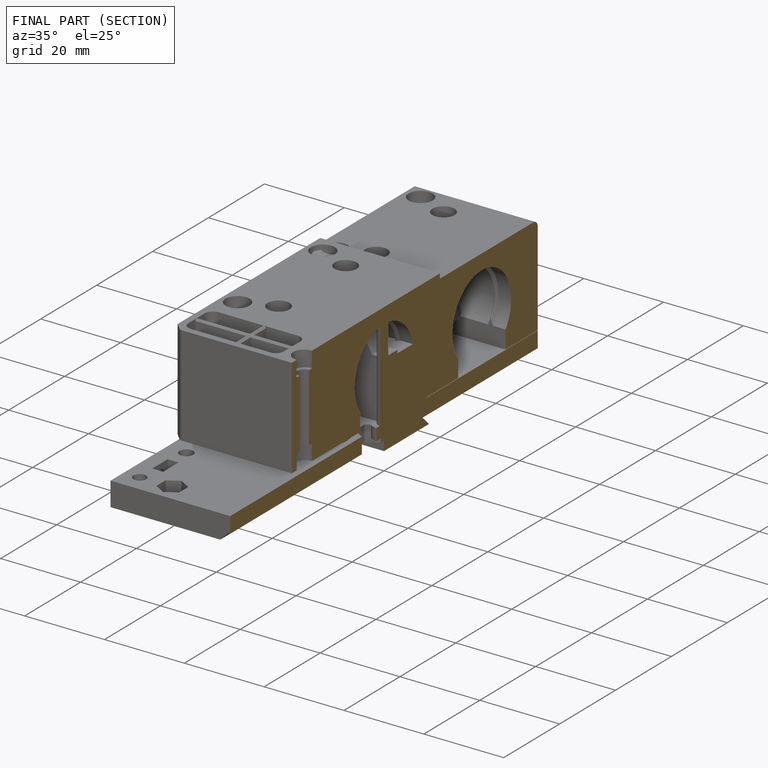
[diagram: finished part — half-section view (interior)]
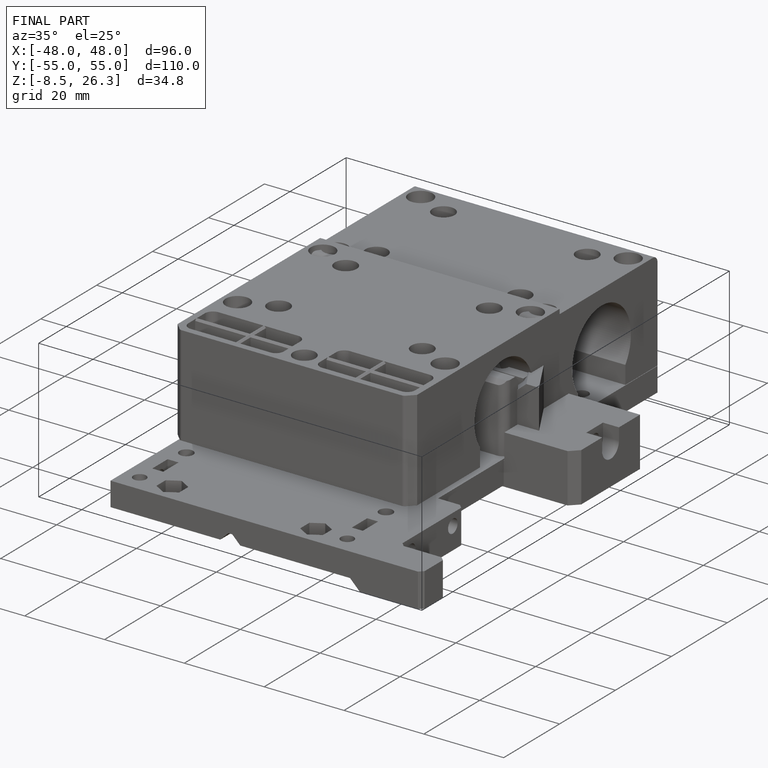
[diagram: finished part — iso view with bounding-box wireframe]
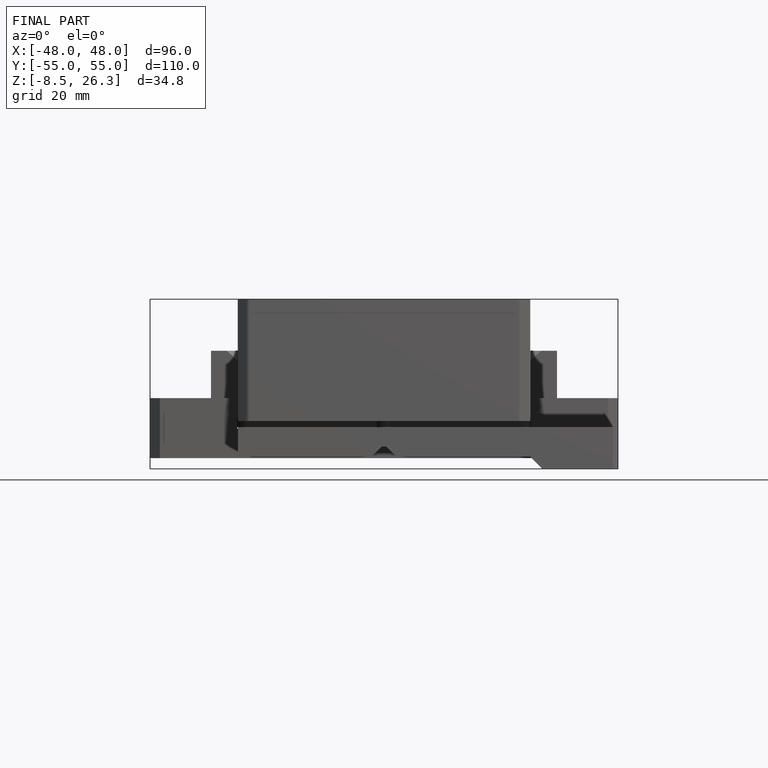
[diagram: finished part — front view with bounding-box wireframe]
